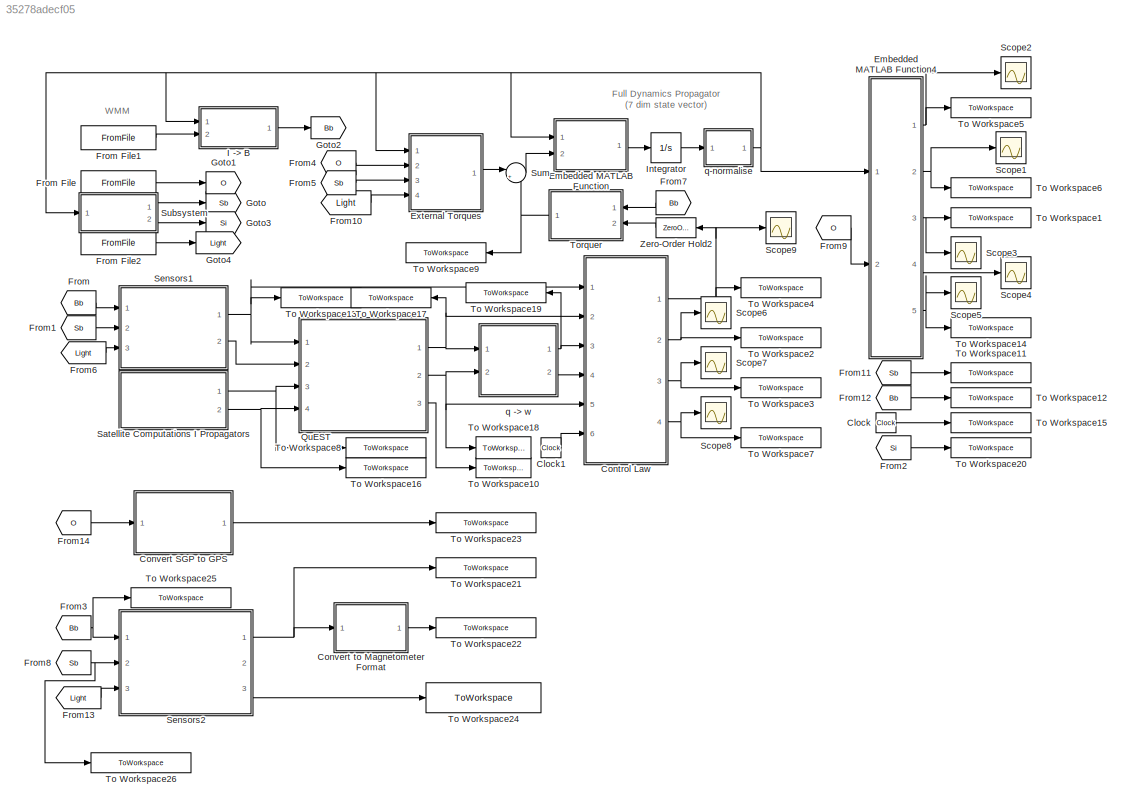
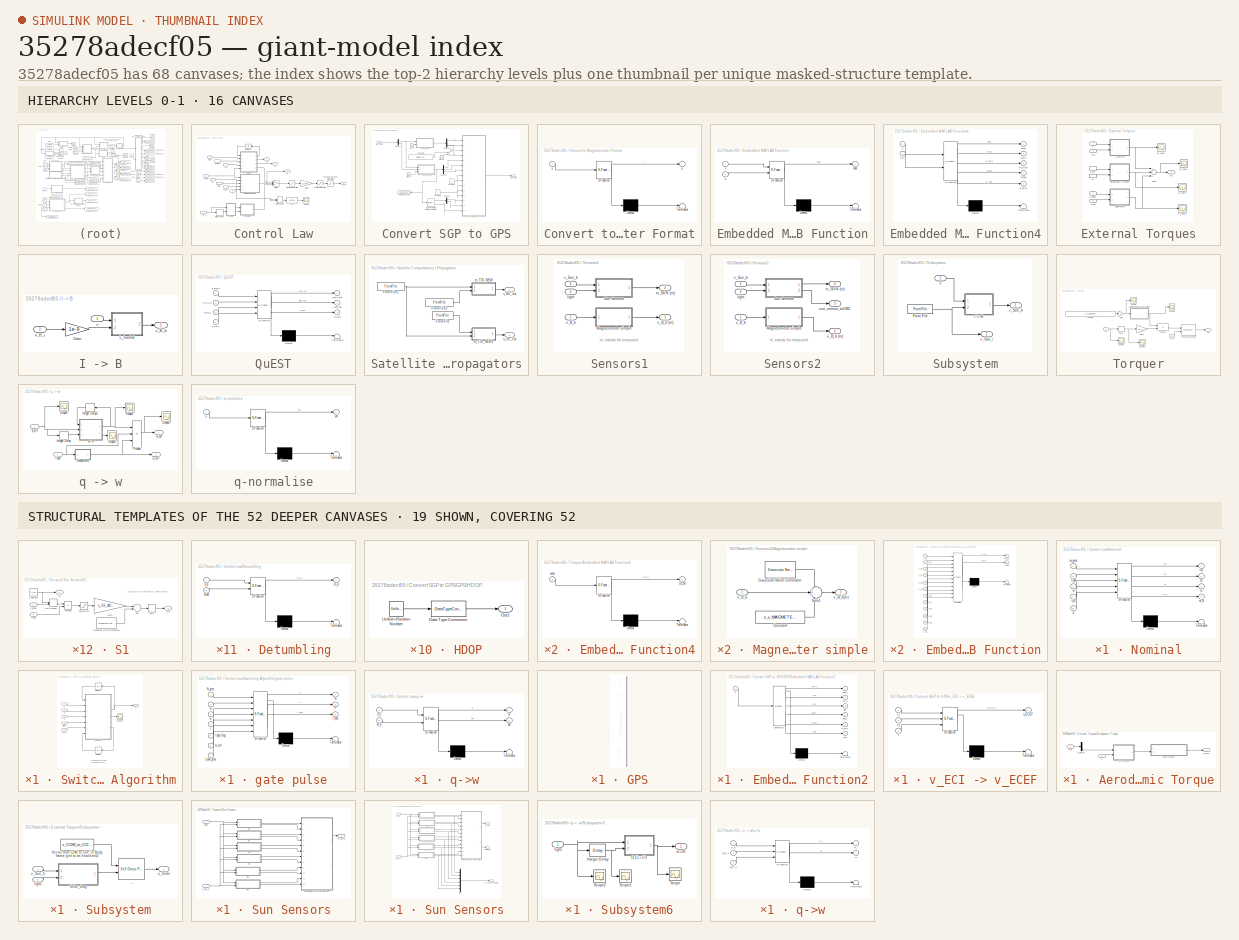
[diagram: thumbnail index - top-2 hierarchy levels (16 canvases) + 19 structural-template representatives of the remaining 52 canvases]
MODEL slx_35278adecf05
KIND model
CONFIG AbsTol = auto
CONFIG FixedStep = s_SIM_STEP_SIZE
CONFIG MaxStep = auto
CONFIG MinStep = auto
CONFIG RelTol = 1e-3
CONFIG SampleTimeConstraint = Unconstrained
CONFIG Solver = ode3
CONFIG SolverMode = Auto
CONFIG SolverName = ode3
CONFIG StartTime = 0.0
CONFIG StopTime = 60000
BLOCK [Clock] Clock
BLOCK [Clock] Clock1
BLOCK [SubSystem] Control Law
  Ports = [6, 4]
  RequestExecContextInheritance = off
  SystemSampleTime = s_FRAME_SIZE
  TreatAsAtomicUnit = on
  Variant = off
BLOCK [SubSystem] Control Law/Detumbling
  ErrorFcn = Stateflow.Translate.translate
  PermitHierarchicalResolution = ExplicitOnly
  Ports = [2, 1]
  RequestExecContextInheritance = off
  SFBlockType = MATLAB Function
  TreatAsAtomicUnit = on
  Variant = off
BLOCK [Demux] Control Law/Detumbling/ Demux 
  Outputs = 1
  Ports = [1, 1]
BLOCK [S-Function] Control Law/Detumbling/ SFunction 
  EnableBusSupport = on
  FunctionName = sf_sfun
  Parameters = Kdetumb,s_MAG_B
  PortCounts = [2 2]
  Ports = [2, 2]
  SFunctionDeploymentMode = off
  Tag = Stateflow S-Function adcs_v15_integral_29april17 23
BLOCK [Terminator] Control Law/Detumbling/ Terminator 
BLOCK [Inport] Control Law/Detumbling/Bdot
  IconDisplay = Port number
  Port = 2
BLOCK [Outport] Control Law/Detumbling/m_D
  IconDisplay = Port number
BLOCK [Inport] Control Law/Detumbling/v_B
  IconDisplay = Port number
BLOCK [DotProduct] Control Law/Dot Product
  OutDataTypeStr = Inherit: Inherit via internal rule
BLOCK [Fcn] Control Law/Fcn
  Expr = sqrt(u)
BLOCK [Gain] Control Law/Gain1
  Gain = 1/(N*A)
  OutDataTypeStr = Inherit: Inherit via internal rule
  ParamDataTypeStr = Inherit: Inherit via internal rule
  SaturateOnIntegerOverflow = off
BLOCK [Delay] Control Law/Integer Delay
  DelayLength = 1
  InputPortMap = u0
  InputProcessing = Inherited
  Ports = [1, 1]
BLOCK [Saturate] Control Law/Moment Saturation
  InputPortMap = u0
  LowerLimit = -s_m_MAX
  Ports = [1, 1]
  UpperLimit = s_m_MAX
BLOCK [Outport] Control Law/N
  IconDisplay = Port number
  Port = 2
BLOCK [SubSystem] Control Law/Nominal
  ErrorFcn = Stateflow.Translate.translate
  PermitHierarchicalResolution = ExplicitOnly
  Ports = [5, 4]
  RequestExecContextInheritance = off
  SFBlockType = MATLAB Function
  TreatAsAtomicUnit = on
  Variant = off
BLOCK [Demux] Control Law/Nominal/ Demux 
  Outputs = 1
  Ports = [1, 1]
BLOCK [S-Function] Control Law/Nominal/ SFunction 
  EnableBusSupport = on
  FunctionName = sf_sfun
  Parameters = Kd,Ki,Kp,s_FRAME_SIZE
  PortCounts = [5 5]
  Ports = [5, 5]
  SFunctionDeploymentMode = off
  Tag = Stateflow S-Function adcs_v15_integral_29april17 13
BLOCK [Terminator] Control Law/Nominal/ Terminator 
BLOCK [Outport] Control Law/Nominal/eu
  IconDisplay = Port number
  Port = 2
BLOCK [Outport] Control Law/Nominal/ieu
  IconDisplay = Port number
BLOCK [Inport] Control Law/Nominal/ieu_prev
  IconDisplay = Port number
BLOCK [Inport] Control Law/Nominal/light
  IconDisplay = Port number
  Port = 2
BLOCK [Outport] Control Law/Nominal/m
  IconDisplay = Port number
  Port = 3
BLOCK [Outport] Control Law/Nominal/m_N
  IconDisplay = Port number
  Port = 4
BLOCK [Inport] Control Law/Nominal/q
  IconDisplay = Port number
  Port = 5
BLOCK [Inport] Control Law/Nominal/v_B
  IconDisplay = Port number
  Port = 4
BLOCK [Inport] Control Law/Nominal/w
  IconDisplay = Port number
  Port = 3
BLOCK [Saturate] Control Law/Power Saturation
  InputPortMap = u0
  LowerLimit = -I_MAX
  Ports = [1, 1]
  UpperLimit = I_MAX
BLOCK [Scope] Control Law/Scope
  Ports = [1]
  ScopeSpecificationString = C++SS(StrPVP('Location','[11, 472, 632, 761]'),StrPVP('Open','off'),StrPVP('ZoomMode','xonly'),MxPVP('AxesTitles',24,'struct(''axes1'',''%<SignalLabel>'')'),StrPVP('ShowLegends','off'),StrPVP('YMin','0'),StrPVP('YMax','0.11'),StrPVP('SaveName','ScopeData4'),StrPVP('DataFormat','StructureWithTime'),StrPVP('LimitDataPoints','off'),StrPVP('BlockParamSampleTime','0'),StrPVP('Decimation','1'),StrPVP('B...<+29ch>
BLOCK [Switch] Control Law/Switch
  InputSameDT = off
  SaturateOnIntegerOverflow = off
  Threshold = 0.5
BLOCK [SubSystem] Control Law/Switching Algorithm
  Ports = [5, 1]
  RequestExecContextInheritance = off
  Variant = off
BLOCK [Outport] Control Law/Switching Algorithm/N
  IconDisplay = Port number
BLOCK [Scope] Control Law/Switching Algorithm/Scope1
  Ports = [1]
  ScopeSpecificationString = C++SS(StrPVP('Location','[14, 56, 630, 403]'),StrPVP('Open','off'),StrPVP('ZoomMode','xonly'),MxPVP('AxesTitles',24,'struct(''axes1'',''%<SignalLabel>'')'),StrPVP('ShowLegends','off'),StrPVP('TimeRange','140000'),StrPVP('YMin','0'),StrPVP('YMax','1.3'),StrPVP('SaveName','ScopeData5'),StrPVP('DataFormat','StructureWithTime'),StrPVP('LimitDataPoints','off'),StrPVP('BlockParamSampleTime','0'),StrPVP(...<+56ch>
BLOCK [UnitDelay] Control Law/Switching Algorithm/Unit Delay
  SampleTime = -1
BLOCK [UnitDelay] Control Law/Switching Algorithm/Unit Delay1
  SampleTime = -1
BLOCK [SubSystem] Control Law/Switching Algorithm/gate pulse
  ErrorFcn = Stateflow.Translate.translate
  PermitHierarchicalResolution = ExplicitOnly
  Ports = [7, 3]
  RequestExecContextInheritance = off
  SFBlockType = MATLAB Function
  TreatAsAtomicUnit = on
  Variant = off
BLOCK [Demux] Control Law/Switching Algorithm/gate pulse/ Demux 
  Outputs = 1
  Ports = [1, 1]
BLOCK [S-Function] Control Law/Switching Algorithm/gate pulse/ SFunction 
  EnableBusSupport = on
  FunctionName = sf_sfun
  Parameters = check_time,tol_q4,tol_w,tolw_n2d
  PortCounts = [7 4]
  Ports = [7, 4]
  SFunctionDeploymentMode = off
  Tag = Stateflow S-Function adcs_v15_integral_29april17 24
BLOCK [Terminator] Control Law/Switching Algorithm/gate pulse/ Terminator 
BLOCK [Outport] Control Law/Switching Algorithm/gate pulse/N
  IconDisplay = Port number
BLOCK [Inport] Control Law/Switching Algorithm/gate pulse/N_prev
  IconDisplay = Port number
BLOCK [Outport] Control Law/Switching Algorithm/gate pulse/P
  IconDisplay = Port number
  Port = 2
BLOCK [Inport] Control Law/Switching Algorithm/gate pulse/light_flag
  IconDisplay = Port number
  Port = 5
BLOCK [Inport] Control Law/Switching Algorithm/gate pulse/q
  IconDisplay = Port number
  Port = 3
BLOCK [Inport] Control Law/Switching Algorithm/gate pulse/t
  IconDisplay = Port number
  Port = 4
BLOCK [Outport] Control Law/Switching Algorithm/gate pulse/t_now
  IconDisplay = Port number
  Port = 3
BLOCK [Inport] Control Law/Switching Algorithm/gate pulse/t_now_prev
  IconDisplay = Port number
  Port = 7
BLOCK [Inport] Control Law/Switching Algorithm/gate pulse/w
  IconDisplay = Port number
  Port = 2
BLOCK [Inport] Control Law/Switching Algorithm/gate pulse/w_ctrl
  IconDisplay = Port number
  Port = 6
BLOCK [Inport] Control Law/Switching Algorithm/light
  IconDisplay = Port number
  Port = 3
BLOCK [Inport] Control Law/Switching Algorithm/q
  IconDisplay = Port number
BLOCK [Inport] Control Law/Switching Algorithm/t
  IconDisplay = Port number
  Port = 5
BLOCK [Inport] Control Law/Switching Algorithm/w
  IconDisplay = Port number
  Port = 2
BLOCK [Inport] Control Law/Switching Algorithm/w_ctrl
  IconDisplay = Port number
  Port = 4
BLOCK [Saturate] Control Law/Torquer Current Saturation
  InputPortMap = u0
  LowerLimit = -I_TORQUER
  Ports = [1, 1]
  UpperLimit = I_TORQUER
BLOCK [UnitDelay] Control Law/Unit Delay1
  InitialCondition = [0;0;0]
  SampleTime = -1
BLOCK [Outport] Control Law/eu
  IconDisplay = Port number
  Port = 3
BLOCK [Inport] Control Law/light
  IconDisplay = Port number
  Port = 5
BLOCK [InportShadow] Control Law/light1
  IconDisplay = Port number
  Port = 5
BLOCK [Outport] Control Law/m
  IconDisplay = Port number
  Port = 4
BLOCK [SubSystem] Control Law/q->w
  ErrorFcn = Stateflow.Translate.translate
  PermitHierarchicalResolution = ExplicitOnly
  Ports = [2, 2]
  RequestExecContextInheritance = off
  SFBlockType = MATLAB Function
  TreatAsAtomicUnit = on
  Variant = off
BLOCK [Demux] Control Law/q->w/ Demux 
  Outputs = 1
  Ports = [1, 1]
BLOCK [S-Function] Control Law/q->w/ SFunction 
  EnableBusSupport = on
  FunctionName = sf_sfun
  Parameters = s_FRAME_SIZE
  PortCounts = [2 3]
  Ports = [2, 3]
  SFunctionDeploymentMode = off
  Tag = Stateflow S-Function adcs_v15_integral_29april17 10
BLOCK [Terminator] Control Law/q->w/ Terminator 
BLOCK [Outport] Control Law/q->w/B
  IconDisplay = Port number
BLOCK [Inport] Control Law/q->w/B_k
  IconDisplay = Port number
  Port = 2
BLOCK [Inport] Control Law/q->w/B_l
  IconDisplay = Port number
BLOCK [Outport] Control Law/q->w/dB
  IconDisplay = Port number
  Port = 2
BLOCK [Inport] Control Law/q_BO
  IconDisplay = Port number
  Port = 2
BLOCK [Inport] Control Law/t
  IconDisplay = Port number
  Port = 6
BLOCK [Inport] Control Law/v_B
  IconDisplay = Port number
BLOCK [InportShadow] Control Law/v_B_1
  IconDisplay = Port number
BLOCK [Outport] Control Law/v_i
  IconDisplay = Port number
BLOCK [Inport] Control Law/w
  IconDisplay = Port number
  Port = 3
BLOCK [InportShadow] Control Law/w_BOB
  IconDisplay = Port number
  Port = 3
BLOCK [Inport] Control Law/w_ctrl
  IconDisplay = Port number
  Port = 4
BLOCK [SubSystem] Convert SGP to GPS
  Ports = [1, 1]
  RequestExecContextInheritance = off
  Variant = off
BLOCK [Sum] Convert SGP to GPS/Add1
  InputSameDT = off
  OutDataTypeStr = Inherit: Inherit via internal rule
  Ports = [2, 1]
  SaturateOnIntegerOverflow = off
BLOCK [Clock] Convert SGP to GPS/Clock2
BLOCK [Clock] Convert SGP to GPS/Clock3
BLOCK [Clock] Convert SGP to GPS/Clock4
BLOCK [Constant] Convert SGP to GPS/Constant
  OutDataTypeStr = uint8
  Value = 10
BLOCK [Constant] Convert SGP to GPS/Constant1
  Value = (today - TLE_epoch) * 86400
  VectorParams1D = off
BLOCK [Constant] Convert SGP to GPS/Constant2
  OutDataTypeStr = double
  Value = 10
BLOCK [Demux] Convert SGP to GPS/Demux1
  DisplayOption = bar
  Outputs = 2
  Ports = [1, 2]
BLOCK [Demux] Convert SGP to GPS/Demux2
  DisplayOption = bar
  Outputs = 3
  Ports = [1, 3]
BLOCK [Demux] Convert SGP to GPS/Demux3
  DisplayOption = bar
  Outputs = 3
  Ports = [1, 3]
BLOCK [Demux] Convert SGP to GPS/Demux5
  DisplayOption = bar
  Outputs = 2
  Ports = [1, 2]
BLOCK [Reference] Convert SGP to GPS/ECEF Position to Latitude Longitude  REF=aerolibtransform2/ECEF Position to LLA
  Ports = [1, 2]
  SourceBlock = aerolibtransform2/ECEF Position to LLA
  SourceType = ECEF to LLA
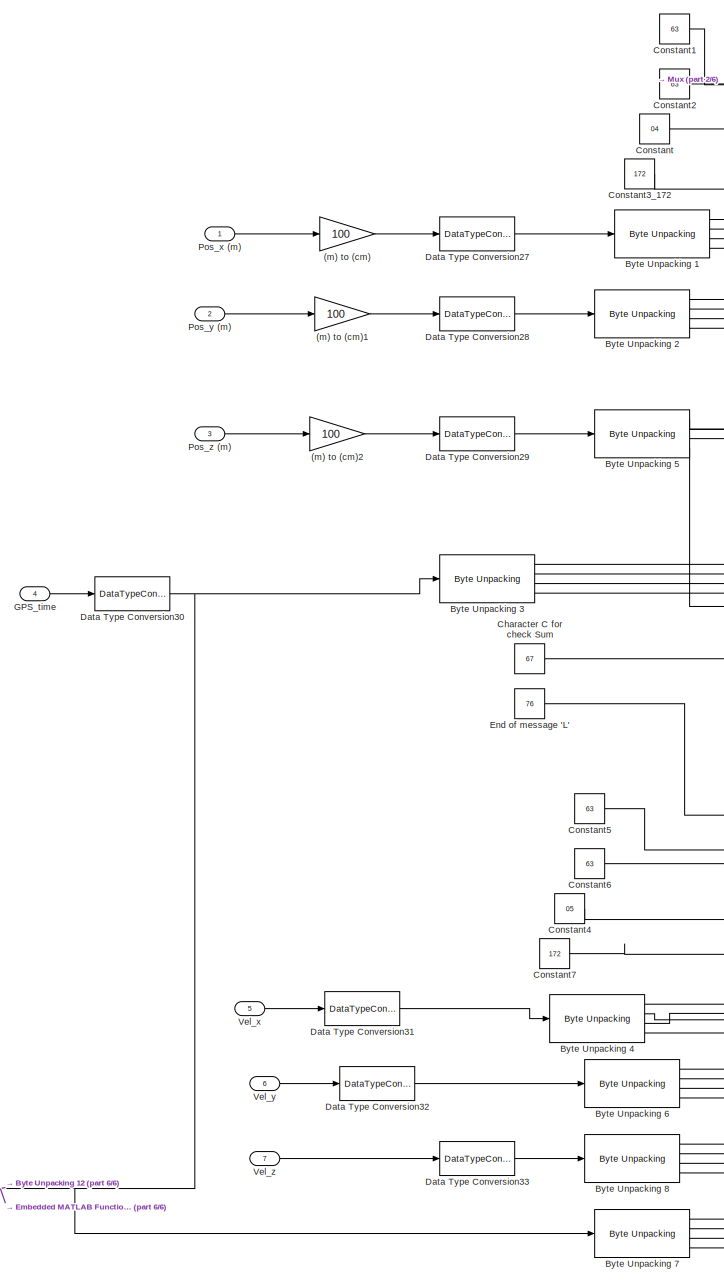
[diagram: Convert SGP to GPS/GPS - part 1/6, top center region]
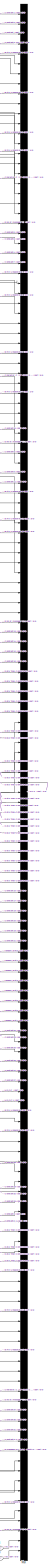
[diagram: Convert SGP to GPS/GPS - part 2/6, right side, full height]
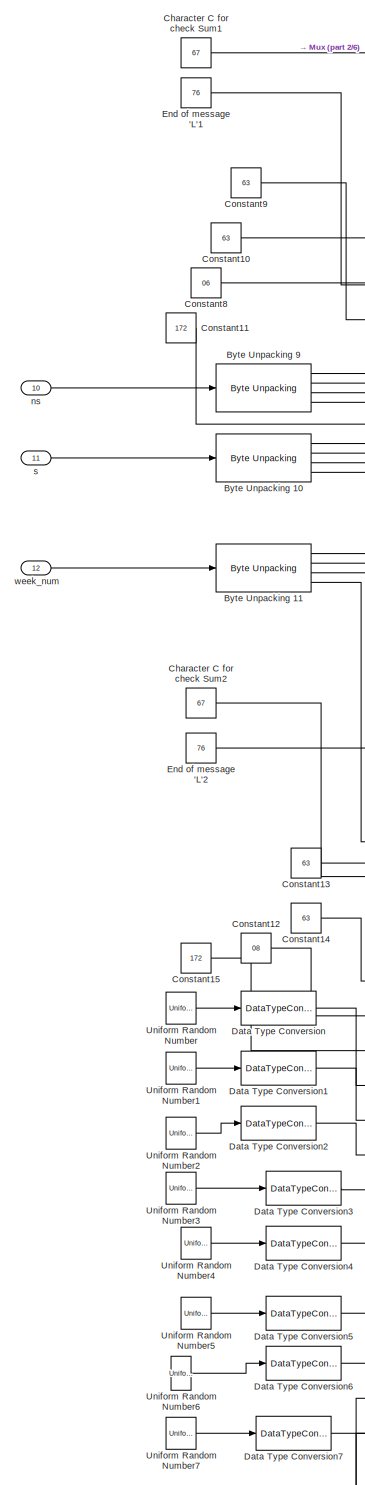
[diagram: Convert SGP to GPS/GPS - part 3/6, central region]
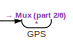
[diagram: Convert SGP to GPS/GPS - part 4/6, middle right region]
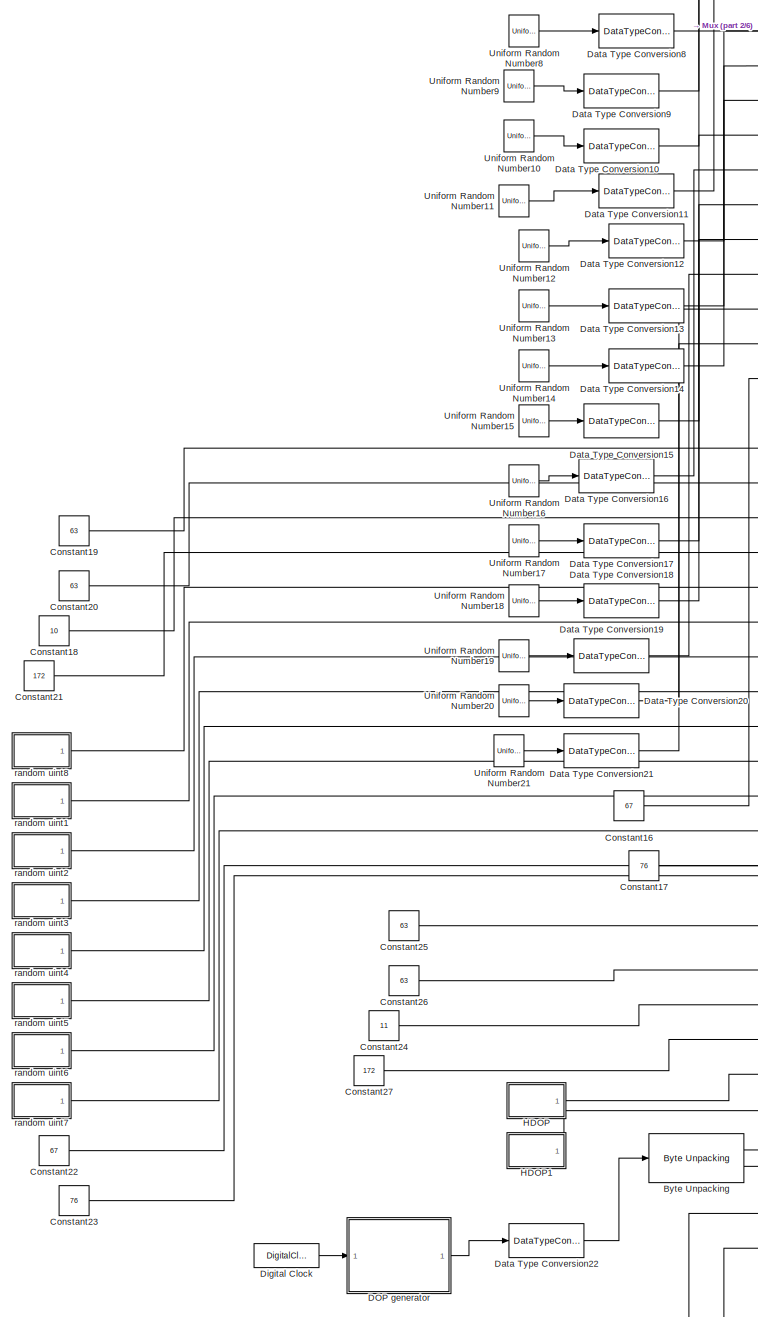
[diagram: Convert SGP to GPS/GPS - part 5/6, central region]
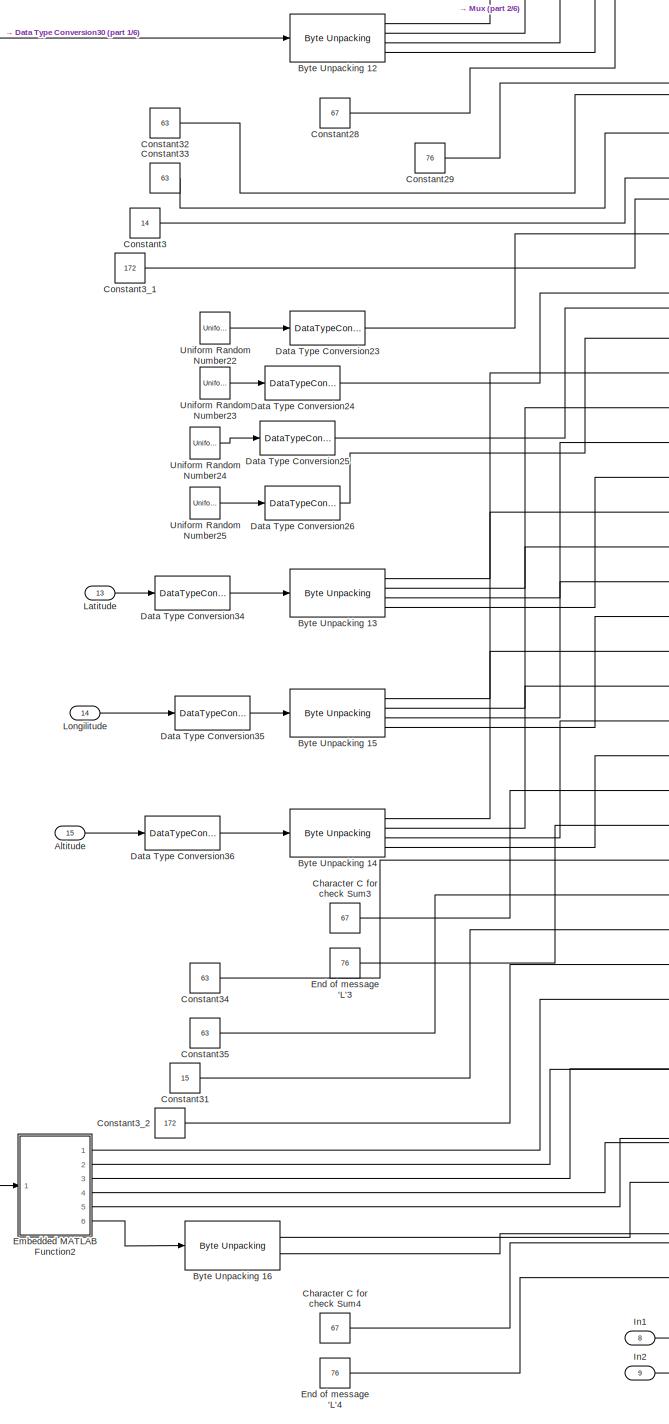
[diagram: Convert SGP to GPS/GPS - part 6/6, bottom center region]
BLOCK [SubSystem] Convert SGP to GPS/GPS
  Ports = [15, 1]
  RequestExecContextInheritance = off
  Variant = off
BLOCK [Gain] Convert SGP to GPS/GPS/(m) to (cm)
  Gain = 100
  OutDataTypeStr = double
  ParamDataTypeStr = Inherit: Inherit via internal rule
  SaturateOnIntegerOverflow = off
BLOCK [Gain] Convert SGP to GPS/GPS/(m) to (cm)1
  Gain = 100
  OutDataTypeStr = Inherit: Inherit via internal rule
  ParamDataTypeStr = Inherit: Inherit via internal rule
  SaturateOnIntegerOverflow = off
BLOCK [Gain] Convert SGP to GPS/GPS/(m) to (cm)2
  Gain = 100
  OutDataTypeStr = Inherit: Inherit via internal rule
  ParamDataTypeStr = Inherit: Inherit via internal rule
  SaturateOnIntegerOverflow = off
BLOCK [Inport] Convert SGP to GPS/GPS/Altitude
  IconDisplay = Port number
  Port = 15
BLOCK [Reference] Convert SGP to GPS/GPS/Byte Unpacking   REF=xpcutilitieslib/Byte Unpacking 
  Ports = [1, 2]
  SourceBlock = xpcutilitieslib/Byte Unpacking
  SourceType = xpcbytepacking
BLOCK [Reference] Convert SGP to GPS/GPS/Byte Unpacking 1  REF=xpcutilitieslib/Byte Unpacking 
  Ports = [1, 4]
  SourceBlock = xpcutilitieslib/Byte Unpacking
  SourceType = xpcbytepacking
BLOCK [Reference] Convert SGP to GPS/GPS/Byte Unpacking 10  REF=xpcutilitieslib/Byte Unpacking 
  Ports = [1, 4]
  SourceBlock = xpcutilitieslib/Byte Unpacking
  SourceType = xpcbytepacking
BLOCK [Reference] Convert SGP to GPS/GPS/Byte Unpacking 11  REF=xpcutilitieslib/Byte Unpacking 
  Ports = [1, 4]
  SourceBlock = xpcutilitieslib/Byte Unpacking
  SourceType = xpcbytepacking
BLOCK [Reference] Convert SGP to GPS/GPS/Byte Unpacking 12  REF=xpcutilitieslib/Byte Unpacking 
  Ports = [1, 4]
  SourceBlock = xpcutilitieslib/Byte Unpacking
  SourceType = xpcbytepacking
BLOCK [Reference] Convert SGP to GPS/GPS/Byte Unpacking 13  REF=xpcutilitieslib/Byte Unpacking 
  Ports = [1, 4]
  SourceBlock = xpcutilitieslib/Byte Unpacking
  SourceType = xpcbytepacking
BLOCK [Reference] Convert SGP to GPS/GPS/Byte Unpacking 14  REF=xpcutilitieslib/Byte Unpacking 
  Ports = [1, 4]
  SourceBlock = xpcutilitieslib/Byte Unpacking
  SourceType = xpcbytepacking
BLOCK [Reference] Convert SGP to GPS/GPS/Byte Unpacking 15  REF=xpcutilitieslib/Byte Unpacking 
  Ports = [1, 4]
  SourceBlock = xpcutilitieslib/Byte Unpacking
  SourceType = xpcbytepacking
BLOCK [Reference] Convert SGP to GPS/GPS/Byte Unpacking 16  REF=xpcutilitieslib/Byte Unpacking 
  Ports = [1, 2]
  SourceBlock = xpcutilitieslib/Byte Unpacking
  SourceType = xpcbytepacking
BLOCK [Reference] Convert SGP to GPS/GPS/Byte Unpacking 2  REF=xpcutilitieslib/Byte Unpacking 
  Ports = [1, 4]
  SourceBlock = xpcutilitieslib/Byte Unpacking
  SourceType = xpcbytepacking
BLOCK [Reference] Convert SGP to GPS/GPS/Byte Unpacking 3  REF=xpcutilitieslib/Byte Unpacking 
  Ports = [1, 4]
  SourceBlock = xpcutilitieslib/Byte Unpacking
  SourceType = xpcbytepacking
BLOCK [Reference] Convert SGP to GPS/GPS/Byte Unpacking 4  REF=xpcutilitieslib/Byte Unpacking 
  Ports = [1, 4]
  SourceBlock = xpcutilitieslib/Byte Unpacking
  SourceType = xpcbytepacking
BLOCK [Reference] Convert SGP to GPS/GPS/Byte Unpacking 5  REF=xpcutilitieslib/Byte Unpacking 
  Ports = [1, 4]
  SourceBlock = xpcutilitieslib/Byte Unpacking
  SourceType = xpcbytepacking
BLOCK [Reference] Convert SGP to GPS/GPS/Byte Unpacking 6  REF=xpcutilitieslib/Byte Unpacking 
  Ports = [1, 4]
  SourceBlock = xpcutilitieslib/Byte Unpacking
  SourceType = xpcbytepacking
BLOCK [Reference] Convert SGP to GPS/GPS/Byte Unpacking 7  REF=xpcutilitieslib/Byte Unpacking 
  Ports = [1, 4]
  SourceBlock = xpcutilitieslib/Byte Unpacking
  SourceType = xpcbytepacking
BLOCK [Reference] Convert SGP to GPS/GPS/Byte Unpacking 8  REF=xpcutilitieslib/Byte Unpacking 
  Ports = [1, 4]
  SourceBlock = xpcutilitieslib/Byte Unpacking
  SourceType = xpcbytepacking
BLOCK [Reference] Convert SGP to GPS/GPS/Byte Unpacking 9  REF=xpcutilitieslib/Byte Unpacking 
  Ports = [1, 4]
  SourceBlock = xpcutilitieslib/Byte Unpacking
  SourceType = xpcbytepacking
BLOCK [Constant] Convert SGP to GPS/GPS/Character C for check Sum
  OutDataTypeStr = uint8
  Value = 67
BLOCK [Constant] Convert SGP to GPS/GPS/Character C for check Sum1
  OutDataTypeStr = uint8
  Value = 67
BLOCK [Constant] Convert SGP to GPS/GPS/Character C for check Sum2
  OutDataTypeStr = uint8
  Value = 67
BLOCK [Constant] Convert SGP to GPS/GPS/Character C for check Sum3
  OutDataTypeStr = uint8
  Value = 67
BLOCK [Constant] Convert SGP to GPS/GPS/Character C for check Sum4
  OutDataTypeStr = uint8
  Value = 67
BLOCK [Constant] Convert SGP to GPS/GPS/Constant
  OutDataTypeStr = uint8
  Value = 04
BLOCK [Constant] Convert SGP to GPS/GPS/Constant1
  OutDataTypeStr = uint8
  Value = 63
BLOCK [Constant] Convert SGP to GPS/GPS/Constant10
  OutDataTypeStr = uint8
  Value = 63
BLOCK [Constant] Convert SGP to GPS/GPS/Constant11
  OutDataTypeStr = uint8
  Value = 172
BLOCK [Constant] Convert SGP to GPS/GPS/Constant12
  OutDataTypeStr = uint8
  Value = 08
BLOCK [Constant] Convert SGP to GPS/GPS/Constant13
  OutDataTypeStr = uint8
  Value = 63
BLOCK [Constant] Convert SGP to GPS/GPS/Constant14
  OutDataTypeStr = uint8
  Value = 63
BLOCK [Constant] Convert SGP to GPS/GPS/Constant15
  OutDataTypeStr = uint8
  Value = 172
BLOCK [Constant] Convert SGP to GPS/GPS/Constant16
  OutDataTypeStr = uint8
  Value = 67
BLOCK [Constant] Convert SGP to GPS/GPS/Constant17
  OutDataTypeStr = uint8
  Value = 76
BLOCK [Constant] Convert SGP to GPS/GPS/Constant18
  OutDataTypeStr = uint8
  Value = 10
BLOCK [Constant] Convert SGP to GPS/GPS/Constant19
  OutDataTypeStr = uint8
  Value = 63
BLOCK [Constant] Convert SGP to GPS/GPS/Constant2
  OutDataTypeStr = uint8
  Value = 63
BLOCK [Constant] Convert SGP to GPS/GPS/Constant20
  OutDataTypeStr = uint8
  Value = 63
BLOCK [Constant] Convert SGP to GPS/GPS/Constant21
  OutDataTypeStr = uint8
  Value = 172
BLOCK [Constant] Convert SGP to GPS/GPS/Constant22
  OutDataTypeStr = uint8
  Value = 67
BLOCK [Constant] Convert SGP to GPS/GPS/Constant23
  OutDataTypeStr = uint8
  Value = 76
BLOCK [Constant] Convert SGP to GPS/GPS/Constant24
  OutDataTypeStr = uint8
  Value = 11
BLOCK [Constant] Convert SGP to GPS/GPS/Constant25
  OutDataTypeStr = uint8
  Value = 63
BLOCK [Constant] Convert SGP to GPS/GPS/Constant26
  OutDataTypeStr = uint8
  Value = 63
BLOCK [Constant] Convert SGP to GPS/GPS/Constant27
  OutDataTypeStr = uint8
  Value = 172
BLOCK [Constant] Convert SGP to GPS/GPS/Constant28
  OutDataTypeStr = uint8
  Value = 67
BLOCK [Constant] Convert SGP to GPS/GPS/Constant29
  OutDataTypeStr = uint8
  Value = 76
BLOCK [Constant] Convert SGP to GPS/GPS/Constant3
  OutDataTypeStr = uint8
  Value = 14
BLOCK [Constant] Convert SGP to GPS/GPS/Constant31
  OutDataTypeStr = uint8
  Value = 15
BLOCK [Constant] Convert SGP to GPS/GPS/Constant32
  OutDataTypeStr = uint8
  Value = 63
BLOCK [Constant] Convert SGP to GPS/GPS/Constant33
  OutDataTypeStr = uint8
  Value = 63
BLOCK [Constant] Convert SGP to GPS/GPS/Constant34
  OutDataTypeStr = uint8
  Value = 63
BLOCK [Constant] Convert SGP to GPS/GPS/Constant35
  OutDataTypeStr = uint8
  Value = 63
BLOCK [Constant] Convert SGP to GPS/GPS/Constant3_1
  OutDataTypeStr = uint8
  Value = 172
BLOCK [Constant] Convert SGP to GPS/GPS/Constant3_172
  OutDataTypeStr = uint8
  Value = 172
BLOCK [Constant] Convert SGP to GPS/GPS/Constant3_2
  OutDataTypeStr = uint8
  Value = 172
BLOCK [Constant] Convert SGP to GPS/GPS/Constant4
  OutDataTypeStr = uint8
  Value = 05
BLOCK [Constant] Convert SGP to GPS/GPS/Constant5
  OutDataTypeStr = uint8
  Value = 63
BLOCK [Constant] Convert SGP to GPS/GPS/Constant6
  OutDataTypeStr = uint8
  Value = 63
BLOCK [Constant] Convert SGP to GPS/GPS/Constant7
  OutDataTypeStr = uint8
  Value = 172
BLOCK [Constant] Convert SGP to GPS/GPS/Constant8
  OutDataTypeStr = uint8
  Value = 06
BLOCK [Constant] Convert SGP to GPS/GPS/Constant9
  OutDataTypeStr = uint8
  Value = 63
BLOCK [SubSystem] Convert SGP to GPS/GPS/DOP generator
  ErrorFcn = Stateflow.Translate.translate
  PermitHierarchicalResolution = ExplicitOnly
  Ports = [1, 1]
  RequestExecContextInheritance = off
  SFBlockType = MATLAB Function
  TreatAsAtomicUnit = on
  Variant = off
BLOCK [Demux] Convert SGP to GPS/GPS/DOP generator/ Demux 
  Outputs = 1
  Ports = [1, 1]
BLOCK [S-Function] Convert SGP to GPS/GPS/DOP generator/ SFunction 
  EnableBusSupport = on
  FunctionName = sf_sfun
  PortCounts = [1 2]
  Ports = [1, 2]
  SFunctionDeploymentMode = off
  Tag = Stateflow S-Function adcs_v15_integral_29april17 17
BLOCK [Terminator] Convert SGP to GPS/GPS/DOP generator/ Terminator 
BLOCK [Outport] Convert SGP to GPS/GPS/DOP generator/PDOP
  IconDisplay = Port number
BLOCK [Inport] Convert SGP to GPS/GPS/DOP generator/t
  IconDisplay = Port number
BLOCK [DataTypeConversion] Convert SGP to GPS/GPS/Data Type Conversion
  OutDataTypeStr = uint8
  RndMeth = Floor
  SaturateOnIntegerOverflow = off
BLOCK [DataTypeConversion] Convert SGP to GPS/GPS/Data Type Conversion1
  OutDataTypeStr = uint8
  RndMeth = Floor
  SaturateOnIntegerOverflow = off
BLOCK [DataTypeConversion] Convert SGP to GPS/GPS/Data Type Conversion10
  OutDataTypeStr = uint8
  RndMeth = Floor
  SaturateOnIntegerOverflow = off
BLOCK [DataTypeConversion] Convert SGP to GPS/GPS/Data Type Conversion11
  OutDataTypeStr = uint8
  RndMeth = Floor
  SaturateOnIntegerOverflow = off
BLOCK [DataTypeConversion] Convert SGP to GPS/GPS/Data Type Conversion12
  OutDataTypeStr = uint8
  RndMeth = Floor
  SaturateOnIntegerOverflow = off
BLOCK [DataTypeConversion] Convert SGP to GPS/GPS/Data Type Conversion13
  OutDataTypeStr = uint8
  RndMeth = Floor
  SaturateOnIntegerOverflow = off
BLOCK [DataTypeConversion] Convert SGP to GPS/GPS/Data Type Conversion14
  OutDataTypeStr = uint8
  RndMeth = Floor
  SaturateOnIntegerOverflow = off
BLOCK [DataTypeConversion] Convert SGP to GPS/GPS/Data Type Conversion15
  OutDataTypeStr = uint8
  RndMeth = Floor
  SaturateOnIntegerOverflow = off
BLOCK [DataTypeConversion] Convert SGP to GPS/GPS/Data Type Conversion16
  OutDataTypeStr = uint8
  RndMeth = Floor
  SaturateOnIntegerOverflow = off
BLOCK [DataTypeConversion] Convert SGP to GPS/GPS/Data Type Conversion17
  OutDataTypeStr = uint8
  RndMeth = Floor
  SaturateOnIntegerOverflow = off
BLOCK [DataTypeConversion] Convert SGP to GPS/GPS/Data Type Conversion18
  OutDataTypeStr = uint8
  RndMeth = Floor
  SaturateOnIntegerOverflow = off
BLOCK [DataTypeConversion] Convert SGP to GPS/GPS/Data Type Conversion19
  OutDataTypeStr = uint8
  RndMeth = Floor
  SaturateOnIntegerOverflow = off
BLOCK [DataTypeConversion] Convert SGP to GPS/GPS/Data Type Conversion2
  OutDataTypeStr = uint8
  RndMeth = Floor
  SaturateOnIntegerOverflow = off
BLOCK [DataTypeConversion] Convert SGP to GPS/GPS/Data Type Conversion20
  OutDataTypeStr = uint8
  RndMeth = Floor
  SaturateOnIntegerOverflow = off
BLOCK [DataTypeConversion] Convert SGP to GPS/GPS/Data Type Conversion21
  OutDataTypeStr = uint8
  RndMeth = Floor
  SaturateOnIntegerOverflow = off
BLOCK [DataTypeConversion] Convert SGP to GPS/GPS/Data Type Conversion22
  OutDataTypeStr = uint32
  RndMeth = Floor
  SaturateOnIntegerOverflow = off
BLOCK [DataTypeConversion] Convert SGP to GPS/GPS/Data Type Conversion23
  OutDataTypeStr = uint8
  RndMeth = Floor
  SaturateOnIntegerOverflow = off
BLOCK [DataTypeConversion] Convert SGP to GPS/GPS/Data Type Conversion24
  OutDataTypeStr = uint8
  RndMeth = Floor
  SaturateOnIntegerOverflow = off
BLOCK [DataTypeConversion] Convert SGP to GPS/GPS/Data Type Conversion25
  OutDataTypeStr = uint8
  RndMeth = Floor
  SaturateOnIntegerOverflow = off
BLOCK [DataTypeConversion] Convert SGP to GPS/GPS/Data Type Conversion26
  OutDataTypeStr = uint8
  RndMeth = Floor
  SaturateOnIntegerOverflow = off
BLOCK [DataTypeConversion] Convert SGP to GPS/GPS/Data Type Conversion27
  OutDataTypeStr = uint32
  RndMeth = Floor
  SaturateOnIntegerOverflow = off
BLOCK [DataTypeConversion] Convert SGP to GPS/GPS/Data Type Conversion28
  OutDataTypeStr = uint32
  RndMeth = Floor
  SaturateOnIntegerOverflow = off
BLOCK [DataTypeConversion] Convert SGP to GPS/GPS/Data Type Conversion29
  OutDataTypeStr = uint32
  RndMeth = Floor
  SaturateOnIntegerOverflow = off
BLOCK [DataTypeConversion] Convert SGP to GPS/GPS/Data Type Conversion3
  OutDataTypeStr = uint8
  RndMeth = Floor
  SaturateOnIntegerOverflow = off
BLOCK [DataTypeConversion] Convert SGP to GPS/GPS/Data Type Conversion30
  OutDataTypeStr = uint32
  RndMeth = Floor
  SaturateOnIntegerOverflow = off
BLOCK [DataTypeConversion] Convert SGP to GPS/GPS/Data Type Conversion31
  OutDataTypeStr = uint32
  RndMeth = Floor
  SaturateOnIntegerOverflow = off
BLOCK [DataTypeConversion] Convert SGP to GPS/GPS/Data Type Conversion32
  OutDataTypeStr = uint32
  RndMeth = Floor
  SaturateOnIntegerOverflow = off
BLOCK [DataTypeConversion] Convert SGP to GPS/GPS/Data Type Conversion33
  OutDataTypeStr = uint32
  RndMeth = Floor
  SaturateOnIntegerOverflow = off
BLOCK [DataTypeConversion] Convert SGP to GPS/GPS/Data Type Conversion34
  OutDataTypeStr = uint32
  RndMeth = Floor
  SaturateOnIntegerOverflow = off
BLOCK [DataTypeConversion] Convert SGP to GPS/GPS/Data Type Conversion35
  OutDataTypeStr = uint32
  RndMeth = Floor
  SaturateOnIntegerOverflow = off
BLOCK [DataTypeConversion] Convert SGP to GPS/GPS/Data Type Conversion36
  OutDataTypeStr = uint32
  RndMeth = Floor
  SaturateOnIntegerOverflow = off
BLOCK [DataTypeConversion] Convert SGP to GPS/GPS/Data Type Conversion4
  OutDataTypeStr = uint8
  RndMeth = Floor
  SaturateOnIntegerOverflow = off
BLOCK [DataTypeConversion] Convert SGP to GPS/GPS/Data Type Conversion5
  OutDataTypeStr = uint8
  RndMeth = Floor
  SaturateOnIntegerOverflow = off
BLOCK [DataTypeConversion] Convert SGP to GPS/GPS/Data Type Conversion6
  OutDataTypeStr = uint8
  RndMeth = Floor
  SaturateOnIntegerOverflow = off
BLOCK [DataTypeConversion] Convert SGP to GPS/GPS/Data Type Conversion7
  OutDataTypeStr = uint8
  RndMeth = Floor
  SaturateOnIntegerOverflow = off
BLOCK [DataTypeConversion] Convert SGP to GPS/GPS/Data Type Conversion8
  OutDataTypeStr = uint8
  RndMeth = Floor
  SaturateOnIntegerOverflow = off
BLOCK [DataTypeConversion] Convert SGP to GPS/GPS/Data Type Conversion9
  OutDataTypeStr = uint8
  RndMeth = Floor
  SaturateOnIntegerOverflow = off
BLOCK [DigitalClock] Convert SGP to GPS/GPS/Digital Clock
  SampleTime = 0.1
BLOCK [SubSystem] Convert SGP to GPS/GPS/Embedded MATLAB Function2
  ErrorFcn = Stateflow.Translate.translate
  PermitHierarchicalResolution = ExplicitOnly
  Ports = [1, 6]
  RequestExecContextInheritance = off
  SFBlockType = MATLAB Function
  TreatAsAtomicUnit = on
  Variant = off
BLOCK [Demux] Convert SGP to GPS/GPS/Embedded MATLAB Function2/ Demux 
  Outputs = 1
  Ports = [1, 1]
BLOCK [S-Function] Convert SGP to GPS/GPS/Embedded MATLAB Function2/ SFunction 
  EnableBusSupport = on
  FunctionName = sf_sfun
  PortCounts = [1 7]
  Ports = [1, 7]
  SFunctionDeploymentMode = off
  Tag = Stateflow S-Function adcs_v15_integral_29april17 21
BLOCK [Terminator] Convert SGP to GPS/GPS/Embedded MATLAB Function2/ Terminator 
BLOCK [Outport] Convert SGP to GPS/GPS/Embedded MATLAB Function2/date
  IconDisplay = Port number
  Port = 4
BLOCK [Outport] Convert SGP to GPS/GPS/Embedded MATLAB Function2/hours
  IconDisplay = Port number
BLOCK [Outport] Convert SGP to GPS/GPS/Embedded MATLAB Function2/min
  IconDisplay = Port number
  Port = 2
BLOCK [Outport] Convert SGP to GPS/GPS/Embedded MATLAB Function2/month
  IconDisplay = Port number
  Port = 5
BLOCK [Inport] Convert SGP to GPS/GPS/Embedded MATLAB Function2/s
  IconDisplay = Port number
BLOCK [Outport] Convert SGP to GPS/GPS/Embedded MATLAB Function2/sec
  IconDisplay = Port number
  Port = 3
BLOCK [Outport] Convert SGP to GPS/GPS/Embedded MATLAB Function2/year
  IconDisplay = Port number
  Port = 6
BLOCK [Constant] Convert SGP to GPS/GPS/End of message 'L'
  OutDataTypeStr = uint8
  Value = 76
BLOCK [Constant] Convert SGP to GPS/GPS/End of message 'L'1
  OutDataTypeStr = uint8
  Value = 76
BLOCK [Constant] Convert SGP to GPS/GPS/End of message 'L'2
  OutDataTypeStr = uint8
  Value = 76
BLOCK [Constant] Convert SGP to GPS/GPS/End of message 'L'3
  OutDataTypeStr = uint8
  Value = 76
BLOCK [Constant] Convert SGP to GPS/GPS/End of message 'L'4
  OutDataTypeStr = uint8
  Value = 76
BLOCK [Outport] Convert SGP to GPS/GPS/GPS
  IconDisplay = Port number
BLOCK [Inport] Convert SGP to GPS/GPS/GPS_time
  IconDisplay = Port number
  Port = 4
BLOCK [SubSystem] Convert SGP to GPS/GPS/HDOP
  Ports = [0, 1]
  RequestExecContextInheritance = off
  Variant = off
BLOCK [DataTypeConversion] Convert SGP to GPS/GPS/HDOP/Data Type Conversion
  OutDataTypeStr = uint8
  RndMeth = Floor
  SaturateOnIntegerOverflow = off
BLOCK [Outport] Convert SGP to GPS/GPS/HDOP/Out1
  IconDisplay = Port number
BLOCK [UniformRandomNumber] Convert SGP to GPS/GPS/HDOP/Uniform Random Number
  Maximum = 256
  Minimum = 0
  SampleTime = 0.1
BLOCK [SubSystem] Convert SGP to GPS/GPS/HDOP1
  Ports = [0, 1]
  RequestExecContextInheritance = off
  Variant = off
BLOCK [DataTypeConversion] Convert SGP to GPS/GPS/HDOP1/Data Type Conversion
  OutDataTypeStr = uint8
  RndMeth = Floor
  SaturateOnIntegerOverflow = off
BLOCK [Outport] Convert SGP to GPS/GPS/HDOP1/Out1
  IconDisplay = Port number
BLOCK [UniformRandomNumber] Convert SGP to GPS/GPS/HDOP1/Uniform Random Number
  Maximum = 256
  Minimum = 0
  SampleTime = 0.1
BLOCK [Inport] Convert SGP to GPS/GPS/In1
  IconDisplay = Port number
  OutDataTypeStr = uint8
  Port = 8
BLOCK [Inport] Convert SGP to GPS/GPS/In2
  IconDisplay = Port number
  OutDataTypeStr = uint8
  Port = 9
BLOCK [Inport] Convert SGP to GPS/GPS/Latitude
  IconDisplay = Port number
  Port = 13
BLOCK [Inport] Convert SGP to GPS/GPS/Longilitude 
  IconDisplay = Port number
  Port = 14
BLOCK [Mux] Convert SGP to GPS/GPS/Mux
  DisplayOption = bar
  Inputs = 155
  Ports = [155, 1]
BLOCK [Inport] Convert SGP to GPS/GPS/Pos_x (m)
  IconDisplay = Port number
BLOCK [Inport] Convert SGP to GPS/GPS/Pos_y (m)
  IconDisplay = Port number
  Port = 2
BLOCK [Inport] Convert SGP to GPS/GPS/Pos_z (m)
  IconDisplay = Port number
  Port = 3
BLOCK [UniformRandomNumber] Convert SGP to GPS/GPS/Uniform Random Number
  Maximum = 256
  Minimum = 0
  SampleTime = 0.1
  Seed = 1
BLOCK [UniformRandomNumber] Convert SGP to GPS/GPS/Uniform Random Number1
  Maximum = 256
  Minimum = 0
  SampleTime = 0.1
  Seed = 1
BLOCK [UniformRandomNumber] Convert SGP to GPS/GPS/Uniform Random Number10
  Maximum = 256
  Minimum = 0
  SampleTime = 0.1
  Seed = 1
BLOCK [UniformRandomNumber] Convert SGP to GPS/GPS/Uniform Random Number11
  Maximum = 256
  Minimum = 0
  SampleTime = 0.1
  Seed = 1
BLOCK [UniformRandomNumber] Convert SGP to GPS/GPS/Uniform Random Number12
  Maximum = 256
  Minimum = 0
  SampleTime = 0.1
  Seed = 1
BLOCK [UniformRandomNumber] Convert SGP to GPS/GPS/Uniform Random Number13
  Maximum = 256
  Minimum = 0
  SampleTime = 0.1
  Seed = 1
BLOCK [UniformRandomNumber] Convert SGP to GPS/GPS/Uniform Random Number14
  Maximum = 256
  Minimum = 0
  SampleTime = 0.1
  Seed = 1
BLOCK [UniformRandomNumber] Convert SGP to GPS/GPS/Uniform Random Number15
  Maximum = 256
  Minimum = 0
  SampleTime = 0.1
  Seed = 1
BLOCK [UniformRandomNumber] Convert SGP to GPS/GPS/Uniform Random Number16
  Maximum = 256
  Minimum = 0
  SampleTime = 0.1
  Seed = 1
BLOCK [UniformRandomNumber] Convert SGP to GPS/GPS/Uniform Random Number17
  Maximum = 256
  Minimum = 0
  SampleTime = 0.1
  Seed = 1
BLOCK [UniformRandomNumber] Convert SGP to GPS/GPS/Uniform Random Number18
  Maximum = 256
  Minimum = 0
  SampleTime = 0.1
  Seed = 1
BLOCK [UniformRandomNumber] Convert SGP to GPS/GPS/Uniform Random Number19
  Maximum = 256
  Minimum = 0
  SampleTime = 0.1
  Seed = 1
BLOCK [UniformRandomNumber] Convert SGP to GPS/GPS/Uniform Random Number2
  Maximum = 256
  Minimum = 0
  SampleTime = 0.1
  Seed = 1
BLOCK [UniformRandomNumber] Convert SGP to GPS/GPS/Uniform Random Number20
  Maximum = 256
  Minimum = 0
  SampleTime = 0.1
  Seed = 1
BLOCK [UniformRandomNumber] Convert SGP to GPS/GPS/Uniform Random Number21
  Maximum = 256
  Minimum = 0
  SampleTime = 0.1
  Seed = 1
BLOCK [UniformRandomNumber] Convert SGP to GPS/GPS/Uniform Random Number22
  Maximum = 256
  Minimum = 0
  SampleTime = 0.1
  Seed = 1
BLOCK [UniformRandomNumber] Convert SGP to GPS/GPS/Uniform Random Number23
  Maximum = 256
  Minimum = 0
  SampleTime = 0.1
  Seed = 1
BLOCK [UniformRandomNumber] Convert SGP to GPS/GPS/Uniform Random Number24
  Maximum = 256
  Minimum = 0
  SampleTime = 0.1
  Seed = 1
BLOCK [UniformRandomNumber] Convert SGP to GPS/GPS/Uniform Random Number25
  Maximum = 256
  Minimum = 0
  SampleTime = 0.1
  Seed = 1
BLOCK [UniformRandomNumber] Convert SGP to GPS/GPS/Uniform Random Number3
  Maximum = 256
  Minimum = 0
  SampleTime = 0.1
  Seed = 1
BLOCK [UniformRandomNumber] Convert SGP to GPS/GPS/Uniform Random Number4
  Maximum = 256
  Minimum = 0
  SampleTime = 0.1
  Seed = 1
BLOCK [UniformRandomNumber] Convert SGP to GPS/GPS/Uniform Random Number5
  Maximum = 256
  Minimum = 0
  SampleTime = 0.1
  Seed = 1
BLOCK [UniformRandomNumber] Convert SGP to GPS/GPS/Uniform Random Number6
  Maximum = 256
  Minimum = 0
  SampleTime = 0.1
  Seed = 1
BLOCK [UniformRandomNumber] Convert SGP to GPS/GPS/Uniform Random Number7
  Maximum = 256
  Minimum = 0
  SampleTime = 0.1
  Seed = 1
BLOCK [UniformRandomNumber] Convert SGP to GPS/GPS/Uniform Random Number8
  Maximum = 256
  Minimum = 0
  SampleTime = 0.1
  Seed = 1
BLOCK [UniformRandomNumber] Convert SGP to GPS/GPS/Uniform Random Number9
  Maximum = 256
  Minimum = 0
  SampleTime = 0.1
  Seed = 1
BLOCK [Inport] Convert SGP to GPS/GPS/Vel_x
  IconDisplay = Port number
  Port = 5
BLOCK [Inport] Convert SGP to GPS/GPS/Vel_y
  IconDisplay = Port number
  Port = 6
BLOCK [Inport] Convert SGP to GPS/GPS/Vel_z
  IconDisplay = Port number
  Port = 7
BLOCK [Inport] Convert SGP to GPS/GPS/ns
  IconDisplay = Port number
  Port = 10
BLOCK [SubSystem] Convert SGP to GPS/GPS/random uint1
  Ports = [0, 1]
  RequestExecContextInheritance = off
  Variant = off
BLOCK [DataTypeConversion] Convert SGP to GPS/GPS/random uint1/Data Type Conversion
  OutDataTypeStr = uint8
  RndMeth = Floor
  SaturateOnIntegerOverflow = off
BLOCK [Outport] Convert SGP to GPS/GPS/random uint1/Out1
  IconDisplay = Port number
BLOCK [UniformRandomNumber] Convert SGP to GPS/GPS/random uint1/Uniform Random Number
  Maximum = 256
  Minimum = 0
  SampleTime = 0.1
BLOCK [SubSystem] Convert SGP to GPS/GPS/random uint2
  Ports = [0, 1]
  RequestExecContextInheritance = off
  Variant = off
BLOCK [DataTypeConversion] Convert SGP to GPS/GPS/random uint2/Data Type Conversion
  OutDataTypeStr = uint8
  RndMeth = Floor
  SaturateOnIntegerOverflow = off
BLOCK [Outport] Convert SGP to GPS/GPS/random uint2/Out1
  IconDisplay = Port number
BLOCK [UniformRandomNumber] Convert SGP to GPS/GPS/random uint2/Uniform Random Number
  Maximum = 256
  Minimum = 0
  SampleTime = 0.1
BLOCK [SubSystem] Convert SGP to GPS/GPS/random uint3
  Ports = [0, 1]
  RequestExecContextInheritance = off
  Variant = off
BLOCK [DataTypeConversion] Convert SGP to GPS/GPS/random uint3/Data Type Conversion
  OutDataTypeStr = uint8
  RndMeth = Floor
  SaturateOnIntegerOverflow = off
BLOCK [Outport] Convert SGP to GPS/GPS/random uint3/Out1
  IconDisplay = Port number
BLOCK [UniformRandomNumber] Convert SGP to GPS/GPS/random uint3/Uniform Random Number
  Maximum = 256
  Minimum = 0
  SampleTime = 0.1
BLOCK [SubSystem] Convert SGP to GPS/GPS/random uint4
  Ports = [0, 1]
  RequestExecContextInheritance = off
  Variant = off
BLOCK [DataTypeConversion] Convert SGP to GPS/GPS/random uint4/Data Type Conversion
  OutDataTypeStr = uint8
  RndMeth = Floor
  SaturateOnIntegerOverflow = off
BLOCK [Outport] Convert SGP to GPS/GPS/random uint4/Out1
  IconDisplay = Port number
BLOCK [UniformRandomNumber] Convert SGP to GPS/GPS/random uint4/Uniform Random Number
  Maximum = 256
  Minimum = 0
  SampleTime = 0.1
BLOCK [SubSystem] Convert SGP to GPS/GPS/random uint5
  Ports = [0, 1]
  RequestExecContextInheritance = off
  Variant = off
BLOCK [DataTypeConversion] Convert SGP to GPS/GPS/random uint5/Data Type Conversion
  OutDataTypeStr = uint8
  RndMeth = Floor
  SaturateOnIntegerOverflow = off
BLOCK [Outport] Convert SGP to GPS/GPS/random uint5/Out1
  IconDisplay = Port number
BLOCK [UniformRandomNumber] Convert SGP to GPS/GPS/random uint5/Uniform Random Number
  Maximum = 256
  Minimum = 0
  SampleTime = 0.1
BLOCK [SubSystem] Convert SGP to GPS/GPS/random uint6
  Ports = [0, 1]
  RequestExecContextInheritance = off
  Variant = off
BLOCK [DataTypeConversion] Convert SGP to GPS/GPS/random uint6/Data Type Conversion
  OutDataTypeStr = uint8
  RndMeth = Floor
  SaturateOnIntegerOverflow = off
BLOCK [Outport] Convert SGP to GPS/GPS/random uint6/Out1
  IconDisplay = Port number
BLOCK [UniformRandomNumber] Convert SGP to GPS/GPS/random uint6/Uniform Random Number
  Maximum = 256
  Minimum = 0
  SampleTime = 0.1
BLOCK [SubSystem] Convert SGP to GPS/GPS/random uint7
  Ports = [0, 1]
  RequestExecContextInheritance = off
  Variant = off
BLOCK [DataTypeConversion] Convert SGP to GPS/GPS/random uint7/Data Type Conversion
  OutDataTypeStr = uint8
  RndMeth = Floor
  SaturateOnIntegerOverflow = off
BLOCK [Outport] Convert SGP to GPS/GPS/random uint7/Out1
  IconDisplay = Port number
BLOCK [UniformRandomNumber] Convert SGP to GPS/GPS/random uint7/Uniform Random Number
  Maximum = 256
  Minimum = 0
  SampleTime = 0.1
BLOCK [SubSystem] Convert SGP to GPS/GPS/random uint8
  Ports = [0, 1]
  RequestExecContextInheritance = off
  Variant = off
BLOCK [DataTypeConversion] Convert SGP to GPS/GPS/random uint8/Data Type Conversion
  OutDataTypeStr = uint8
  RndMeth = Floor
  SaturateOnIntegerOverflow = off
BLOCK [Outport] Convert SGP to GPS/GPS/random uint8/Out1
  IconDisplay = Port number
BLOCK [UniformRandomNumber] Convert SGP to GPS/GPS/random uint8/Uniform Random Number
  Maximum = 256
  Minimum = 0
  SampleTime = 0.1
BLOCK [Inport] Convert SGP to GPS/GPS/s
  IconDisplay = Port number
  Port = 11
BLOCK [Inport] Convert SGP to GPS/GPS/week_num
  IconDisplay = Port number
  Port = 12
BLOCK [Outport] Convert SGP to GPS/GPS_data
  IconDisplay = Port number
BLOCK [Inport] Convert SGP to GPS/SGP_data
  IconDisplay = Port number
BLOCK [ToWorkspace] Convert SGP to GPS/To Workspace27
  MaxDataPoints = inf
  Ports = [1]
  SampleTime = Ts_display
  VariableName = v_ecef_man
BLOCK [SubSystem] Convert SGP to GPS/r_ECI -> r_ECEF
  ErrorFcn = Stateflow.Translate.translate
  PermitHierarchicalResolution = ExplicitOnly
  Ports = [2, 1]
  RequestExecContextInheritance = off
  SFBlockType = MATLAB Function
  TreatAsAtomicUnit = on
  Variant = off
BLOCK [Demux] Convert SGP to GPS/r_ECI -> r_ECEF/ Demux 
  Outputs = 1
  Ports = [1, 1]
BLOCK [S-Function] Convert SGP to GPS/r_ECI -> r_ECEF/ SFunction 
  EnableBusSupport = on
  FunctionName = sf_sfun
  Parameters = equinox,today
  PortCounts = [2 2]
  Ports = [2, 2]
  SFunctionDeploymentMode = off
  Tag = Stateflow S-Function adcs_v15_integral_29april17 32
BLOCK [Terminator] Convert SGP to GPS/r_ECI -> r_ECEF/ Terminator 
BLOCK [Outport] Convert SGP to GPS/r_ECI -> r_ECEF/r_ECEF
  IconDisplay = Port number
BLOCK [Inport] Convert SGP to GPS/r_ECI -> r_ECEF/r_I
  IconDisplay = Port number
BLOCK [Inport] Convert SGP to GPS/r_ECI -> r_ECEF/t
  IconDisplay = Port number
  Port = 2
BLOCK [SubSystem] Convert SGP to GPS/v_ECI -> v_ECEF
  ErrorFcn = Stateflow.Translate.translate
  PermitHierarchicalResolution = ExplicitOnly
  Ports = [3, 1]
  RequestExecContextInheritance = off
  SFBlockType = MATLAB Function
  TreatAsAtomicUnit = on
  Variant = off
BLOCK [Demux] Convert SGP to GPS/v_ECI -> v_ECEF/ Demux 
  Outputs = 1
  Ports = [1, 1]
BLOCK [S-Function] Convert SGP to GPS/v_ECI -> v_ECEF/ SFunction 
  EnableBusSupport = on
  FunctionName = sf_sfun
  Parameters = equinox,today
  PortCounts = [3 2]
  Ports = [3, 2]
  SFunctionDeploymentMode = off
  Tag = Stateflow S-Function adcs_v15_integral_29april17 33
BLOCK [Terminator] Convert SGP to GPS/v_ECI -> v_ECEF/ Terminator 
BLOCK [Inport] Convert SGP to GPS/v_ECI -> v_ECEF/r_I
  IconDisplay = Port number
BLOCK [Inport] Convert SGP to GPS/v_ECI -> v_ECEF/t
  IconDisplay = Port number
  Port = 3
BLOCK [Outport] Convert SGP to GPS/v_ECI -> v_ECEF/v_ECEF
  IconDisplay = Port number
BLOCK [Inport] Convert SGP to GPS/v_ECI -> v_ECEF/v_I
  IconDisplay = Port number
  Port = 2
BLOCK [SubSystem] Convert to Magnetometer Format
  ErrorFcn = Stateflow.Translate.translate
  PermitHierarchicalResolution = ExplicitOnly
  Ports = [1, 1]
  RequestExecContextInheritance = off
  SFBlockType = MATLAB Function
  TreatAsAtomicUnit = on
  Variant = off
BLOCK [Demux] Convert to Magnetometer Format/ Demux 
  Outputs = 1
  Ports = [1, 1]
BLOCK [S-Function] Convert to Magnetometer Format/ SFunction 
  EnableBusSupport = on
  FunctionName = sf_sfun
  PortCounts = [1 2]
  Ports = [1, 2]
  SFunctionDeploymentMode = off
  Tag = Stateflow S-Function adcs_v15_integral_29april17 3
BLOCK [Terminator] Convert to Magnetometer Format/ Terminator 
BLOCK [Inport] Convert to Magnetometer Format/u
  IconDisplay = Port number
BLOCK [Outport] Convert to Magnetometer Format/y
  IconDisplay = Port number
BLOCK [SubSystem] Embedded MATLAB Function
  ErrorFcn = Stateflow.Translate.translate
  PermitHierarchicalResolution = ExplicitOnly
  Ports = [2, 1]
  RequestExecContextInheritance = off
  SFBlockType = MATLAB Function
  TreatAsAtomicUnit = on
  Variant = off
BLOCK [Demux] Embedded MATLAB Function/ Demux 
  Outputs = 1
  Ports = [1, 1]
BLOCK [S-Function] Embedded MATLAB Function/ SFunction 
  EnableBusSupport = on
  FunctionName = sf_sfun
  Parameters = m_INERTIA
  PortCounts = [2 2]
  Ports = [2, 2]
  SFunctionDeploymentMode = off
  Tag = Stateflow S-Function adcs_v15_integral_29april17 2
BLOCK [Terminator] Embedded MATLAB Function/ Terminator 
BLOCK [Inport] Embedded MATLAB Function/u
  IconDisplay = Port number
  Port = 2
BLOCK [Inport] Embedded MATLAB Function/x
  IconDisplay = Port number
BLOCK [Outport] Embedded MATLAB Function/xdot
  IconDisplay = Port number
BLOCK [SubSystem] Embedded MATLAB Function4
  ErrorFcn = Stateflow.Translate.translate
  PermitHierarchicalResolution = ExplicitOnly
  Ports = [2, 5]
  RequestExecContextInheritance = off
  SFBlockType = MATLAB Function
  TreatAsAtomicUnit = on
  Variant = off
BLOCK [Demux] Embedded MATLAB Function4/ Demux 
  Outputs = 1
  Ports = [1, 1]
BLOCK [S-Function] Embedded MATLAB Function4/ SFunction 
  EnableBusSupport = on
  FunctionName = sf_sfun
  Parameters = s_W_SAT
  PortCounts = [2 6]
  Ports = [2, 6]
  SFunctionDeploymentMode = off
  Tag = Stateflow S-Function adcs_v15_integral_29april17 29
BLOCK [Terminator] Embedded MATLAB Function4/ Terminator 
BLOCK [Outport] Embedded MATLAB Function4/euler
  IconDisplay = Port number
BLOCK [Outport] Embedded MATLAB Function4/modw
  IconDisplay = Port number
  Port = 4
BLOCK [Outport] Embedded MATLAB Function4/q_BO
  IconDisplay = Port number
  Port = 2
BLOCK [Inport] Embedded MATLAB Function4/v_Si
  IconDisplay = Port number
  Port = 2
BLOCK [Outport] Embedded MATLAB Function4/w_BIB
  IconDisplay = Port number
  Port = 5
BLOCK [Outport] Embedded MATLAB Function4/w_BOB
  IconDisplay = Port number
  Port = 3
BLOCK [Inport] Embedded MATLAB Function4/x
  IconDisplay = Port number
BLOCK [SubSystem] External Torques
  Ports = [4, 1]
  RequestExecContextInheritance = off
  Variant = off
BLOCK [SubSystem] External Torques/Aerodynamic Torque
  Ports = [2, 1]
  RequestExecContextInheritance = off
  Variant = off
BLOCK [Demux] External Torques/Aerodynamic Torque/Demux
  DisplayOption = bar
  Outputs = 2
  Ports = [1, 2]
BLOCK [SubSystem] External Torques/Aerodynamic Torque/aero torque
  ErrorFcn = Stateflow.Translate.translate
  PermitHierarchicalResolution = ExplicitOnly
  Ports = [2, 1]
  RequestExecContextInheritance = off
  SFBlockType = MATLAB Function
  TreatAsAtomicUnit = on
  Variant = off
BLOCK [Demux] External Torques/Aerodynamic Torque/aero torque/ Demux 
  Outputs = 1
  Ports = [1, 1]
BLOCK [S-Function] External Torques/Aerodynamic Torque/aero torque/ SFunction 
  EnableBusSupport = on
  FunctionName = sf_sfun
  Parameters = Cd,side,v_COM_to_COP_b
  PortCounts = [2 2]
  Ports = [2, 2]
  SFunctionDeploymentMode = off
  Tag = Stateflow S-Function adcs_v15_integral_29april17 16
BLOCK [Terminator] External Torques/Aerodynamic Torque/aero torque/ Terminator 
BLOCK [Inport] External Torques/Aerodynamic Torque/aero torque/rho
  IconDisplay = Port number
BLOCK [Outport] External Torques/Aerodynamic Torque/aero torque/u_aero
  IconDisplay = Port number
BLOCK [Inport] External Torques/Aerodynamic Torque/aero torque/v_B
  IconDisplay = Port number
  Port = 2
BLOCK [Outport] External Torques/Aerodynamic Torque/u_aero
  IconDisplay = Port number
BLOCK [SubSystem] External Torques/Aerodynamic Torque/v_I to v_B
  ErrorFcn = Stateflow.Translate.translate
  PermitHierarchicalResolution = ExplicitOnly
  Ports = [2, 1]
  RequestExecContextInheritance = off
  SFBlockType = MATLAB Function
  TreatAsAtomicUnit = on
  Variant = off
BLOCK [Demux] External Torques/Aerodynamic Torque/v_I to v_B/ Demux 
  Outputs = 1
  Ports = [1, 1]
BLOCK [S-Function] External Torques/Aerodynamic Torque/v_I to v_B/ SFunction 
  EnableBusSupport = on
  FunctionName = sf_sfun
  PortCounts = [2 2]
  Ports = [2, 2]
  SFunctionDeploymentMode = off
  Tag = Stateflow S-Function adcs_v15_integral_29april17 20
BLOCK [Terminator] External Torques/Aerodynamic Torque/v_I to v_B/ Terminator 
BLOCK [Outport] External Torques/Aerodynamic Torque/v_I to v_B/v_B
  IconDisplay = Port number
BLOCK [Inport] External Torques/Aerodynamic Torque/v_I to v_B/v_I
  IconDisplay = Port number
BLOCK [Inport] External Torques/Aerodynamic Torque/v_I to v_B/x
  IconDisplay = Port number
  Port = 2
BLOCK [Inport] External Torques/Aerodynamic Torque/v_Si
  IconDisplay = Port number
BLOCK [Inport] External Torques/Aerodynamic Torque/x
  IconDisplay = Port number
  Port = 2
BLOCK [SubSystem] External Torques/L_Inertial
  ErrorFcn = Stateflow.Translate.translate
  PermitHierarchicalResolution = ExplicitOnly
  Ports = [2, 1]
  RequestExecContextInheritance = off
  SFBlockType = MATLAB Function
  TreatAsAtomicUnit = on
  Variant = off
BLOCK [Demux] External Torques/L_Inertial/ Demux 
  Outputs = 1
  Ports = [1, 1]
BLOCK [S-Function] External Torques/L_Inertial/ SFunction 
  EnableBusSupport = on
  FunctionName = sf_sfun
  Parameters = m_INERTIA,mu
  PortCounts = [2 2]
  Ports = [2, 2]
  SFunctionDeploymentMode = off
  Tag = Stateflow S-Function adcs_v15_integral_29april17 9
BLOCK [Terminator] External Torques/L_Inertial/ Terminator 
BLOCK [Outport] External Torques/L_Inertial/tau
  IconDisplay = Port number
BLOCK [Inport] External Torques/L_Inertial/v_Si
  IconDisplay = Port number
  Port = 2
BLOCK [Inport] External Torques/L_Inertial/x
  IconDisplay = Port number
BLOCK [SubSystem] External Torques/Subsystem
  Ports = [2, 1]
  RequestExecContextInheritance = off
  Variant = off
BLOCK [SubSystem] External Torques/Subsystem/Solar_drag
  ErrorFcn = Stateflow.Translate.translate
  PermitHierarchicalResolution = ExplicitOnly
  Ports = [2, 1]
  RequestExecContextInheritance = off
  SFBlockType = MATLAB Function
  TreatAsAtomicUnit = on
  Variant = off
BLOCK [Demux] External Torques/Subsystem/Solar_drag/ Demux 
  Outputs = 1
  Ports = [1, 1]
BLOCK [S-Function] External Torques/Subsystem/Solar_drag/ SFunction 
  EnableBusSupport = on
  FunctionName = sf_sfun
  Parameters = Ca_Solar_Drag,P_momentum_flux_from_the_sun,side
  PortCounts = [2 2]
  Ports = [2, 2]
  SFunctionDeploymentMode = off
  Tag = Stateflow S-Function adcs_v15_integral_29april17 8
BLOCK [Terminator] External Torques/Subsystem/Solar_drag/ Terminator 
BLOCK [Inport] External Torques/Subsystem/Solar_drag/light
  IconDisplay = Port number
  Port = 2
BLOCK [Outport] External Torques/Subsystem/Solar_drag/solar_drag
  IconDisplay = Port number
BLOCK [Inport] External Torques/Subsystem/Solar_drag/v_Sun_b
  IconDisplay = Port number
BLOCK [Constant] External Torques/Subsystem/Vector from CoM to CoP_in Body frame (yet to be finalized)2
  Value = v_COM_to_COP_b
  VectorParams1D = off
BLOCK [Reference] External Torques/Subsystem/_  REF=aerolibutil/3x3 Cross Product
  Ports = [2, 1]
  SourceBlock = aerolibutil/3x3 Cross Product
  SourceType = CrossProduct
BLOCK [Inport] External Torques/Subsystem/light
  IconDisplay = Port number
  Port = 2
BLOCK [Outport] External Torques/Subsystem/u_Solar
  IconDisplay = Port number
BLOCK [Inport] External Torques/Subsystem/v_Sun_b
  IconDisplay = Port number
BLOCK [Sum] External Torques/Sum
  InputSameDT = off
  Inputs = +++
  OutDataTypeStr = Inherit: Inherit via internal rule
  Ports = [3, 1]
  SaturateOnIntegerOverflow = off
BLOCK [Outport] External Torques/Ud
  IconDisplay = Port number
BLOCK [Inport] External Torques/light
  IconDisplay = Port number
  Port = 4
BLOCK [Inport] External Torques/v_Si
  IconDisplay = Port number
  Port = 2
BLOCK [InportShadow] External Torques/v_Si1
  IconDisplay = Port number
  Port = 2
BLOCK [Inport] External Torques/v_Sunb
  IconDisplay = Port number
  Port = 3
BLOCK [Scope] External Torques/w_real1
  Ports = [1]
  ScopeSpecificationString = C++SS(StrPVP('Location','[9, 56, 633, 761]'),StrPVP('Open','off'),StrPVP('ZoomMode','xonly'),MxPVP('AxesTitles',24,'struct(''axes1'',''%<SignalLabel>'')'),StrPVP('ShowLegends','off'),StrPVP('TimeRange','80000'),StrPVP('YMin','-3e-009'),StrPVP('YMax','1.1e-008'),StrPVP('SaveName','ScopeData18'),StrPVP('DataFormat','StructureWithTime'),StrPVP('LimitDataPoints','off'),StrPVP('BlockParamSampleInput','...<+65ch>
BLOCK [Scope] External Torques/w_real2
  Ports = [1]
  ScopeSpecificationString = C++SS(StrPVP('Location','[9, 56, 633, 761]'),StrPVP('Open','off'),StrPVP('ZoomMode','xonly'),MxPVP('AxesTitles',24,'struct(''axes1'',''%<SignalLabel>'')'),StrPVP('ShowLegends','off'),StrPVP('TimeRange','80000'),StrPVP('YMin','-7e-009'),StrPVP('YMax','1e-008'),StrPVP('SaveName','ScopeData17'),StrPVP('DataFormat','StructureWithTime'),StrPVP('LimitDataPoints','off'),StrPVP('BlockParamSampleInput','on...<+63ch>
BLOCK [Scope] External Torques/w_real3
  Ports = [1]
  ScopeSpecificationString = C++SS(StrPVP('Location','[9, 56, 633, 761]'),StrPVP('Open','off'),StrPVP('ZoomMode','xonly'),MxPVP('AxesTitles',24,'struct(''axes1'',''%<SignalLabel>'')'),StrPVP('ShowLegends','off'),StrPVP('YMin','-8e-010'),StrPVP('YMax','1.4e-009'),StrPVP('SaveName','ScopeData19'),StrPVP('DataFormat','StructureWithTime'),StrPVP('LimitDataPoints','off'),StrPVP('BlockParamSampleInput','on'),StrPVP('BlockParamSampl...<+37ch>
BLOCK [Scope] External Torques/w_real4
  Ports = [1]
  ScopeSpecificationString = C++SS(StrPVP('Location','[9, 56, 633, 761]'),StrPVP('Open','off'),StrPVP('ZoomMode','xonly'),MxPVP('AxesTitles',24,'struct(''axes1'',''%<SignalLabel>'')'),StrPVP('ShowLegends','off'),StrPVP('YMin','-6e-009'),StrPVP('YMax','1e-008'),StrPVP('SaveName','ScopeData22'),StrPVP('DataFormat','StructureWithTime'),StrPVP('LimitDataPoints','off'),StrPVP('BlockParamSampleInput','on'),StrPVP('BlockParamSampleT...<+35ch>
BLOCK [Inport] External Torques/x
  IconDisplay = Port number
BLOCK [InportShadow] External Torques/x1
  IconDisplay = Port number
BLOCK [From] From
  GotoTag = Bb
BLOCK [FromFile] From File
  FileName = SGP_120k
BLOCK [FromFile] From File1
  FileName = Bi_120k
BLOCK [FromFile] From File2
  FileName = light_120k
  SampleTime = 0
BLOCK [From] From1
  GotoTag = Sb
BLOCK [From] From10
  GotoTag = Light
BLOCK [From] From11
  GotoTag = Sb
BLOCK [From] From12
  GotoTag = Bb
BLOCK [From] From13
  GotoTag = Light
BLOCK [From] From14
  GotoTag = O
BLOCK [From] From2
  GotoTag = Si
BLOCK [From] From3
  GotoTag = Bb
BLOCK [From] From4
  GotoTag = O
BLOCK [From] From5
  GotoTag = Sb
BLOCK [From] From6
  GotoTag = Light
BLOCK [From] From7
  GotoTag = Bb
BLOCK [From] From8
  GotoTag = Sb
BLOCK [From] From9
  GotoTag = O
BLOCK [Goto] Goto
  GotoTag = Sb
BLOCK [Goto] Goto1
  GotoTag = O
BLOCK [Goto] Goto2
  GotoTag = Bb
BLOCK [Goto] Goto3
  GotoTag = Si
BLOCK [Goto] Goto4
  GotoTag = Light
BLOCK [SubSystem] I -> B
  Ports = [2, 1]
  RequestExecContextInheritance = off
  Variant = off
BLOCK [Gain] I -> B/Gain
  Gain = 1e-9
  OutDataTypeStr = Inherit: Inherit via internal rule
  ParamDataTypeStr = Inherit: Inherit via internal rule
  SaturateOnIntegerOverflow = off
BLOCK [SubSystem] I -> B/L_Inertial
  ErrorFcn = Stateflow.Translate.translate
  PermitHierarchicalResolution = ExplicitOnly
  Ports = [2, 1]
  RequestExecContextInheritance = off
  SFBlockType = MATLAB Function
  TreatAsAtomicUnit = on
  Variant = off
BLOCK [Demux] I -> B/L_Inertial/ Demux 
  Outputs = 1
  Ports = [1, 1]
BLOCK [S-Function] I -> B/L_Inertial/ SFunction 
  EnableBusSupport = on
  FunctionName = sf_sfun
  PortCounts = [2 2]
  Ports = [2, 2]
  SFunctionDeploymentMode = off
  Tag = Stateflow S-Function adcs_v15_integral_29april17 5
BLOCK [Terminator] I -> B/L_Inertial/ Terminator 
BLOCK [Outport] I -> B/L_Inertial/v_B
  IconDisplay = Port number
BLOCK [Inport] I -> B/L_Inertial/v_I
  IconDisplay = Port number
  Port = 2
BLOCK [Inport] I -> B/L_Inertial/x
  IconDisplay = Port number
BLOCK [Outport] I -> B/v_B_b
  IconDisplay = Port number
BLOCK [Inport] I -> B/v_B_i
  IconDisplay = Port number
  Port = 2
BLOCK [Inport] I -> B/x
  IconDisplay = Port number
BLOCK [Integrator] Integrator
  InitialCondition = [q_BI0; wx0; wy0; wz0]
  Ports = [1, 1]
BLOCK [SubSystem] QuEST
  ErrorFcn = Stateflow.Translate.translate
  PermitHierarchicalResolution = ExplicitOnly
  Ports = [4, 3]
  RequestExecContextInheritance = off
  SFBlockType = MATLAB Function
  SystemSampleTime = s_FRAME_SIZE
  TreatAsAtomicUnit = on
  Variant = off
BLOCK [Demux] QuEST/ Demux 
  Outputs = 1
  Ports = [1, 1]
BLOCK [S-Function] QuEST/ SFunction 
  EnableBusSupport = on
  FunctionName = sf_sfun
  Parameters = Snum,s_MAGMETER_WEIGHT,s_SS_ADC_gain,s_SS_MAX_ANGLE
  PortCounts = [4 4]
  Ports = [4, 4]
  SFunctionDeploymentMode = off
  Tag = Stateflow S-Function adcs_v15_integral_29april17 11
BLOCK [Terminator] QuEST/ Terminator 
BLOCK [Outport] QuEST/light_est
  IconDisplay = Port number
  Port = 2
BLOCK [Inport] QuEST/m_SUN
  IconDisplay = Port number
  Port = 2
BLOCK [Outport] QuEST/q_BO_est
  IconDisplay = Port number
BLOCK [Inport] QuEST/v_Bb_m
  IconDisplay = Port number
BLOCK [Inport] QuEST/v_Bo_c
  IconDisplay = Port number
  Port = 3
BLOCK [Inport] QuEST/v_So_c
  IconDisplay = Port number
  Port = 4
BLOCK [Outport] QuEST/v_Sun1
  IconDisplay = Port number
  Port = 3
BLOCK [SubSystem] Satellite Computations I Propagators
  Ports = [0, 2]
  RequestExecContextInheritance = off
  SystemSampleTime = s_FRAME_SIZE
  TreatAsAtomicUnit = on
  Variant = off
BLOCK [FromFile] Satellite Computations I Propagators/From File
  FileName = Si_120k
BLOCK [FromFile] Satellite Computations I Propagators/From File2
  FileName = SGP_est_120k
BLOCK [FromFile] Satellite Computations I Propagators/From File3
  FileName = Bi8_est_120k
BLOCK [SubSystem] Satellite Computations I Propagators/m_TOI_NEW
  ErrorFcn = Stateflow.Translate.translate
  PermitHierarchicalResolution = ExplicitOnly
  Ports = [2, 1]
  RequestExecContextInheritance = off
  SFBlockType = MATLAB Function
  TreatAsAtomicUnit = on
  Variant = off
BLOCK [Demux] Satellite Computations I Propagators/m_TOI_NEW/ Demux 
  Outputs = 1
  Ports = [1, 1]
BLOCK [S-Function] Satellite Computations I Propagators/m_TOI_NEW/ SFunction 
  EnableBusSupport = on
  FunctionName = sf_sfun
  PortCounts = [2 2]
  Ports = [2, 2]
  SFunctionDeploymentMode = off
  Tag = Stateflow S-Function adcs_v15_integral_29april17 25
BLOCK [Terminator] Satellite Computations I Propagators/m_TOI_NEW/ Terminator 
BLOCK [Inport] Satellite Computations I Propagators/m_TOI_NEW/ECI
  IconDisplay = Port number
BLOCK [Inport] Satellite Computations I Propagators/m_TOI_NEW/v_I
  IconDisplay = Port number
  Port = 2
BLOCK [Outport] Satellite Computations I Propagators/m_TOI_NEW/v_O
  IconDisplay = Port number
BLOCK [SubSystem] Satellite Computations I Propagators/m_TOI_NEW1
  ErrorFcn = Stateflow.Translate.translate
  PermitHierarchicalResolution = ExplicitOnly
  Ports = [2, 1]
  RequestExecContextInheritance = off
  SFBlockType = MATLAB Function
  TreatAsAtomicUnit = on
  Variant = off
BLOCK [Demux] Satellite Computations I Propagators/m_TOI_NEW1/ Demux 
  Outputs = 1
  Ports = [1, 1]
BLOCK [S-Function] Satellite Computations I Propagators/m_TOI_NEW1/ SFunction 
  EnableBusSupport = on
  FunctionName = sf_sfun
  PortCounts = [2 2]
  Ports = [2, 2]
  SFunctionDeploymentMode = off
  Tag = Stateflow S-Function adcs_v15_integral_29april17 12
BLOCK [Terminator] Satellite Computations I Propagators/m_TOI_NEW1/ Terminator 
BLOCK [Inport] Satellite Computations I Propagators/m_TOI_NEW1/ECI
  IconDisplay = Port number
  Port = 2
BLOCK [Inport] Satellite Computations I Propagators/m_TOI_NEW1/v_I
  IconDisplay = Port number
BLOCK [Outport] Satellite Computations I Propagators/m_TOI_NEW1/v_O
  IconDisplay = Port number
BLOCK [Outport] Satellite Computations I Propagators/v_Bo_est
  IconDisplay = Port number
BLOCK [Outport] Satellite Computations I Propagators/v_So_est
  IconDisplay = Port number
  Port = 2
BLOCK [Scope] Scope1
  Ports = [1]
  ScopeSpecificationString = C++SS(StrPVP('Location','[649, 56, 1273, 761]'),StrPVP('Open','off'),StrPVP('ZoomMode','xonly'),MxPVP('AxesTitles',24,'struct(''axes1'',''%<SignalLabel>'')'),StrPVP('ShowLegends','off'),StrPVP('YMin','-10'),StrPVP('YMax','10'),StrPVP('SaveName','ScopeData11'),StrPVP('DataFormat','StructureWithTime'),StrPVP('LimitDataPoints','off'),StrPVP('BlockParamSampleInput','on'),StrPVP('BlockParamSampleTime',...<+39ch>
BLOCK [Scope] Scope2
  Ports = [1]
  ScopeSpecificationString = C++SS(StrPVP('Location','[5, 48, 1365, 737]'),StrPVP('Open','off'),StrPVP('ZoomMode','yonly'),MxPVP('AxesTitles',24,'struct(''axes1'',''%<SignalLabel>'')'),StrPVP('ShowLegends','off'),StrPVP('YMin','-50'),StrPVP('YMax','90'),StrPVP('SaveName','ScopeData7'),StrPVP('DataFormat','StructureWithTime'),StrPVP('LimitDataPoints','off'),StrPVP('BlockParamSampleInput','on'),StrPVP('BlockParamSampleTime','Ts...<+36ch>
BLOCK [Scope] Scope3
  Ports = [1]
  ScopeSpecificationString = C++SS(StrPVP('Location','[649, 56, 1306, 761]'),StrPVP('Open','off'),StrPVP('ZoomMode','yonly'),MxPVP('AxesTitles',24,'struct(''axes1'',''%<SignalLabel>'')'),StrPVP('ShowLegends','off'),StrPVP('YMin','-1.2'),StrPVP('YMax','1.2'),StrPVP('SaveName','ScopeData13'),StrPVP('DataFormat','StructureWithTime'),StrPVP('LimitDataPoints','off'),StrPVP('BlockParamSampleInput','on'),StrPVP('BlockParamSampleTime...<+41ch>
BLOCK [Scope] Scope4
  Ports = [1]
  ScopeSpecificationString = C++SS(StrPVP('Location','[649, 56, 1273, 495]'),StrPVP('Open','off'),StrPVP('ZoomMode','yonly'),MxPVP('AxesTitles',24,'struct(''axes1'',''%<SignalLabel>'')'),StrPVP('ShowLegends','off'),StrPVP('YMin','0.11'),StrPVP('YMax','0.29'),StrPVP('SaveName','ScopeData14'),StrPVP('DataFormat','StructureWithTime'),StrPVP('LimitDataPoints','off'),StrPVP('BlockParamSampleInput','on'),StrPVP('BlockParamSampleTim...<+42ch>
BLOCK [Scope] Scope5
  Ports = [1]
  ScopeSpecificationString = Simulink.scopes.TimeScopeBlockCfg('CurrentConfiguration', extmgr.ConfigurationSet(extmgr.Configuration('Core','General UI',true),extmgr.Configuration('Core','Source UI',true),extmgr.Configuration('Sources','WiredSimulink',true,'DataLoggingVariableName','ScopeData15','DataLoggingSaveFormat','StructureWithTime','SampleTime','Ts_display','DataLoggingDecimation','1','DataLoggingDecimateData',true),ext...<+1747ch>
BLOCK [Scope] Scope6
  Ports = [1]
  ScopeSpecificationString = C++SS(StrPVP('Location','[649, 474, 1273, 761]'),StrPVP('Open','off'),StrPVP('ZoomMode','yonly'),MxPVP('AxesTitles',24,'struct(''axes1'',''%<SignalLabel>'')'),StrPVP('ShowLegends','off'),StrPVP('YMin','0'),StrPVP('YMax','1'),StrPVP('SaveName','ScopeData16'),StrPVP('DataFormat','StructureWithTime'),StrPVP('LimitDataPoints','off'),StrPVP('BlockParamSampleInput','on'),StrPVP('BlockParamSampleTime','T...<+37ch>
BLOCK [Scope] Scope7
  Ports = [1]
  ScopeSpecificationString = C++SS(StrPVP('Location','[649, 56, 1273, 761]'),StrPVP('Open','off'),StrPVP('ZoomMode','xonly'),MxPVP('AxesTitles',24,'struct(''axes1'',''%<SignalLabel>'')'),StrPVP('ShowLegends','off'),StrPVP('YMin','-10'),StrPVP('YMax','10'),StrPVP('SaveName','ScopeData20'),StrPVP('DataFormat','StructureWithTime'),StrPVP('LimitDataPoints','off'),StrPVP('BlockParamSampleInput','on'),StrPVP('BlockParamSampleTime',...<+39ch>
BLOCK [Scope] Scope8
  Ports = [1]
  ScopeSpecificationString = C++SS(StrPVP('Location','[649, 56, 1273, 761]'),StrPVP('Open','off'),StrPVP('ZoomMode','xonly'),MxPVP('AxesTitles',24,'struct(''axes1'',''%<SignalLabel>'')'),StrPVP('ShowLegends','off'),StrPVP('YMin','-10'),StrPVP('YMax','10'),StrPVP('SaveName','ScopeData21'),StrPVP('DataFormat','StructureWithTime'),StrPVP('LimitDataPoints','off'),StrPVP('BlockParamSampleInput','on'),StrPVP('BlockParamSampleTime',...<+39ch>
BLOCK [Scope] Scope9
  Ports = [1]
  ScopeSpecificationString = Simulink.scopes.TimeScopeBlockCfg('CurrentConfiguration', extmgr.ConfigurationSet(extmgr.Configuration('Core','General UI',true),extmgr.Configuration('Core','Source UI',true),extmgr.Configuration('Sources','WiredSimulink',true,'DataLoggingVariableName','ScopeData23','DataLoggingSaveFormat','Array','DataLoggingDecimation','1','DataLoggingDecimateData',true,'DataLogging',true),extmgr.Configuration('...<+1741ch>
BLOCK [SubSystem] Sensors1
  Ports = [3, 2]
  RequestExecContextInheritance = off
  Variant = off
BLOCK [SubSystem] Sensors1/Magnetometer simple
  Ports = [1, 1]
  RequestExecContextInheritance = off
  Variant = off
BLOCK [Constant] Sensors1/Magnetometer simple/Constant
  Value = s_x_MAGMETER_BIAS
BLOCK [Reference] Sensors1/Magnetometer simple/Gaussian Noise Generator  REF=commnoisgen2/Gaussian Noise
Generator
  Ports = [0, 1]
  SourceBlock = commnoisgen2/Gaussian Noise\nGenerator
  SourceType = Gaussian Noise Generator
BLOCK [Sum] Sensors1/Magnetometer simple/Sum1
  IconShape = round
  InputSameDT = off
  Inputs = +++
  OutDataTypeStr = Inherit: Inherit via internal rule
  Ports = [3, 1]
  SaturateOnIntegerOverflow = off
BLOCK [Inport] Sensors1/Magnetometer simple/v_B_b
  IconDisplay = Port number
BLOCK [Outport] Sensors1/Magnetometer simple/v_B_b(m)
  IconDisplay = Port number
BLOCK [SubSystem] Sensors1/Sun Sensors
  Ports = [2, 1]
  RequestExecContextInheritance = off
  Variant = off
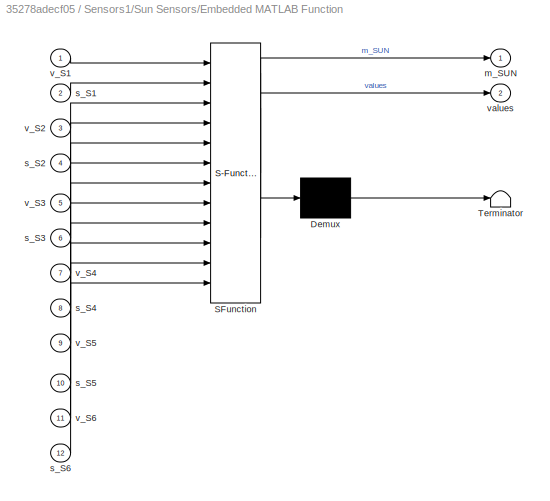
BLOCK [SubSystem] Sensors1/Sun Sensors/Embedded MATLAB Function
  ErrorFcn = Stateflow.Translate.translate
  PermitHierarchicalResolution = ExplicitOnly
  Ports = [12, 2]
  RequestExecContextInheritance = off
  SFBlockType = MATLAB Function
  TreatAsAtomicUnit = on
  Variant = off
BLOCK [Demux] Sensors1/Sun Sensors/Embedded MATLAB Function/ Demux 
  Outputs = 1
  Ports = [1, 1]
BLOCK [S-Function] Sensors1/Sun Sensors/Embedded MATLAB Function/ SFunction 
  EnableBusSupport = on
  FunctionName = sf_sfun
  Parameters = Snum,s_SS_MAX_ANGLE
  PortCounts = [12 3]
  Ports = [12, 3]
  SFunctionDeploymentMode = off
  Tag = Stateflow S-Function adcs_v15_integral_29april17 22
BLOCK [Terminator] Sensors1/Sun Sensors/Embedded MATLAB Function/ Terminator 
BLOCK [Outport] Sensors1/Sun Sensors/Embedded MATLAB Function/m_SUN
  IconDisplay = Port number
BLOCK [Inport] Sensors1/Sun Sensors/Embedded MATLAB Function/s_S1
  IconDisplay = Port number
  Port = 2
BLOCK [Inport] Sensors1/Sun Sensors/Embedded MATLAB Function/s_S2
  IconDisplay = Port number
  Port = 4
BLOCK [Inport] Sensors1/Sun Sensors/Embedded MATLAB Function/s_S3
  IconDisplay = Port number
  Port = 6
BLOCK [Inport] Sensors1/Sun Sensors/Embedded MATLAB Function/s_S4
  IconDisplay = Port number
  Port = 8
BLOCK [Inport] Sensors1/Sun Sensors/Embedded MATLAB Function/s_S5
  IconDisplay = Port number
  Port = 10
BLOCK [Inport] Sensors1/Sun Sensors/Embedded MATLAB Function/s_S6
  IconDisplay = Port number
  Port = 12
BLOCK [Inport] Sensors1/Sun Sensors/Embedded MATLAB Function/v_S1
  IconDisplay = Port number
BLOCK [Inport] Sensors1/Sun Sensors/Embedded MATLAB Function/v_S2
  IconDisplay = Port number
  Port = 3
BLOCK [Inport] Sensors1/Sun Sensors/Embedded MATLAB Function/v_S3
  IconDisplay = Port number
  Port = 5
BLOCK [Inport] Sensors1/Sun Sensors/Embedded MATLAB Function/v_S4
  IconDisplay = Port number
  Port = 7
BLOCK [Inport] Sensors1/Sun Sensors/Embedded MATLAB Function/v_S5
  IconDisplay = Port number
  Port = 9
BLOCK [Inport] Sensors1/Sun Sensors/Embedded MATLAB Function/v_S6
  IconDisplay = Port number
  Port = 11
BLOCK [Outport] Sensors1/Sun Sensors/Embedded MATLAB Function/values
  IconDisplay = Port number
  Port = 2
BLOCK [Inport] Sensors1/Sun Sensors/Light
  IconDisplay = Port number
  Port = 2
BLOCK [SubSystem] Sensors1/Sun Sensors/S1
  Ports = [2, 2]
  RequestExecContextInheritance = off
  Variant = off
BLOCK [Quantizer] Sensors1/Sun Sensors/S1/ADC
  QuantizationInterval = 1/s_SS_ADC_res
BLOCK [Sum] Sensors1/Sun Sensors/S1/Add
  InputSameDT = off
  OutDataTypeStr = Inherit: Inherit via internal rule
  Ports = [2, 1]
  SaturateOnIntegerOverflow = off
BLOCK [Constant] Sensors1/Sun Sensors/S1/Constant
  Value = v_S1
BLOCK [DotProduct] Sensors1/Sun Sensors/S1/Dot Product
  OutDataTypeStr = Inherit: Inherit via internal rule
BLOCK [Gain] Sensors1/Sun Sensors/S1/Gain
  Gain = s_SS_ADC_gain
  OutDataTypeStr = Inherit: Inherit via internal rule
  ParamDataTypeStr = Inherit: Inherit via internal rule
  SaturateOnIntegerOverflow = off
BLOCK [Reference] Sensors1/Sun Sensors/S1/Gaussian Noise Generator  REF=commnoisgen2/Gaussian Noise
Generator
  Ports = [0, 1]
  SourceBlock = commnoisgen2/Gaussian Noise\nGenerator
  SourceType = Gaussian Noise Generator
BLOCK [Product] Sensors1/Sun Sensors/S1/Product
  InputSameDT = off
  OutDataTypeStr = Inherit: Inherit via internal rule
  Ports = [2, 1]
  SaturateOnIntegerOverflow = off
BLOCK [Saturate] Sensors1/Sun Sensors/S1/Saturation
  InputPortMap = u0
  LowerLimit = 0
  Ports = [1, 1]
  UpperLimit = inf
BLOCK [Inport] Sensors1/Sun Sensors/S1/light
  IconDisplay = Port number
BLOCK [Outport] Sensors1/Sun Sensors/S1/s_S
  IconDisplay = Port number
  Port = 2
BLOCK [Outport] Sensors1/Sun Sensors/S1/v_S
  IconDisplay = Port number
BLOCK [Inport] Sensors1/Sun Sensors/S1/v_Sunb
  IconDisplay = Port number
  Port = 2
BLOCK [SubSystem] Sensors1/Sun Sensors/S2
  Ports = [2, 2]
  RequestExecContextInheritance = off
  Variant = off
BLOCK [Quantizer] Sensors1/Sun Sensors/S2/ADC
  QuantizationInterval = 1/s_SS_ADC_res
BLOCK [Sum] Sensors1/Sun Sensors/S2/Add
  InputSameDT = off
  OutDataTypeStr = Inherit: Inherit via internal rule
  Ports = [2, 1]
  SaturateOnIntegerOverflow = off
BLOCK [Constant] Sensors1/Sun Sensors/S2/Constant
  Value = v_S2
BLOCK [DotProduct] Sensors1/Sun Sensors/S2/Dot Product
  OutDataTypeStr = Inherit: Inherit via internal rule
BLOCK [Gain] Sensors1/Sun Sensors/S2/Gain
  Gain = s_SS_ADC_gain
  OutDataTypeStr = Inherit: Inherit via internal rule
  ParamDataTypeStr = Inherit: Inherit via internal rule
  SaturateOnIntegerOverflow = off
BLOCK [Reference] Sensors1/Sun Sensors/S2/Gaussian Noise Generator  REF=commnoisgen2/Gaussian Noise
Generator
  Ports = [0, 1]
  SourceBlock = commnoisgen2/Gaussian Noise\nGenerator
  SourceType = Gaussian Noise Generator
BLOCK [Product] Sensors1/Sun Sensors/S2/Product
  InputSameDT = off
  OutDataTypeStr = Inherit: Inherit via internal rule
  Ports = [2, 1]
  SaturateOnIntegerOverflow = off
BLOCK [Saturate] Sensors1/Sun Sensors/S2/Saturation
  InputPortMap = u0
  LowerLimit = 0
  Ports = [1, 1]
  UpperLimit = inf
BLOCK [Inport] Sensors1/Sun Sensors/S2/light
  IconDisplay = Port number
BLOCK [Outport] Sensors1/Sun Sensors/S2/s_S
  IconDisplay = Port number
  Port = 2
BLOCK [Outport] Sensors1/Sun Sensors/S2/v_S
  IconDisplay = Port number
BLOCK [Inport] Sensors1/Sun Sensors/S2/v_Sunb
  IconDisplay = Port number
  Port = 2
BLOCK [SubSystem] Sensors1/Sun Sensors/S3
  Ports = [2, 2]
  RequestExecContextInheritance = off
  Variant = off
BLOCK [Quantizer] Sensors1/Sun Sensors/S3/ADC
  QuantizationInterval = 1/s_SS_ADC_res
BLOCK [Sum] Sensors1/Sun Sensors/S3/Add
  InputSameDT = off
  OutDataTypeStr = Inherit: Inherit via internal rule
  Ports = [2, 1]
  SaturateOnIntegerOverflow = off
BLOCK [Constant] Sensors1/Sun Sensors/S3/Constant
  Value = v_S3
BLOCK [DotProduct] Sensors1/Sun Sensors/S3/Dot Product
  OutDataTypeStr = Inherit: Inherit via internal rule
BLOCK [Gain] Sensors1/Sun Sensors/S3/Gain
  Gain = s_SS_ADC_gain
  OutDataTypeStr = Inherit: Inherit via internal rule
  ParamDataTypeStr = Inherit: Inherit via internal rule
  SaturateOnIntegerOverflow = off
BLOCK [Reference] Sensors1/Sun Sensors/S3/Gaussian Noise Generator  REF=commnoisgen2/Gaussian Noise
Generator
  Ports = [0, 1]
  SourceBlock = commnoisgen2/Gaussian Noise\nGenerator
  SourceType = Gaussian Noise Generator
BLOCK [Product] Sensors1/Sun Sensors/S3/Product
  InputSameDT = off
  OutDataTypeStr = Inherit: Inherit via internal rule
  Ports = [2, 1]
  SaturateOnIntegerOverflow = off
BLOCK [Saturate] Sensors1/Sun Sensors/S3/Saturation
  InputPortMap = u0
  LowerLimit = 0
  Ports = [1, 1]
  UpperLimit = inf
BLOCK [Inport] Sensors1/Sun Sensors/S3/light
  IconDisplay = Port number
BLOCK [Outport] Sensors1/Sun Sensors/S3/s_S
  IconDisplay = Port number
  Port = 2
BLOCK [Outport] Sensors1/Sun Sensors/S3/v_S
  IconDisplay = Port number
BLOCK [Inport] Sensors1/Sun Sensors/S3/v_Sunb
  IconDisplay = Port number
  Port = 2
BLOCK [SubSystem] Sensors1/Sun Sensors/S4
  Ports = [2, 2]
  RequestExecContextInheritance = off
  Variant = off
BLOCK [Quantizer] Sensors1/Sun Sensors/S4/ADC
  QuantizationInterval = 1/s_SS_ADC_res
BLOCK [Sum] Sensors1/Sun Sensors/S4/Add
  InputSameDT = off
  OutDataTypeStr = Inherit: Inherit via internal rule
  Ports = [2, 1]
  SaturateOnIntegerOverflow = off
BLOCK [Constant] Sensors1/Sun Sensors/S4/Constant
  Value = v_S4
BLOCK [DotProduct] Sensors1/Sun Sensors/S4/Dot Product
  OutDataTypeStr = Inherit: Inherit via internal rule
BLOCK [Gain] Sensors1/Sun Sensors/S4/Gain
  Gain = s_SS_ADC_gain
  OutDataTypeStr = Inherit: Inherit via internal rule
  ParamDataTypeStr = Inherit: Inherit via internal rule
  SaturateOnIntegerOverflow = off
BLOCK [Reference] Sensors1/Sun Sensors/S4/Gaussian Noise Generator  REF=commnoisgen2/Gaussian Noise
Generator
  Ports = [0, 1]
  SourceBlock = commnoisgen2/Gaussian Noise\nGenerator
  SourceType = Gaussian Noise Generator
BLOCK [Product] Sensors1/Sun Sensors/S4/Product
  InputSameDT = off
  OutDataTypeStr = Inherit: Inherit via internal rule
  Ports = [2, 1]
  SaturateOnIntegerOverflow = off
BLOCK [Saturate] Sensors1/Sun Sensors/S4/Saturation
  InputPortMap = u0
  LowerLimit = 0
  Ports = [1, 1]
  UpperLimit = inf
BLOCK [Inport] Sensors1/Sun Sensors/S4/light
  IconDisplay = Port number
BLOCK [Outport] Sensors1/Sun Sensors/S4/s_S
  IconDisplay = Port number
  Port = 2
BLOCK [Outport] Sensors1/Sun Sensors/S4/v_S
  IconDisplay = Port number
BLOCK [Inport] Sensors1/Sun Sensors/S4/v_Sunb
  IconDisplay = Port number
  Port = 2
BLOCK [SubSystem] Sensors1/Sun Sensors/S5
  Ports = [2, 2]
  RequestExecContextInheritance = off
  Variant = off
BLOCK [Quantizer] Sensors1/Sun Sensors/S5/ADC
  QuantizationInterval = 1/s_SS_ADC_res
BLOCK [Sum] Sensors1/Sun Sensors/S5/Add
  InputSameDT = off
  OutDataTypeStr = Inherit: Inherit via internal rule
  Ports = [2, 1]
  SaturateOnIntegerOverflow = off
BLOCK [Constant] Sensors1/Sun Sensors/S5/Constant
  Value = v_S5
BLOCK [DotProduct] Sensors1/Sun Sensors/S5/Dot Product
  OutDataTypeStr = Inherit: Inherit via internal rule
BLOCK [Gain] Sensors1/Sun Sensors/S5/Gain
  Gain = s_SS_ADC_gain
  OutDataTypeStr = Inherit: Inherit via internal rule
  ParamDataTypeStr = Inherit: Inherit via internal rule
  SaturateOnIntegerOverflow = off
BLOCK [Reference] Sensors1/Sun Sensors/S5/Gaussian Noise Generator  REF=commnoisgen2/Gaussian Noise
Generator
  Ports = [0, 1]
  SourceBlock = commnoisgen2/Gaussian Noise\nGenerator
  SourceType = Gaussian Noise Generator
BLOCK [Product] Sensors1/Sun Sensors/S5/Product
  InputSameDT = off
  OutDataTypeStr = Inherit: Inherit via internal rule
  Ports = [2, 1]
  SaturateOnIntegerOverflow = off
BLOCK [Saturate] Sensors1/Sun Sensors/S5/Saturation
  InputPortMap = u0
  LowerLimit = 0
  Ports = [1, 1]
  UpperLimit = inf
BLOCK [Inport] Sensors1/Sun Sensors/S5/light
  IconDisplay = Port number
BLOCK [Outport] Sensors1/Sun Sensors/S5/s_S
  IconDisplay = Port number
  Port = 2
BLOCK [Outport] Sensors1/Sun Sensors/S5/v_S
  IconDisplay = Port number
BLOCK [Inport] Sensors1/Sun Sensors/S5/v_Sunb
  IconDisplay = Port number
  Port = 2
BLOCK [SubSystem] Sensors1/Sun Sensors/S6
  Ports = [2, 2]
  RequestExecContextInheritance = off
  Variant = off
BLOCK [Quantizer] Sensors1/Sun Sensors/S6/ADC
  QuantizationInterval = 1/s_SS_ADC_res
BLOCK [Sum] Sensors1/Sun Sensors/S6/Add
  InputSameDT = off
  OutDataTypeStr = Inherit: Inherit via internal rule
  Ports = [2, 1]
  SaturateOnIntegerOverflow = off
BLOCK [Constant] Sensors1/Sun Sensors/S6/Constant
  Value = v_S6
BLOCK [DotProduct] Sensors1/Sun Sensors/S6/Dot Product
  OutDataTypeStr = Inherit: Inherit via internal rule
BLOCK [Gain] Sensors1/Sun Sensors/S6/Gain
  Gain = s_SS_ADC_gain
  OutDataTypeStr = Inherit: Inherit via internal rule
  ParamDataTypeStr = Inherit: Inherit via internal rule
  SaturateOnIntegerOverflow = off
BLOCK [Reference] Sensors1/Sun Sensors/S6/Gaussian Noise Generator  REF=commnoisgen2/Gaussian Noise
Generator
  Ports = [0, 1]
  SourceBlock = commnoisgen2/Gaussian Noise\nGenerator
  SourceType = Gaussian Noise Generator
BLOCK [Product] Sensors1/Sun Sensors/S6/Product
  InputSameDT = off
  OutDataTypeStr = Inherit: Inherit via internal rule
  Ports = [2, 1]
  SaturateOnIntegerOverflow = off
BLOCK [Saturate] Sensors1/Sun Sensors/S6/Saturation
  InputPortMap = u0
  LowerLimit = 0
  Ports = [1, 1]
  UpperLimit = inf
BLOCK [Inport] Sensors1/Sun Sensors/S6/light
  IconDisplay = Port number
BLOCK [Outport] Sensors1/Sun Sensors/S6/s_S
  IconDisplay = Port number
  Port = 2
BLOCK [Outport] Sensors1/Sun Sensors/S6/v_S
  IconDisplay = Port number
BLOCK [Inport] Sensors1/Sun Sensors/S6/v_Sunb
  IconDisplay = Port number
  Port = 2
BLOCK [Outport] Sensors1/Sun Sensors/m_SUN
  IconDisplay = Port number
BLOCK [Inport] Sensors1/Sun Sensors/v_Sun_b
  IconDisplay = Port number
BLOCK [Inport] Sensors1/light
  IconDisplay = Port number
  Port = 3
BLOCK [Outport] Sensors1/m_SUN (m)
  IconDisplay = Port number
  Port = 2
BLOCK [Inport] Sensors1/v_B_b
  IconDisplay = Port number
BLOCK [Outport] Sensors1/v_B_b (m)
  IconDisplay = Port number
BLOCK [Inport] Sensors1/v_Sun_b
  IconDisplay = Port number
  Port = 2
BLOCK [SubSystem] Sensors2
  Ports = [3, 3]
  RequestExecContextInheritance = off
  Variant = off
BLOCK [SubSystem] Sensors2/Magnetometer simple
  Ports = [1, 1]
  RequestExecContextInheritance = off
  Variant = off
BLOCK [Constant] Sensors2/Magnetometer simple/Constant
  Value = s_x_MAGMETER_BIAS
BLOCK [Reference] Sensors2/Magnetometer simple/Gaussian Noise Generator  REF=commnoisgen2/Gaussian Noise
Generator
  Ports = [0, 1]
  SourceBlock = commnoisgen2/Gaussian Noise\nGenerator
  SourceType = Gaussian Noise Generator
BLOCK [Sum] Sensors2/Magnetometer simple/Sum1
  IconShape = round
  InputSameDT = off
  Inputs = +++
  OutDataTypeStr = Inherit: Inherit via internal rule
  Ports = [3, 1]
  SaturateOnIntegerOverflow = off
BLOCK [Inport] Sensors2/Magnetometer simple/v_B_b
  IconDisplay = Port number
BLOCK [Outport] Sensors2/Magnetometer simple/v_B_b(m)
  IconDisplay = Port number
BLOCK [SubSystem] Sensors2/Sun Sensors
  Ports = [2, 2]
  RequestExecContextInheritance = off
  Variant = off
BLOCK [SubSystem] Sensors2/Sun Sensors/Embedded MATLAB Function
  ErrorFcn = Stateflow.Translate.translate
  PermitHierarchicalResolution = ExplicitOnly
  Ports = [12, 2]
  RequestExecContextInheritance = off
  SFBlockType = MATLAB Function
  TreatAsAtomicUnit = on
  Variant = off
BLOCK [Demux] Sensors2/Sun Sensors/Embedded MATLAB Function/ Demux 
  Outputs = 1
  Ports = [1, 1]
BLOCK [S-Function] Sensors2/Sun Sensors/Embedded MATLAB Function/ SFunction 
  EnableBusSupport = on
  FunctionName = sf_sfun
  Parameters = Snum,s_SS_MAX_ANGLE
  PortCounts = [12 3]
  Ports = [12, 3]
  SFunctionDeploymentMode = off
  Tag = Stateflow S-Function adcs_v15_integral_29april17 14
BLOCK [Terminator] Sensors2/Sun Sensors/Embedded MATLAB Function/ Terminator 
BLOCK [Outport] Sensors2/Sun Sensors/Embedded MATLAB Function/m_SUN
  IconDisplay = Port number
BLOCK [Inport] Sensors2/Sun Sensors/Embedded MATLAB Function/s_S1
  IconDisplay = Port number
  Port = 2
BLOCK [Inport] Sensors2/Sun Sensors/Embedded MATLAB Function/s_S2
  IconDisplay = Port number
  Port = 4
BLOCK [Inport] Sensors2/Sun Sensors/Embedded MATLAB Function/s_S3
  IconDisplay = Port number
  Port = 6
BLOCK [Inport] Sensors2/Sun Sensors/Embedded MATLAB Function/s_S4
  IconDisplay = Port number
  Port = 8
BLOCK [Inport] Sensors2/Sun Sensors/Embedded MATLAB Function/s_S5
  IconDisplay = Port number
  Port = 10
BLOCK [Inport] Sensors2/Sun Sensors/Embedded MATLAB Function/s_S6
  IconDisplay = Port number
  Port = 12
BLOCK [Inport] Sensors2/Sun Sensors/Embedded MATLAB Function/v_S1
  IconDisplay = Port number
BLOCK [Inport] Sensors2/Sun Sensors/Embedded MATLAB Function/v_S2
  IconDisplay = Port number
  Port = 3
BLOCK [Inport] Sensors2/Sun Sensors/Embedded MATLAB Function/v_S3
  IconDisplay = Port number
  Port = 5
BLOCK [Inport] Sensors2/Sun Sensors/Embedded MATLAB Function/v_S4
  IconDisplay = Port number
  Port = 7
BLOCK [Inport] Sensors2/Sun Sensors/Embedded MATLAB Function/v_S5
  IconDisplay = Port number
  Port = 9
BLOCK [Inport] Sensors2/Sun Sensors/Embedded MATLAB Function/v_S6
  IconDisplay = Port number
  Port = 11
BLOCK [Outport] Sensors2/Sun Sensors/Embedded MATLAB Function/values
  IconDisplay = Port number
  Port = 2
BLOCK [Inport] Sensors2/Sun Sensors/Light
  IconDisplay = Port number
  Port = 2
BLOCK [Mux] Sensors2/Sun Sensors/Mux
  DisplayOption = bar
  Inputs = 6
  Ports = [6, 1]
BLOCK [SubSystem] Sensors2/Sun Sensors/S1
  Ports = [2, 2]
  RequestExecContextInheritance = off
  Variant = off
BLOCK [Quantizer] Sensors2/Sun Sensors/S1/ADC
  QuantizationInterval = 1/s_SS_ADC_res
BLOCK [Sum] Sensors2/Sun Sensors/S1/Add
  InputSameDT = off
  OutDataTypeStr = Inherit: Inherit via internal rule
  Ports = [2, 1]
  SaturateOnIntegerOverflow = off
BLOCK [Constant] Sensors2/Sun Sensors/S1/Constant
  Value = v_S1
BLOCK [DotProduct] Sensors2/Sun Sensors/S1/Dot Product
  OutDataTypeStr = Inherit: Inherit via internal rule
BLOCK [Gain] Sensors2/Sun Sensors/S1/Gain
  Gain = s_SS_ADC_gain
  OutDataTypeStr = Inherit: Inherit via internal rule
  ParamDataTypeStr = Inherit: Inherit via internal rule
  SaturateOnIntegerOverflow = off
BLOCK [Reference] Sensors2/Sun Sensors/S1/Gaussian Noise Generator  REF=commnoisgen2/Gaussian Noise
Generator
  Ports = [0, 1]
  SourceBlock = commnoisgen2/Gaussian Noise\nGenerator
  SourceType = Gaussian Noise Generator
BLOCK [Product] Sensors2/Sun Sensors/S1/Product
  InputSameDT = off
  OutDataTypeStr = Inherit: Inherit via internal rule
  Ports = [2, 1]
  SaturateOnIntegerOverflow = off
BLOCK [Saturate] Sensors2/Sun Sensors/S1/Saturation
  InputPortMap = u0
  LowerLimit = 0
  Ports = [1, 1]
  UpperLimit = inf
BLOCK [Inport] Sensors2/Sun Sensors/S1/light
  IconDisplay = Port number
BLOCK [Outport] Sensors2/Sun Sensors/S1/s_S
  IconDisplay = Port number
  Port = 2
BLOCK [Outport] Sensors2/Sun Sensors/S1/v_S
  IconDisplay = Port number
BLOCK [Inport] Sensors2/Sun Sensors/S1/v_Sunb
  IconDisplay = Port number
  Port = 2
BLOCK [SubSystem] Sensors2/Sun Sensors/S2
  Ports = [2, 2]
  RequestExecContextInheritance = off
  Variant = off
BLOCK [Quantizer] Sensors2/Sun Sensors/S2/ADC
  QuantizationInterval = 1/s_SS_ADC_res
BLOCK [Sum] Sensors2/Sun Sensors/S2/Add
  InputSameDT = off
  OutDataTypeStr = Inherit: Inherit via internal rule
  Ports = [2, 1]
  SaturateOnIntegerOverflow = off
BLOCK [Constant] Sensors2/Sun Sensors/S2/Constant
  Value = v_S2
BLOCK [DotProduct] Sensors2/Sun Sensors/S2/Dot Product
  OutDataTypeStr = Inherit: Inherit via internal rule
BLOCK [Gain] Sensors2/Sun Sensors/S2/Gain
  Gain = s_SS_ADC_gain
  OutDataTypeStr = Inherit: Inherit via internal rule
  ParamDataTypeStr = Inherit: Inherit via internal rule
  SaturateOnIntegerOverflow = off
BLOCK [Reference] Sensors2/Sun Sensors/S2/Gaussian Noise Generator  REF=commnoisgen2/Gaussian Noise
Generator
  Ports = [0, 1]
  SourceBlock = commnoisgen2/Gaussian Noise\nGenerator
  SourceType = Gaussian Noise Generator
BLOCK [Product] Sensors2/Sun Sensors/S2/Product
  InputSameDT = off
  OutDataTypeStr = Inherit: Inherit via internal rule
  Ports = [2, 1]
  SaturateOnIntegerOverflow = off
BLOCK [Saturate] Sensors2/Sun Sensors/S2/Saturation
  InputPortMap = u0
  LowerLimit = 0
  Ports = [1, 1]
  UpperLimit = inf
BLOCK [Inport] Sensors2/Sun Sensors/S2/light
  IconDisplay = Port number
BLOCK [Outport] Sensors2/Sun Sensors/S2/s_S
  IconDisplay = Port number
  Port = 2
BLOCK [Outport] Sensors2/Sun Sensors/S2/v_S
  IconDisplay = Port number
BLOCK [Inport] Sensors2/Sun Sensors/S2/v_Sunb
  IconDisplay = Port number
  Port = 2
BLOCK [SubSystem] Sensors2/Sun Sensors/S3
  Ports = [2, 2]
  RequestExecContextInheritance = off
  Variant = off
BLOCK [Quantizer] Sensors2/Sun Sensors/S3/ADC
  QuantizationInterval = 1/s_SS_ADC_res
BLOCK [Sum] Sensors2/Sun Sensors/S3/Add
  InputSameDT = off
  OutDataTypeStr = Inherit: Inherit via internal rule
  Ports = [2, 1]
  SaturateOnIntegerOverflow = off
BLOCK [Constant] Sensors2/Sun Sensors/S3/Constant
  Value = v_S3
BLOCK [DotProduct] Sensors2/Sun Sensors/S3/Dot Product
  OutDataTypeStr = Inherit: Inherit via internal rule
BLOCK [Gain] Sensors2/Sun Sensors/S3/Gain
  Gain = s_SS_ADC_gain
  OutDataTypeStr = Inherit: Inherit via internal rule
  ParamDataTypeStr = Inherit: Inherit via internal rule
  SaturateOnIntegerOverflow = off
BLOCK [Reference] Sensors2/Sun Sensors/S3/Gaussian Noise Generator  REF=commnoisgen2/Gaussian Noise
Generator
  Ports = [0, 1]
  SourceBlock = commnoisgen2/Gaussian Noise\nGenerator
  SourceType = Gaussian Noise Generator
BLOCK [Product] Sensors2/Sun Sensors/S3/Product
  InputSameDT = off
  OutDataTypeStr = Inherit: Inherit via internal rule
  Ports = [2, 1]
  SaturateOnIntegerOverflow = off
BLOCK [Saturate] Sensors2/Sun Sensors/S3/Saturation
  InputPortMap = u0
  LowerLimit = 0
  Ports = [1, 1]
  UpperLimit = inf
BLOCK [Inport] Sensors2/Sun Sensors/S3/light
  IconDisplay = Port number
BLOCK [Outport] Sensors2/Sun Sensors/S3/s_S
  IconDisplay = Port number
  Port = 2
BLOCK [Outport] Sensors2/Sun Sensors/S3/v_S
  IconDisplay = Port number
BLOCK [Inport] Sensors2/Sun Sensors/S3/v_Sunb
  IconDisplay = Port number
  Port = 2
BLOCK [SubSystem] Sensors2/Sun Sensors/S4
  Ports = [2, 2]
  RequestExecContextInheritance = off
  Variant = off
BLOCK [Quantizer] Sensors2/Sun Sensors/S4/ADC
  QuantizationInterval = 1/s_SS_ADC_res
BLOCK [Sum] Sensors2/Sun Sensors/S4/Add
  InputSameDT = off
  OutDataTypeStr = Inherit: Inherit via internal rule
  Ports = [2, 1]
  SaturateOnIntegerOverflow = off
BLOCK [Constant] Sensors2/Sun Sensors/S4/Constant
  Value = v_S4
BLOCK [DotProduct] Sensors2/Sun Sensors/S4/Dot Product
  OutDataTypeStr = Inherit: Inherit via internal rule
BLOCK [Gain] Sensors2/Sun Sensors/S4/Gain
  Gain = s_SS_ADC_gain
  OutDataTypeStr = Inherit: Inherit via internal rule
  ParamDataTypeStr = Inherit: Inherit via internal rule
  SaturateOnIntegerOverflow = off
BLOCK [Reference] Sensors2/Sun Sensors/S4/Gaussian Noise Generator  REF=commnoisgen2/Gaussian Noise
Generator
  Ports = [0, 1]
  SourceBlock = commnoisgen2/Gaussian Noise\nGenerator
  SourceType = Gaussian Noise Generator
BLOCK [Product] Sensors2/Sun Sensors/S4/Product
  InputSameDT = off
  OutDataTypeStr = Inherit: Inherit via internal rule
  Ports = [2, 1]
  SaturateOnIntegerOverflow = off
BLOCK [Saturate] Sensors2/Sun Sensors/S4/Saturation
  InputPortMap = u0
  LowerLimit = 0
  Ports = [1, 1]
  UpperLimit = inf
BLOCK [Inport] Sensors2/Sun Sensors/S4/light
  IconDisplay = Port number
BLOCK [Outport] Sensors2/Sun Sensors/S4/s_S
  IconDisplay = Port number
  Port = 2
BLOCK [Outport] Sensors2/Sun Sensors/S4/v_S
  IconDisplay = Port number
BLOCK [Inport] Sensors2/Sun Sensors/S4/v_Sunb
  IconDisplay = Port number
  Port = 2
BLOCK [SubSystem] Sensors2/Sun Sensors/S5
  Ports = [2, 2]
  RequestExecContextInheritance = off
  Variant = off
BLOCK [Quantizer] Sensors2/Sun Sensors/S5/ADC
  QuantizationInterval = 1/s_SS_ADC_res
BLOCK [Sum] Sensors2/Sun Sensors/S5/Add
  InputSameDT = off
  OutDataTypeStr = Inherit: Inherit via internal rule
  Ports = [2, 1]
  SaturateOnIntegerOverflow = off
BLOCK [Constant] Sensors2/Sun Sensors/S5/Constant
  Value = v_S5
BLOCK [DotProduct] Sensors2/Sun Sensors/S5/Dot Product
  OutDataTypeStr = Inherit: Inherit via internal rule
BLOCK [Gain] Sensors2/Sun Sensors/S5/Gain
  Gain = s_SS_ADC_gain
  OutDataTypeStr = Inherit: Inherit via internal rule
  ParamDataTypeStr = Inherit: Inherit via internal rule
  SaturateOnIntegerOverflow = off
BLOCK [Reference] Sensors2/Sun Sensors/S5/Gaussian Noise Generator  REF=commnoisgen2/Gaussian Noise
Generator
  Ports = [0, 1]
  SourceBlock = commnoisgen2/Gaussian Noise\nGenerator
  SourceType = Gaussian Noise Generator
BLOCK [Product] Sensors2/Sun Sensors/S5/Product
  InputSameDT = off
  OutDataTypeStr = Inherit: Inherit via internal rule
  Ports = [2, 1]
  SaturateOnIntegerOverflow = off
BLOCK [Saturate] Sensors2/Sun Sensors/S5/Saturation
  InputPortMap = u0
  LowerLimit = 0
  Ports = [1, 1]
  UpperLimit = inf
BLOCK [Inport] Sensors2/Sun Sensors/S5/light
  IconDisplay = Port number
BLOCK [Outport] Sensors2/Sun Sensors/S5/s_S
  IconDisplay = Port number
  Port = 2
BLOCK [Outport] Sensors2/Sun Sensors/S5/v_S
  IconDisplay = Port number
BLOCK [Inport] Sensors2/Sun Sensors/S5/v_Sunb
  IconDisplay = Port number
  Port = 2
BLOCK [SubSystem] Sensors2/Sun Sensors/S6
  Ports = [2, 2]
  RequestExecContextInheritance = off
  Variant = off
BLOCK [Quantizer] Sensors2/Sun Sensors/S6/ADC
  QuantizationInterval = 1/s_SS_ADC_res
BLOCK [Sum] Sensors2/Sun Sensors/S6/Add
  InputSameDT = off
  OutDataTypeStr = Inherit: Inherit via internal rule
  Ports = [2, 1]
  SaturateOnIntegerOverflow = off
BLOCK [Constant] Sensors2/Sun Sensors/S6/Constant
  Value = v_S6
BLOCK [DotProduct] Sensors2/Sun Sensors/S6/Dot Product
  OutDataTypeStr = Inherit: Inherit via internal rule
BLOCK [Gain] Sensors2/Sun Sensors/S6/Gain
  Gain = s_SS_ADC_gain
  OutDataTypeStr = Inherit: Inherit via internal rule
  ParamDataTypeStr = Inherit: Inherit via internal rule
  SaturateOnIntegerOverflow = off
BLOCK [Reference] Sensors2/Sun Sensors/S6/Gaussian Noise Generator  REF=commnoisgen2/Gaussian Noise
Generator
  Ports = [0, 1]
  SourceBlock = commnoisgen2/Gaussian Noise\nGenerator
  SourceType = Gaussian Noise Generator
BLOCK [Product] Sensors2/Sun Sensors/S6/Product
  InputSameDT = off
  OutDataTypeStr = Inherit: Inherit via internal rule
  Ports = [2, 1]
  SaturateOnIntegerOverflow = off
BLOCK [Saturate] Sensors2/Sun Sensors/S6/Saturation
  InputPortMap = u0
  LowerLimit = 0
  Ports = [1, 1]
  UpperLimit = inf
BLOCK [Inport] Sensors2/Sun Sensors/S6/light
  IconDisplay = Port number
BLOCK [Outport] Sensors2/Sun Sensors/S6/s_S
  IconDisplay = Port number
  Port = 2
BLOCK [Outport] Sensors2/Sun Sensors/S6/v_S
  IconDisplay = Port number
BLOCK [Inport] Sensors2/Sun Sensors/S6/v_Sunb
  IconDisplay = Port number
  Port = 2
BLOCK [Terminator] Sensors2/Sun Sensors/Terminator
BLOCK [Outport] Sensors2/Sun Sensors/m_SUN
  IconDisplay = Port number
BLOCK [Outport] Sensors2/Sun Sensors/sun_sensor_toOBC
  IconDisplay = Port number
  Port = 2
BLOCK [Inport] Sensors2/Sun Sensors/v_Sun_b
  IconDisplay = Port number
BLOCK [Inport] Sensors2/light
  IconDisplay = Port number
  Port = 3
BLOCK [Outport] Sensors2/m_SUN (m)
  IconDisplay = Port number
  Port = 2
BLOCK [Outport] Sensors2/sun_sensor_toOBC
  IconDisplay = Port number
  Port = 3
BLOCK [Inport] Sensors2/v_B_b
  IconDisplay = Port number
BLOCK [Outport] Sensors2/v_B_b (m)
  IconDisplay = Port number
BLOCK [Inport] Sensors2/v_Sun_b
  IconDisplay = Port number
  Port = 2
BLOCK [SubSystem] Subsystem
  Ports = [1, 2]
  RequestExecContextInheritance = off
  Variant = off
BLOCK [FromFile] Subsystem/From File
  FileName = Si_120k
  SampleTime = 0
BLOCK [SubSystem] Subsystem/f: I->B
  ErrorFcn = Stateflow.Translate.translate
  PermitHierarchicalResolution = ExplicitOnly
  Ports = [2, 1]
  RequestExecContextInheritance = off
  SFBlockType = MATLAB Function
  TreatAsAtomicUnit = on
  Variant = off
BLOCK [Demux] Subsystem/f: I->B/ Demux 
  Outputs = 1
  Ports = [1, 1]
BLOCK [S-Function] Subsystem/f: I->B/ SFunction 
  EnableBusSupport = on
  FunctionName = sf_sfun
  PortCounts = [2 2]
  Ports = [2, 2]
  SFunctionDeploymentMode = off
  Tag = Stateflow S-Function adcs_v15_integral_29april17 4
BLOCK [Terminator] Subsystem/f: I->B/ Terminator 
BLOCK [Outport] Subsystem/f: I->B/v_B
  IconDisplay = Port number
BLOCK [Inport] Subsystem/f: I->B/v_I
  IconDisplay = Port number
  Port = 2
BLOCK [Inport] Subsystem/f: I->B/x
  IconDisplay = Port number
BLOCK [Outport] Subsystem/v_Sun_b
  IconDisplay = Port number
BLOCK [Outport] Subsystem/v_Sun_i
  IconDisplay = Port number
  Port = 2
BLOCK [Inport] Subsystem/x
  IconDisplay = Port number
BLOCK [Sum] Sum
  IconShape = round
  InputSameDT = off
  Inputs = |++
  OutDataTypeStr = Inherit: Inherit via internal rule
  Ports = [2, 1]
  SaturateOnIntegerOverflow = off
BLOCK [ToWorkspace] To Workspace1
  MaxDataPoints = inf
  Ports = [1]
  SampleTime = Ts_display
  VariableName = w_BOB_real
BLOCK [ToWorkspace] To Workspace10
  MaxDataPoints = inf
  Ports = [1]
  SampleTime = Ts_display
  VariableName = v_sun_est
BLOCK [ToWorkspace] To Workspace11
  MaxDataPoints = inf
  Ports = [1]
  SampleTime = Ts_display
  VariableName = v_sun_real
BLOCK [ToWorkspace] To Workspace12
  MaxDataPoints = inf
  Ports = [1]
  SampleTime = Ts_display
  VariableName = v_Bb_real
BLOCK [ToWorkspace] To Workspace13
  MaxDataPoints = inf
  Ports = [1]
  SampleTime = Ts_display
  VariableName = v_Bb_m
BLOCK [ToWorkspace] To Workspace14
  MaxDataPoints = inf
  Ports = [1]
  SampleTime = Ts_display
  VariableName = w_BIB_real
BLOCK [ToWorkspace] To Workspace15
  MaxDataPoints = inf
  Ports = [1]
  SampleTime = Ts_display
  VariableName = t
BLOCK [ToWorkspace] To Workspace16
  MaxDataPoints = inf
  Ports = [1]
  SampleTime = Ts_display
  VariableName = v_Sun_o_calc
BLOCK [ToWorkspace] To Workspace17
  MaxDataPoints = inf
  Ports = [1]
  SampleTime = Ts_display
  VariableName = q_BO_est
BLOCK [ToWorkspace] To Workspace18
  MaxDataPoints = inf
  Ports = [1]
  SampleTime = Ts_display
  VariableName = light
BLOCK [ToWorkspace] To Workspace19
  MaxDataPoints = inf
  Ports = [1]
  SampleTime = Ts_display
  VariableName = w_BOB_est
BLOCK [ToWorkspace] To Workspace2
  MaxDataPoints = inf
  Ports = [1]
  SampleTime = Ts_display
  VariableName = N_save
BLOCK [ToWorkspace] To Workspace20
  MaxDataPoints = inf
  Ports = [1]
  SampleTime = Ts_display
  VariableName = v_Sun_i
BLOCK [ToWorkspace] To Workspace21
  MaxDataPoints = inf
  Ports = [1]
  SampleTime = -1
  VariableName = test
BLOCK [ToWorkspace] To Workspace22
  MaxDataPoints = inf
  Ports = [1]
  SampleTime = Ts_display
  VariableName = MM_data_toOBC
BLOCK [ToWorkspace] To Workspace23
  MaxDataPoints = inf
  Ports = [1]
  SampleTime = Ts_display
  VariableName = GPS_data_toOBC
BLOCK [ToWorkspace] To Workspace24
  FixptAsFi = on
  MaxDataPoints = inf
  Ports = [1]
  SampleTime = Ts_display
  Save2DSignal = 3-D array (concatenate along third dimension)
  VariableName = sun_toOBC
BLOCK [ToWorkspace] To Workspace25
  MaxDataPoints = inf
  Ports = [1]
  SampleTime = -1
  VariableName = Bb
BLOCK [ToWorkspace] To Workspace26
  MaxDataPoints = inf
  Ports = [1]
  SampleTime = -1
  VariableName = Sb
BLOCK [ToWorkspace] To Workspace3
  MaxDataPoints = inf
  Ports = [1]
  SampleTime = Ts_display
  VariableName = eu_ctrl
BLOCK [ToWorkspace] To Workspace4
  MaxDataPoints = inf
  Ports = [1]
  SampleTime = Ts_display
  VariableName = current
BLOCK [ToWorkspace] To Workspace5
  MaxDataPoints = inf
  Ports = [1]
  SampleTime = Ts_display
  VariableName = euler
BLOCK [ToWorkspace] To Workspace6
  MaxDataPoints = inf
  Ports = [1]
  SampleTime = Ts_display
  VariableName = q_BO_real
BLOCK [ToWorkspace] To Workspace7
  MaxDataPoints = inf
  Ports = [1]
  SampleTime = Ts_display
  VariableName = m_desired
BLOCK [ToWorkspace] To Workspace8
  MaxDataPoints = inf
  Ports = [1]
  SampleTime = Ts_display
  VariableName = v_Bo
BLOCK [ToWorkspace] To Workspace9
  MaxDataPoints = inf
  Ports = [1]
  SampleTime = Ts_display
  VariableName = u_control
BLOCK [SubSystem] Torquer
  Ports = [2, 1]
  RequestExecContextInheritance = off
  Variant = off
BLOCK [Reference] Torquer/3x3 Cross Product  REF=aerolibutil/3x3 Cross Product
  Ports = [2, 1]
  SourceBlock = aerolibutil/3x3 Cross Product
  SourceType = CrossProduct
BLOCK [Constant] Torquer/Constant
  Value = v_x_MOUNTING_THETA_ZYX_BODY_TORQUER
BLOCK [SubSystem] Torquer/Embedded MATLAB Function4
  ErrorFcn = Stateflow.Translate.translate
  PermitHierarchicalResolution = ExplicitOnly
  Ports = [1, 1]
  RequestExecContextInheritance = off
  SFBlockType = MATLAB Function
  TreatAsAtomicUnit = on
  Variant = off
BLOCK [Demux] Torquer/Embedded MATLAB Function4/ Demux 
  Outputs = 1
  Ports = [1, 1]
BLOCK [S-Function] Torquer/Embedded MATLAB Function4/ SFunction 
  EnableBusSupport = on
  FunctionName = sf_sfun
  PortCounts = [1 2]
  Ports = [1, 2]
  SFunctionDeploymentMode = off
  Tag = Stateflow S-Function adcs_v15_integral_29april17 1
BLOCK [Terminator] Torquer/Embedded MATLAB Function4/ Terminator 
BLOCK [Outport] Torquer/Embedded MATLAB Function4/DCM
  IconDisplay = Port number
BLOCK [Inport] Torquer/Embedded MATLAB Function4/euler
  IconDisplay = Port number
BLOCK [Gain] Torquer/Gain
  Gain = 0
  OutDataTypeStr = Inherit: Inherit via internal rule
  ParamDataTypeStr = Inherit: Inherit via internal rule
  SaturateOnIntegerOverflow = off
BLOCK [Gain] Torquer/Gain2
  Gain = N*A
  OutDataTypeStr = Inherit: Inherit via internal rule
  ParamDataTypeStr = Inherit: Inherit via internal rule
  SaturateOnIntegerOverflow = off
BLOCK [Quantizer] Torquer/PWM
  QuantizationInterval = s_PWM_RES
BLOCK [Product] Torquer/Product
  InputSameDT = off
  Multiplication = Matrix(*)
  OutDataTypeStr = Inherit: Inherit via internal rule
  Ports = [2, 1]
  SaturateOnIntegerOverflow = off
BLOCK [Scope] Torquer/Scope
  Ports = [1]
  ScopeSpecificationString = C++SS(StrPVP('Location','[137, 330, 461, 569]'),StrPVP('Open','off'),StrPVP('ZoomMode','yonly'),MxPVP('AxesTitles',24,'struct(''axes1'',''%<SignalLabel>'')'),StrPVP('ShowLegends','off'),StrPVP('SaveName','ScopeData3'),StrPVP('DataFormat','StructureWithTime'),StrPVP('BlockParamSampleTime','0'),StrPVP('LimitDataPoints','on'),StrPVP('Decimation','1'),StrPVP('BlockParamSampleInput','off'))
BLOCK [Scope] Torquer/Scope1
  Ports = [1]
  ScopeSpecificationString = C++SS(StrPVP('Location','[188, 390, 512, 629]'),StrPVP('Open','off'),StrPVP('ZoomMode','yonly'),MxPVP('AxesTitles',24,'struct(''axes1'',''%<SignalLabel>'')'),StrPVP('ShowLegends','off'),StrPVP('SaveName','ScopeData6'),StrPVP('DataFormat','StructureWithTime'),StrPVP('BlockParamSampleTime','0'),StrPVP('LimitDataPoints','on'),StrPVP('Decimation','1'),StrPVP('BlockParamSampleInput','off'))
BLOCK [Scope] Torquer/Scope2
  Ports = [1]
  ScopeSpecificationString = C++SS(StrPVP('Location','[188, 390, 512, 629]'),StrPVP('Open','off'),MxPVP('AxesTitles',24,'struct(''axes1'',''%<SignalLabel>'')'),StrPVP('ShowLegends','off'),StrPVP('SaveName','ScopeData24'),StrPVP('DataFormat','StructureWithTime'),StrPVP('BlockParamSampleTime','0'),StrPVP('LimitDataPoints','on'),StrPVP('Decimation','1'),StrPVP('BlockParamSampleInput','off'))
BLOCK [Scope] Torquer/Scope3
  Ports = [1]
  ScopeSpecificationString = C++SS(StrPVP('Location','[188, 390, 512, 629]'),StrPVP('Open','off'),StrPVP('ZoomMode','yonly'),MxPVP('AxesTitles',24,'struct(''axes1'',''%<SignalLabel>'')'),StrPVP('ShowLegends','off'),StrPVP('SaveName','ScopeData25'),StrPVP('DataFormat','StructureWithTime'),StrPVP('BlockParamSampleTime','0'),StrPVP('LimitDataPoints','on'),StrPVP('Decimation','1'),StrPVP('BlockParamSampleInput','off'))
BLOCK [Outport] Torquer/Uc
  IconDisplay = Port number
BLOCK [Inport] Torquer/v_B_b
  IconDisplay = Port number
BLOCK [Inport] Torquer/v_i
  IconDisplay = Port number
  Port = 2
BLOCK [ZeroOrderHold] Zero-Order Hold2
  SampleTime = s_FRAME_SIZE
BLOCK [SubSystem] q -> w
  Ports = [2, 2]
  RequestExecContextInheritance = off
  SystemSampleTime = s_FRAME_SIZE
  TreatAsAtomicUnit = on
  Variant = off
BLOCK [Delay] q -> w/Integer Delay
  DelayLength = 1
  InputPortMap = u0
  InputProcessing = Inherited
  Ports = [1, 1]
BLOCK [Delay] q -> w/Integer Delay1
  DelayLength = 1
  InitialCondition = [0;0;0]
  InputPortMap = u0
  InputProcessing = Inherited
  Ports = [1, 1]
BLOCK [Product] q -> w/Product
  InputSameDT = off
  Inputs = 3
  OutDataTypeStr = Inherit: Inherit via internal rule
  Ports = [3, 1]
  SaturateOnIntegerOverflow = off
BLOCK [Scope] q -> w/Scope1
  Ports = [1]
  ScopeSpecificationString = C++SS(StrPVP('Location','[649, 56, 1273, 761]'),StrPVP('Open','off'),StrPVP('ZoomMode','xonly'),MxPVP('AxesTitles',24,'struct(''axes1'',''%<SignalLabel>'')'),StrPVP('ShowLegends','off'),StrPVP('YMin','-10'),StrPVP('YMax','10'),StrPVP('SaveName','ScopeData9'),StrPVP('DataFormat','StructureWithTime'),StrPVP('LimitDataPoints','off'),StrPVP('BlockParamSampleInput','on'),StrPVP('Decimation','1'))
BLOCK [Scope] q -> w/Scope2
  Ports = [1]
  ScopeSpecificationString = C++SS(StrPVP('Location','[9, 56, 633, 761]'),StrPVP('Open','off'),StrPVP('ZoomMode','xonly'),MxPVP('AxesTitles',24,'struct(''axes1'',''%<SignalLabel>'')'),StrPVP('ShowLegends','off'),StrPVP('YMin','-10'),StrPVP('YMax','10'),StrPVP('SaveName','ScopeData10'),StrPVP('DataFormat','StructureWithTime'),StrPVP('LimitDataPoints','off'),StrPVP('BlockParamSampleInput','on'),StrPVP('Decimation','1'))
BLOCK [Scope] q -> w/Scope3
  Ports = [1]
  ScopeSpecificationString = C++SS(StrPVP('Location','[9, 56, 633, 761]'),StrPVP('Open','off'),StrPVP('ZoomMode','xonly'),MxPVP('AxesTitles',24,'struct(''axes1'',''%<SignalLabel>'')'),StrPVP('ShowLegends','off'),StrPVP('YMin','-10'),StrPVP('YMax','10'),StrPVP('SaveName','ScopeData12'),StrPVP('DataFormat','StructureWithTime'),StrPVP('LimitDataPoints','off'),StrPVP('BlockParamSampleInput','on'),StrPVP('Decimation','1'))
BLOCK [Scope] q -> w/Scope6
  Ports = [1]
  ScopeSpecificationString = C++SS(StrPVP('Location','[649, 56, 1273, 761]'),StrPVP('Open','off'),StrPVP('ZoomMode','xonly'),MxPVP('AxesTitles',24,'struct(''axes1'',''%<SignalLabel>'')'),StrPVP('ShowLegends','off'),StrPVP('YMin','-10'),StrPVP('YMax','10'),StrPVP('SaveName','ScopeData8'),StrPVP('DataFormat','StructureWithTime'),StrPVP('LimitDataPoints','off'),StrPVP('BlockParamSampleInput','on'),StrPVP('Decimation','1'))
BLOCK [SubSystem] q -> w/Subsystem6
  Ports = [1, 1]
  RequestExecContextInheritance = off
  Variant = off
BLOCK [SubSystem] q -> w/Subsystem6/(1-L) + L//z
  ErrorFcn = Stateflow.Translate.translate
  PermitHierarchicalResolution = ExplicitOnly
  Ports = [2, 1]
  RequestExecContextInheritance = off
  SFBlockType = MATLAB Function
  TreatAsAtomicUnit = on
  Variant = off
BLOCK [Demux] q -> w/Subsystem6/(1-L) + L//z/ Demux 
  Outputs = 1
  Ports = [1, 1]
BLOCK [S-Function] q -> w/Subsystem6/(1-L) + L//z/ SFunction 
  EnableBusSupport = on
  FunctionName = sf_sfun
  PortCounts = [2 2]
  Ports = [2, 2]
  SFunctionDeploymentMode = off
  Tag = Stateflow S-Function adcs_v15_integral_29april17 6
BLOCK [Terminator] q -> w/Subsystem6/(1-L) + L//z/ Terminator 
BLOCK [Inport] q -> w/Subsystem6/(1-L) + L//z/a
  IconDisplay = Port number
BLOCK [Inport] q -> w/Subsystem6/(1-L) + L//z/b
  IconDisplay = Port number
  Port = 2
BLOCK [Outport] q -> w/Subsystem6/(1-L) + L//z/y
  IconDisplay = Port number
BLOCK [Delay] q -> w/Subsystem6/Integer Delay
  DelayLength = 300
  InputPortMap = u0
  InputProcessing = Inherited
  Ports = [1, 1]
BLOCK [Scope] q -> w/Subsystem6/Scope
  Ports = [1]
  ScopeSpecificationString = C++SS(StrPVP('Location','[1, 48, 1281, 769]'),StrPVP('Open','off'),StrPVP('ZoomMode','xonly'),MxPVP('AxesTitles',24,'struct(''axes1'',''%<SignalLabel>'')'),StrPVP('ShowLegends','off'),StrPVP('DataFormat','StructureWithTime'),StrPVP('LimitDataPoints','off'),StrPVP('BlockParamSampleTime','0'),StrPVP('Decimation','1'),StrPVP('BlockParamSampleInput','off'))
BLOCK [Scope] q -> w/Subsystem6/Scope1
  Ports = [1]
  ScopeSpecificationString = C++SS(StrPVP('Location','[649, 56, 1273, 761]'),StrPVP('Open','off'),StrPVP('ZoomMode','xonly'),MxPVP('AxesTitles',24,'struct(''axes1'',''%<SignalLabel>'')'),StrPVP('ShowLegends','off'),StrPVP('SaveName','ScopeData1'),StrPVP('DataFormat','StructureWithTime'),StrPVP('LimitDataPoints','off'),StrPVP('BlockParamSampleTime','0'),StrPVP('Decimation','1'),StrPVP('BlockParamSampleInput','off'))
BLOCK [Scope] q -> w/Subsystem6/Scope2
  Ports = [1]
  ScopeSpecificationString = C++SS(StrPVP('Location','[9, 56, 633, 761]'),StrPVP('Open','off'),StrPVP('ZoomMode','yonly'),MxPVP('AxesTitles',24,'struct(''axes1'',''%<SignalLabel>'')'),StrPVP('ShowLegends','off'),StrPVP('TimeRange','80000'),StrPVP('SaveName','ScopeData2'),StrPVP('DataFormat','StructureWithTime'),StrPVP('LimitDataPoints','off'),StrPVP('BlockParamSampleTime','0'),StrPVP('Decimation','1'),StrPVP('BlockParamSample...<+14ch>
BLOCK [Inport] q -> w/Subsystem6/light
  IconDisplay = Port number
BLOCK [Outport] q -> w/Subsystem6/w-ctrl
  IconDisplay = Port number
BLOCK [Inport] q -> w/light
  IconDisplay = Port number
  Port = 2
BLOCK [SubSystem] q -> w/q->w
  ErrorFcn = Stateflow.Translate.translate
  PermitHierarchicalResolution = ExplicitOnly
  Ports = [3, 2]
  RequestExecContextInheritance = off
  SFBlockType = MATLAB Function
  TreatAsAtomicUnit = on
  Variant = off
BLOCK [Demux] q -> w/q->w/ Demux 
  Outputs = 1
  Ports = [1, 1]
BLOCK [S-Function] q -> w/q->w/ SFunction 
  EnableBusSupport = on
  FunctionName = sf_sfun
  Parameters = s_FRAME_SIZE,s_TAU_W
  PortCounts = [3 3]
  Ports = [3, 3]
  SFunctionDeploymentMode = off
  Tag = Stateflow S-Function adcs_v15_integral_29april17 27
BLOCK [Terminator] q -> w/q->w/ Terminator 
BLOCK [Inport] q -> w/q->w/q_BI_k
  IconDisplay = Port number
  Port = 3
BLOCK [Inport] q -> w/q->w/q_BI_l
  IconDisplay = Port number
  Port = 2
BLOCK [Outport] q -> w/q->w/w
  IconDisplay = Port number
  Port = 2
BLOCK [Inport] q -> w/q->w/w_k
  IconDisplay = Port number
BLOCK [Outport] q -> w/q->w/w_l
  IconDisplay = Port number
BLOCK [Inport] q -> w/q_BO
  IconDisplay = Port number
BLOCK [Outport] q -> w/w_ctrl
  IconDisplay = Port number
  Port = 2
BLOCK [Outport] q -> w/w_est
  IconDisplay = Port number
BLOCK [SubSystem] q-normalise
  ErrorFcn = Stateflow.Translate.translate
  PermitHierarchicalResolution = ExplicitOnly
  Ports = [1, 1]
  RequestExecContextInheritance = off
  SFBlockType = MATLAB Function
  TreatAsAtomicUnit = on
  Variant = off
BLOCK [Demux] q-normalise/ Demux 
  Outputs = 1
  Ports = [1, 1]
BLOCK [S-Function] q-normalise/ SFunction 
  EnableBusSupport = on
  FunctionName = sf_sfun
  PortCounts = [1 2]
  Ports = [1, 2]
  SFunctionDeploymentMode = off
  Tag = Stateflow S-Function adcs_v15_integral_29april17 7
BLOCK [Terminator] q-normalise/ Terminator 
BLOCK [Inport] q-normalise/x
  IconDisplay = Port number
BLOCK [Outport] q-normalise/xN
  IconDisplay = Port number
ANNOTATION (root): Full Dynamics Propagator (7 dim state vector)
ANNOTATION (root): WMM
ANNOTATION Control Law/Switching Algorithm: remov the t=0 checking code, not necessary
ANNOTATION Sensors1: 'm' stands for measured
ANNOTATION Sensors1/Sun Sensors/S1: cos/acos to be replaced by lookup tables
ANNOTATION Sensors1/Sun Sensors/S2: cos/acos to be replaced by lookup tables
ANNOTATION Sensors1/Sun Sensors/S3: cos/acos to be replaced by lookup tables
ANNOTATION Sensors1/Sun Sensors/S4: cos/acos to be replaced by lookup tables
ANNOTATION Sensors1/Sun Sensors/S5: cos/acos to be replaced by lookup tables
ANNOTATION Sensors1/Sun Sensors/S6: cos/acos to be replaced by lookup tables
ANNOTATION Sensors2: 'm' stands for measured
ANNOTATION Sensors2/Sun Sensors/S1: cos/acos to be replaced by lookup tables
ANNOTATION Sensors2/Sun Sensors/S2: cos/acos to be replaced by lookup tables
ANNOTATION Sensors2/Sun Sensors/S3: cos/acos to be replaced by lookup tables
ANNOTATION Sensors2/Sun Sensors/S4: cos/acos to be replaced by lookup tables
ANNOTATION Sensors2/Sun Sensors/S5: cos/acos to be replaced by lookup tables
ANNOTATION Sensors2/Sun Sensors/S6: cos/acos to be replaced by lookup tables
LINE Clock1:1 -> Control Law:6
LINE Clock:1 -> To Workspace15:1
LINE Control Law/Detumbling:1 -> Control Law/Switch:3
LINE Control Law/Dot Product:1 -> Control Law/Fcn:1
LINE Control Law/Fcn:1 -> Control Law/Scope:1
LINE Control Law/Gain1:1 -> Control Law/Power Saturation:1
LINE Control Law/Integer Delay:1 -> Control Law/q->w:2
LINE Control Law/Moment Saturation:1 -> Control Law/Gain1:1
LINE Control Law/Nominal:1 -> Control Law/Unit Delay1:1
LINE Control Law/Nominal:2 -> Control Law/eu:1
LINE Control Law/Nominal:3 -> Control Law/m:1
LINE Control Law/Nominal:4 -> Control Law/Switch:1
LINE Control Law/Power Saturation:1 -> Control Law/Torquer Current Saturation:1
LINE Control Law/Switch:1 -> Control Law/Moment Saturation:1
LINE Control Law/Switching Algorithm/Unit Delay1:1 -> Control Law/Switching Algorithm/gate pulse:1
LINE Control Law/Switching Algorithm/Unit Delay:1 -> Control Law/Switching Algorithm/gate pulse:7
NET Control Law/Switching Algorithm/gate pulse:1 -> Control Law/Switching Algorithm/N:1, Control Law/Switching Algorithm/Unit Delay1:1
LINE Control Law/Switching Algorithm/gate pulse:2 -> Control Law/Switching Algorithm/Scope1:1
LINE Control Law/Switching Algorithm/gate pulse:3 -> Control Law/Switching Algorithm/Unit Delay:1
LINE Control Law/Switching Algorithm/light:1 -> Control Law/Switching Algorithm/gate pulse:5
LINE Control Law/Switching Algorithm/q:1 -> Control Law/Switching Algorithm/gate pulse:3
LINE Control Law/Switching Algorithm/t:1 -> Control Law/Switching Algorithm/gate pulse:4
LINE Control Law/Switching Algorithm/w:1 -> Control Law/Switching Algorithm/gate pulse:2
LINE Control Law/Switching Algorithm/w_ctrl:1 -> Control Law/Switching Algorithm/gate pulse:6
NET Control Law/Switching Algorithm:1 -> Control Law/N:1, Control Law/Switch:2
LINE Control Law/Torquer Current Saturation:1 -> Control Law/v_i:1
LINE Control Law/Unit Delay1:1 -> Control Law/Nominal:1
LINE Control Law/light1:1 -> Control Law/Switching Algorithm:3
LINE Control Law/light:1 -> Control Law/Nominal:2
LINE Control Law/q->w:1 -> Control Law/Detumbling:1
LINE Control Law/q->w:2 -> Control Law/Detumbling:2
NET Control Law/q_BO:1 -> Control Law/Nominal:5, Control Law/Switching Algorithm:1
LINE Control Law/t:1 -> Control Law/Switching Algorithm:5
LINE Control Law/v_B:1 -> Control Law/Nominal:4
NET Control Law/v_B_1:1 -> Control Law/Integer Delay:1, Control Law/q->w:1
NET Control Law/w:1 -> Control Law/Dot Product:1, Control Law/Dot Product:2, Control Law/Switching Algorithm:2
LINE Control Law/w_BOB:1 -> Control Law/Nominal:3
LINE Control Law/w_ctrl:1 -> Control Law/Switching Algorithm:4
NET Control Law:1 -> Scope9:1, To Workspace4:1, Zero-Order Hold2:1
NET Control Law:2 -> Scope6:1, To Workspace2:1
NET Control Law:3 -> Scope7:1, To Workspace3:1
NET Control Law:4 -> Scope8:1, To Workspace7:1
LINE Convert SGP to GPS/Add1:1 -> Convert SGP to GPS/GPS:4
LINE Convert SGP to GPS/Clock2:1 -> Convert SGP to GPS/Add1:2
LINE Convert SGP to GPS/Clock3:1 -> Convert SGP to GPS/v_ECI -> v_ECEF:3
LINE Convert SGP to GPS/Clock4:1 -> Convert SGP to GPS/r_ECI -> r_ECEF:2
LINE Convert SGP to GPS/Constant1:1 -> Convert SGP to GPS/Add1:1
NET Convert SGP to GPS/Constant2:1 -> Convert SGP to GPS/GPS:10, Convert SGP to GPS/GPS:11, Convert SGP to GPS/GPS:12
NET Convert SGP to GPS/Constant:1 -> Convert SGP to GPS/GPS:8, Convert SGP to GPS/GPS:9
NET Convert SGP to GPS/Demux1:1 -> Convert SGP to GPS/r_ECI -> r_ECEF:1, Convert SGP to GPS/v_ECI -> v_ECEF:1
LINE Convert SGP to GPS/Demux1:2 -> Convert SGP to GPS/v_ECI -> v_ECEF:2
LINE Convert SGP to GPS/Demux2:1 -> Convert SGP to GPS/GPS:1
LINE Convert SGP to GPS/Demux2:2 -> Convert SGP to GPS/GPS:2
LINE Convert SGP to GPS/Demux2:3 -> Convert SGP to GPS/GPS:3
LINE Convert SGP to GPS/Demux3:1 -> Convert SGP to GPS/GPS:5
LINE Convert SGP to GPS/Demux3:2 -> Convert SGP to GPS/GPS:6
LINE Convert SGP to GPS/Demux3:3 -> Convert SGP to GPS/GPS:7
LINE Convert SGP to GPS/Demux5:1 -> Convert SGP to GPS/GPS:13
LINE Convert SGP to GPS/Demux5:2 -> Convert SGP to GPS/GPS:14
LINE Convert SGP to GPS/ECEF Position to Latitude Longitude:1 -> Convert SGP to GPS/Demux5:1
LINE Convert SGP to GPS/ECEF Position to Latitude Longitude:2 -> Convert SGP to GPS/GPS:15
LINE Convert SGP to GPS/GPS/(m) to (cm)1:1 -> Convert SGP to GPS/GPS/Data Type Conversion28:1
LINE Convert SGP to GPS/GPS/(m) to (cm)2:1 -> Convert SGP to GPS/GPS/Data Type Conversion29:1
LINE Convert SGP to GPS/GPS/(m) to (cm):1 -> Convert SGP to GPS/GPS/Data Type Conversion27:1
LINE Convert SGP to GPS/GPS/Altitude:1 -> Convert SGP to GPS/GPS/Data Type Conversion36:1
LINE Convert SGP to GPS/GPS/Byte Unpacking 10:1 -> Convert SGP to GPS/GPS/Mux:53
LINE Convert SGP to GPS/GPS/Byte Unpacking 10:2 -> Convert SGP to GPS/GPS/Mux:54
LINE Convert SGP to GPS/GPS/Byte Unpacking 10:3 -> Convert SGP to GPS/GPS/Mux:55
LINE Convert SGP to GPS/GPS/Byte Unpacking 10:4 -> Convert SGP to GPS/GPS/Mux:56
LINE Convert SGP to GPS/GPS/Byte Unpacking 11:1 -> Convert SGP to GPS/GPS/Mux:57
LINE Convert SGP to GPS/GPS/Byte Unpacking 11:2 -> Convert SGP to GPS/GPS/Mux:58
LINE Convert SGP to GPS/GPS/Byte Unpacking 11:3 -> Convert SGP to GPS/GPS/Mux:59
LINE Convert SGP to GPS/GPS/Byte Unpacking 11:4 -> Convert SGP to GPS/GPS/Mux:60
LINE Convert SGP to GPS/GPS/Byte Unpacking 12:1 -> Convert SGP to GPS/GPS/Mux:113
LINE Convert SGP to GPS/GPS/Byte Unpacking 12:2 -> Convert SGP to GPS/GPS/Mux:114
LINE Convert SGP to GPS/GPS/Byte Unpacking 12:3 -> Convert SGP to GPS/GPS/Mux:115
LINE Convert SGP to GPS/GPS/Byte Unpacking 12:4 -> Convert SGP to GPS/GPS/Mux:116
LINE Convert SGP to GPS/GPS/Byte Unpacking 13:1 -> Convert SGP to GPS/GPS/Mux:127
LINE Convert SGP to GPS/GPS/Byte Unpacking 13:2 -> Convert SGP to GPS/GPS/Mux:128
LINE Convert SGP to GPS/GPS/Byte Unpacking 13:3 -> Convert SGP to GPS/GPS/Mux:129
LINE Convert SGP to GPS/GPS/Byte Unpacking 13:4 -> Convert SGP to GPS/GPS/Mux:130
LINE Convert SGP to GPS/GPS/Byte Unpacking 14:1 -> Convert SGP to GPS/GPS/Mux:135
LINE Convert SGP to GPS/GPS/Byte Unpacking 14:2 -> Convert SGP to GPS/GPS/Mux:136
LINE Convert SGP to GPS/GPS/Byte Unpacking 14:3 -> Convert SGP to GPS/GPS/Mux:137
LINE Convert SGP to GPS/GPS/Byte Unpacking 14:4 -> Convert SGP to GPS/GPS/Mux:138
LINE Convert SGP to GPS/GPS/Byte Unpacking 15:1 -> Convert SGP to GPS/GPS/Mux:131
LINE Convert SGP to GPS/GPS/Byte Unpacking 15:2 -> Convert SGP to GPS/GPS/Mux:132
LINE Convert SGP to GPS/GPS/Byte Unpacking 15:3 -> Convert SGP to GPS/GPS/Mux:133
LINE Convert SGP to GPS/GPS/Byte Unpacking 15:4 -> Convert SGP to GPS/GPS/Mux:134
LINE Convert SGP to GPS/GPS/Byte Unpacking 16:1 -> Convert SGP to GPS/GPS/Mux:150
LINE Convert SGP to GPS/GPS/Byte Unpacking 16:2 -> Convert SGP to GPS/GPS/Mux:151
LINE Convert SGP to GPS/GPS/Byte Unpacking 1:1 -> Convert SGP to GPS/GPS/Mux:5
LINE Convert SGP to GPS/GPS/Byte Unpacking 1:2 -> Convert SGP to GPS/GPS/Mux:6
LINE Convert SGP to GPS/GPS/Byte Unpacking 1:3 -> Convert SGP to GPS/GPS/Mux:7
LINE Convert SGP to GPS/GPS/Byte Unpacking 1:4 -> Convert SGP to GPS/GPS/Mux:8
LINE Convert SGP to GPS/GPS/Byte Unpacking 2:1 -> Convert SGP to GPS/GPS/Mux:9
LINE Convert SGP to GPS/GPS/Byte Unpacking 2:2 -> Convert SGP to GPS/GPS/Mux:10
LINE Convert SGP to GPS/GPS/Byte Unpacking 2:3 -> Convert SGP to GPS/GPS/Mux:11
LINE Convert SGP to GPS/GPS/Byte Unpacking 2:4 -> Convert SGP to GPS/GPS/Mux:12
LINE Convert SGP to GPS/GPS/Byte Unpacking 3:1 -> Convert SGP to GPS/GPS/Mux:17
LINE Convert SGP to GPS/GPS/Byte Unpacking 3:2 -> Convert SGP to GPS/GPS/Mux:18
LINE Convert SGP to GPS/GPS/Byte Unpacking 3:3 -> Convert SGP to GPS/GPS/Mux:19
LINE Convert SGP to GPS/GPS/Byte Unpacking 3:4 -> Convert SGP to GPS/GPS/Mux:20
LINE Convert SGP to GPS/GPS/Byte Unpacking 4:1 -> Convert SGP to GPS/GPS/Mux:27
LINE Convert SGP to GPS/GPS/Byte Unpacking 4:2 -> Convert SGP to GPS/GPS/Mux:28
LINE Convert SGP to GPS/GPS/Byte Unpacking 4:3 -> Convert SGP to GPS/GPS/Mux:29
LINE Convert SGP to GPS/GPS/Byte Unpacking 4:4 -> Convert SGP to GPS/GPS/Mux:30
LINE Convert SGP to GPS/GPS/Byte Unpacking 5:1 -> Convert SGP to GPS/GPS/Mux:13
LINE Convert SGP to GPS/GPS/Byte Unpacking 5:2 -> Convert SGP to GPS/GPS/Mux:14
LINE Convert SGP to GPS/GPS/Byte Unpacking 5:3 -> Convert SGP to GPS/GPS/Mux:15
LINE Convert SGP to GPS/GPS/Byte Unpacking 5:4 -> Convert SGP to GPS/GPS/Mux:16
LINE Convert SGP to GPS/GPS/Byte Unpacking 6:1 -> Convert SGP to GPS/GPS/Mux:31
LINE Convert SGP to GPS/GPS/Byte Unpacking 6:2 -> Convert SGP to GPS/GPS/Mux:32
LINE Convert SGP to GPS/GPS/Byte Unpacking 6:3 -> Convert SGP to GPS/GPS/Mux:33
LINE Convert SGP to GPS/GPS/Byte Unpacking 6:4 -> Convert SGP to GPS/GPS/Mux:34
LINE Convert SGP to GPS/GPS/Byte Unpacking 7:1 -> Convert SGP to GPS/GPS/Mux:39
LINE Convert SGP to GPS/GPS/Byte Unpacking 7:2 -> Convert SGP to GPS/GPS/Mux:40
LINE Convert SGP to GPS/GPS/Byte Unpacking 7:3 -> Convert SGP to GPS/GPS/Mux:41
LINE Convert SGP to GPS/GPS/Byte Unpacking 7:4 -> Convert SGP to GPS/GPS/Mux:42
LINE Convert SGP to GPS/GPS/Byte Unpacking 8:1 -> Convert SGP to GPS/GPS/Mux:35
LINE Convert SGP to GPS/GPS/Byte Unpacking 8:2 -> Convert SGP to GPS/GPS/Mux:36
LINE Convert SGP to GPS/GPS/Byte Unpacking 8:3 -> Convert SGP to GPS/GPS/Mux:37
LINE Convert SGP to GPS/GPS/Byte Unpacking 8:4 -> Convert SGP to GPS/GPS/Mux:38
LINE Convert SGP to GPS/GPS/Byte Unpacking 9:1 -> Convert SGP to GPS/GPS/Mux:49
LINE Convert SGP to GPS/GPS/Byte Unpacking 9:2 -> Convert SGP to GPS/GPS/Mux:50
LINE Convert SGP to GPS/GPS/Byte Unpacking 9:3 -> Convert SGP to GPS/GPS/Mux:51
LINE Convert SGP to GPS/GPS/Byte Unpacking 9:4 -> Convert SGP to GPS/GPS/Mux:52
LINE Convert SGP to GPS/GPS/Byte Unpacking :1 -> Convert SGP to GPS/GPS/Mux:111
LINE Convert SGP to GPS/GPS/Byte Unpacking :2 -> Convert SGP to GPS/GPS/Mux:112
LINE Convert SGP to GPS/GPS/Character C for check Sum1:1 -> Convert SGP to GPS/GPS/Mux:43
LINE Convert SGP to GPS/GPS/Character C for check Sum2:1 -> Convert SGP to GPS/GPS/Mux:61
LINE Convert SGP to GPS/GPS/Character C for check Sum3:1 -> Convert SGP to GPS/GPS/Mux:139
LINE Convert SGP to GPS/GPS/Character C for check Sum4:1 -> Convert SGP to GPS/GPS/Mux:152
LINE Convert SGP to GPS/GPS/Character C for check Sum:1 -> Convert SGP to GPS/GPS/Mux:21
LINE Convert SGP to GPS/GPS/Constant10:1 -> Convert SGP to GPS/GPS/Mux:46
LINE Convert SGP to GPS/GPS/Constant11:1 -> Convert SGP to GPS/GPS/Mux:48
LINE Convert SGP to GPS/GPS/Constant12:1 -> Convert SGP to GPS/GPS/Mux:65
LINE Convert SGP to GPS/GPS/Constant13:1 -> Convert SGP to GPS/GPS/Mux:63
LINE Convert SGP to GPS/GPS/Constant14:1 -> Convert SGP to GPS/GPS/Mux:64
LINE Convert SGP to GPS/GPS/Constant15:1 -> Convert SGP to GPS/GPS/Mux:66
LINE Convert SGP to GPS/GPS/Constant16:1 -> Convert SGP to GPS/GPS/Mux:89
LINE Convert SGP to GPS/GPS/Constant17:1 -> Convert SGP to GPS/GPS/Mux:90
LINE Convert SGP to GPS/GPS/Constant18:1 -> Convert SGP to GPS/GPS/Mux:93
LINE Convert SGP to GPS/GPS/Constant19:1 -> Convert SGP to GPS/GPS/Mux:91
LINE Convert SGP to GPS/GPS/Constant1:1 -> Convert SGP to GPS/GPS/Mux:1
LINE Convert SGP to GPS/GPS/Constant20:1 -> Convert SGP to GPS/GPS/Mux:92
LINE Convert SGP to GPS/GPS/Constant21:1 -> Convert SGP to GPS/GPS/Mux:94
LINE Convert SGP to GPS/GPS/Constant22:1 -> Convert SGP to GPS/GPS/Mux:103
LINE Convert SGP to GPS/GPS/Constant23:1 -> Convert SGP to GPS/GPS/Mux:104
LINE Convert SGP to GPS/GPS/Constant24:1 -> Convert SGP to GPS/GPS/Mux:107
LINE Convert SGP to GPS/GPS/Constant25:1 -> Convert SGP to GPS/GPS/Mux:105
LINE Convert SGP to GPS/GPS/Constant26:1 -> Convert SGP to GPS/GPS/Mux:106
LINE Convert SGP to GPS/GPS/Constant27:1 -> Convert SGP to GPS/GPS/Mux:108
LINE Convert SGP to GPS/GPS/Constant28:1 -> Convert SGP to GPS/GPS/Mux:117
LINE Convert SGP to GPS/GPS/Constant29:1 -> Convert SGP to GPS/GPS/Mux:118
LINE Convert SGP to GPS/GPS/Constant2:1 -> Convert SGP to GPS/GPS/Mux:2
LINE Convert SGP to GPS/GPS/Constant31:1 -> Convert SGP to GPS/GPS/Mux:143
LINE Convert SGP to GPS/GPS/Constant32:1 -> Convert SGP to GPS/GPS/Mux:119
LINE Convert SGP to GPS/GPS/Constant33:1 -> Convert SGP to GPS/GPS/Mux:120
LINE Convert SGP to GPS/GPS/Constant34:1 -> Convert SGP to GPS/GPS/Mux:141
LINE Convert SGP to GPS/GPS/Constant35:1 -> Convert SGP to GPS/GPS/Mux:142
LINE Convert SGP to GPS/GPS/Constant3:1 -> Convert SGP to GPS/GPS/Mux:121
LINE Convert SGP to GPS/GPS/Constant3_172:1 -> Convert SGP to GPS/GPS/Mux:4
LINE Convert SGP to GPS/GPS/Constant3_1:1 -> Convert SGP to GPS/GPS/Mux:122
LINE Convert SGP to GPS/GPS/Constant3_2:1 -> Convert SGP to GPS/GPS/Mux:144
LINE Convert SGP to GPS/GPS/Constant4:1 -> Convert SGP to GPS/GPS/Mux:25
LINE Convert SGP to GPS/GPS/Constant5:1 -> Convert SGP to GPS/GPS/Mux:23
LINE Convert SGP to GPS/GPS/Constant6:1 -> Convert SGP to GPS/GPS/Mux:24
LINE Convert SGP to GPS/GPS/Constant7:1 -> Convert SGP to GPS/GPS/Mux:26
LINE Convert SGP to GPS/GPS/Constant8:1 -> Convert SGP to GPS/GPS/Mux:47
LINE Convert SGP to GPS/GPS/Constant9:1 -> Convert SGP to GPS/GPS/Mux:45
LINE Convert SGP to GPS/GPS/Constant:1 -> Convert SGP to GPS/GPS/Mux:3
LINE Convert SGP to GPS/GPS/DOP generator:1 -> Convert SGP to GPS/GPS/Data Type Conversion22:1
LINE Convert SGP to GPS/GPS/Data Type Conversion10:1 -> Convert SGP to GPS/GPS/Mux:77
LINE Convert SGP to GPS/GPS/Data Type Conversion11:1 -> Convert SGP to GPS/GPS/Mux:78
LINE Convert SGP to GPS/GPS/Data Type Conversion12:1 -> Convert SGP to GPS/GPS/Mux:79
LINE Convert SGP to GPS/GPS/Data Type Conversion13:1 -> Convert SGP to GPS/GPS/Mux:80
LINE Convert SGP to GPS/GPS/Data Type Conversion14:1 -> Convert SGP to GPS/GPS/Mux:81
LINE Convert SGP to GPS/GPS/Data Type Conversion15:1 -> Convert SGP to GPS/GPS/Mux:82
LINE Convert SGP to GPS/GPS/Data Type Conversion16:1 -> Convert SGP to GPS/GPS/Mux:83
LINE Convert SGP to GPS/GPS/Data Type Conversion17:1 -> Convert SGP to GPS/GPS/Mux:84
LINE Convert SGP to GPS/GPS/Data Type Conversion18:1 -> Convert SGP to GPS/GPS/Mux:85
LINE Convert SGP to GPS/GPS/Data Type Conversion19:1 -> Convert SGP to GPS/GPS/Mux:86
LINE Convert SGP to GPS/GPS/Data Type Conversion1:1 -> Convert SGP to GPS/GPS/Mux:68
LINE Convert SGP to GPS/GPS/Data Type Conversion20:1 -> Convert SGP to GPS/GPS/Mux:87
LINE Convert SGP to GPS/GPS/Data Type Conversion21:1 -> Convert SGP to GPS/GPS/Mux:88
LINE Convert SGP to GPS/GPS/Data Type Conversion22:1 -> Convert SGP to GPS/GPS/Byte Unpacking :1
LINE Convert SGP to GPS/GPS/Data Type Conversion23:1 -> Convert SGP to GPS/GPS/Mux:123
LINE Convert SGP to GPS/GPS/Data Type Conversion24:1 -> Convert SGP to GPS/GPS/Mux:124
LINE Convert SGP to GPS/GPS/Data Type Conversion25:1 -> Convert SGP to GPS/GPS/Mux:125
LINE Convert SGP to GPS/GPS/Data Type Conversion26:1 -> Convert SGP to GPS/GPS/Mux:126
LINE Convert SGP to GPS/GPS/Data Type Conversion27:1 -> Convert SGP to GPS/GPS/Byte Unpacking 1:1
LINE Convert SGP to GPS/GPS/Data Type Conversion28:1 -> Convert SGP to GPS/GPS/Byte Unpacking 2:1
LINE Convert SGP to GPS/GPS/Data Type Conversion29:1 -> Convert SGP to GPS/GPS/Byte Unpacking 5:1
LINE Convert SGP to GPS/GPS/Data Type Conversion2:1 -> Convert SGP to GPS/GPS/Mux:69
NET Convert SGP to GPS/GPS/Data Type Conversion30:1 -> Convert SGP to GPS/GPS/Byte Unpacking 12:1, Convert SGP to GPS/GPS/Byte Unpacking 3:1, Convert SGP to GPS/GPS/Byte Unpacking 7:1, Convert SGP to GPS/GPS/Embedded MATLAB Function2:1
LINE Convert SGP to GPS/GPS/Data Type Conversion31:1 -> Convert SGP to GPS/GPS/Byte Unpacking 4:1
LINE Convert SGP to GPS/GPS/Data Type Conversion32:1 -> Convert SGP to GPS/GPS/Byte Unpacking 6:1
LINE Convert SGP to GPS/GPS/Data Type Conversion33:1 -> Convert SGP to GPS/GPS/Byte Unpacking 8:1
LINE Convert SGP to GPS/GPS/Data Type Conversion34:1 -> Convert SGP to GPS/GPS/Byte Unpacking 13:1
LINE Convert SGP to GPS/GPS/Data Type Conversion35:1 -> Convert SGP to GPS/GPS/Byte Unpacking 15:1
LINE Convert SGP to GPS/GPS/Data Type Conversion36:1 -> Convert SGP to GPS/GPS/Byte Unpacking 14:1
LINE Convert SGP to GPS/GPS/Data Type Conversion3:1 -> Convert SGP to GPS/GPS/Mux:70
LINE Convert SGP to GPS/GPS/Data Type Conversion4:1 -> Convert SGP to GPS/GPS/Mux:71
LINE Convert SGP to GPS/GPS/Data Type Conversion5:1 -> Convert SGP to GPS/GPS/Mux:72
LINE Convert SGP to GPS/GPS/Data Type Conversion6:1 -> Convert SGP to GPS/GPS/Mux:73
LINE Convert SGP to GPS/GPS/Data Type Conversion7:1 -> Convert SGP to GPS/GPS/Mux:74
LINE Convert SGP to GPS/GPS/Data Type Conversion8:1 -> Convert SGP to GPS/GPS/Mux:75
LINE Convert SGP to GPS/GPS/Data Type Conversion9:1 -> Convert SGP to GPS/GPS/Mux:76
LINE Convert SGP to GPS/GPS/Data Type Conversion:1 -> Convert SGP to GPS/GPS/Mux:67
LINE Convert SGP to GPS/GPS/Digital Clock:1 -> Convert SGP to GPS/GPS/DOP generator:1
LINE Convert SGP to GPS/GPS/Embedded MATLAB Function2:1 -> Convert SGP to GPS/GPS/Mux:145
LINE Convert SGP to GPS/GPS/Embedded MATLAB Function2:2 -> Convert SGP to GPS/GPS/Mux:146
LINE Convert SGP to GPS/GPS/Embedded MATLAB Function2:3 -> Convert SGP to GPS/GPS/Mux:147
LINE Convert SGP to GPS/GPS/Embedded MATLAB Function2:4 -> Convert SGP to GPS/GPS/Mux:148
LINE Convert SGP to GPS/GPS/Embedded MATLAB Function2:5 -> Convert SGP to GPS/GPS/Mux:149
LINE Convert SGP to GPS/GPS/Embedded MATLAB Function2:6 -> Convert SGP to GPS/GPS/Byte Unpacking 16:1
LINE Convert SGP to GPS/GPS/End of message 'L'1:1 -> Convert SGP to GPS/GPS/Mux:44
LINE Convert SGP to GPS/GPS/End of message 'L'2:1 -> Convert SGP to GPS/GPS/Mux:62
LINE Convert SGP to GPS/GPS/End of message 'L'3:1 -> Convert SGP to GPS/GPS/Mux:140
LINE Convert SGP to GPS/GPS/End of message 'L'4:1 -> Convert SGP to GPS/GPS/Mux:153
LINE Convert SGP to GPS/GPS/End of message 'L':1 -> Convert SGP to GPS/GPS/Mux:22
LINE Convert SGP to GPS/GPS/GPS_time:1 -> Convert SGP to GPS/GPS/Data Type Conversion30:1
LINE Convert SGP to GPS/GPS/HDOP/Data Type Conversion:1 -> Convert SGP to GPS/GPS/HDOP/Out1:1
LINE Convert SGP to GPS/GPS/HDOP/Uniform Random Number:1 -> Convert SGP to GPS/GPS/HDOP/Data Type Conversion:1
LINE Convert SGP to GPS/GPS/HDOP1/Data Type Conversion:1 -> Convert SGP to GPS/GPS/HDOP1/Out1:1
LINE Convert SGP to GPS/GPS/HDOP1/Uniform Random Number:1 -> Convert SGP to GPS/GPS/HDOP1/Data Type Conversion:1
LINE Convert SGP to GPS/GPS/HDOP1:1 -> Convert SGP to GPS/GPS/Mux:110
LINE Convert SGP to GPS/GPS/HDOP:1 -> Convert SGP to GPS/GPS/Mux:109
LINE Convert SGP to GPS/GPS/In1:1 -> Convert SGP to GPS/GPS/Mux:154
LINE Convert SGP to GPS/GPS/In2:1 -> Convert SGP to GPS/GPS/Mux:155
LINE Convert SGP to GPS/GPS/Latitude:1 -> Convert SGP to GPS/GPS/Data Type Conversion34:1
LINE Convert SGP to GPS/GPS/Longilitude :1 -> Convert SGP to GPS/GPS/Data Type Conversion35:1
LINE Convert SGP to GPS/GPS/Mux:1 -> Convert SGP to GPS/GPS/GPS:1
LINE Convert SGP to GPS/GPS/Pos_x (m):1 -> Convert SGP to GPS/GPS/(m) to (cm):1
LINE Convert SGP to GPS/GPS/Pos_y (m):1 -> Convert SGP to GPS/GPS/(m) to (cm)1:1
LINE Convert SGP to GPS/GPS/Pos_z (m):1 -> Convert SGP to GPS/GPS/(m) to (cm)2:1
LINE Convert SGP to GPS/GPS/Uniform Random Number10:1 -> Convert SGP to GPS/GPS/Data Type Conversion10:1
LINE Convert SGP to GPS/GPS/Uniform Random Number11:1 -> Convert SGP to GPS/GPS/Data Type Conversion11:1
LINE Convert SGP to GPS/GPS/Uniform Random Number12:1 -> Convert SGP to GPS/GPS/Data Type Conversion12:1
LINE Convert SGP to GPS/GPS/Uniform Random Number13:1 -> Convert SGP to GPS/GPS/Data Type Conversion13:1
LINE Convert SGP to GPS/GPS/Uniform Random Number14:1 -> Convert SGP to GPS/GPS/Data Type Conversion14:1
LINE Convert SGP to GPS/GPS/Uniform Random Number15:1 -> Convert SGP to GPS/GPS/Data Type Conversion15:1
LINE Convert SGP to GPS/GPS/Uniform Random Number16:1 -> Convert SGP to GPS/GPS/Data Type Conversion16:1
LINE Convert SGP to GPS/GPS/Uniform Random Number17:1 -> Convert SGP to GPS/GPS/Data Type Conversion17:1
LINE Convert SGP to GPS/GPS/Uniform Random Number18:1 -> Convert SGP to GPS/GPS/Data Type Conversion18:1
LINE Convert SGP to GPS/GPS/Uniform Random Number19:1 -> Convert SGP to GPS/GPS/Data Type Conversion19:1
LINE Convert SGP to GPS/GPS/Uniform Random Number1:1 -> Convert SGP to GPS/GPS/Data Type Conversion1:1
LINE Convert SGP to GPS/GPS/Uniform Random Number20:1 -> Convert SGP to GPS/GPS/Data Type Conversion20:1
LINE Convert SGP to GPS/GPS/Uniform Random Number21:1 -> Convert SGP to GPS/GPS/Data Type Conversion21:1
LINE Convert SGP to GPS/GPS/Uniform Random Number22:1 -> Convert SGP to GPS/GPS/Data Type Conversion23:1
LINE Convert SGP to GPS/GPS/Uniform Random Number23:1 -> Convert SGP to GPS/GPS/Data Type Conversion24:1
LINE Convert SGP to GPS/GPS/Uniform Random Number24:1 -> Convert SGP to GPS/GPS/Data Type Conversion25:1
LINE Convert SGP to GPS/GPS/Uniform Random Number25:1 -> Convert SGP to GPS/GPS/Data Type Conversion26:1
LINE Convert SGP to GPS/GPS/Uniform Random Number2:1 -> Convert SGP to GPS/GPS/Data Type Conversion2:1
LINE Convert SGP to GPS/GPS/Uniform Random Number3:1 -> Convert SGP to GPS/GPS/Data Type Conversion3:1
LINE Convert SGP to GPS/GPS/Uniform Random Number4:1 -> Convert SGP to GPS/GPS/Data Type Conversion4:1
LINE Convert SGP to GPS/GPS/Uniform Random Number5:1 -> Convert SGP to GPS/GPS/Data Type Conversion5:1
LINE Convert SGP to GPS/GPS/Uniform Random Number6:1 -> Convert SGP to GPS/GPS/Data Type Conversion6:1
LINE Convert SGP to GPS/GPS/Uniform Random Number7:1 -> Convert SGP to GPS/GPS/Data Type Conversion7:1
LINE Convert SGP to GPS/GPS/Uniform Random Number8:1 -> Convert SGP to GPS/GPS/Data Type Conversion8:1
LINE Convert SGP to GPS/GPS/Uniform Random Number9:1 -> Convert SGP to GPS/GPS/Data Type Conversion9:1
LINE Convert SGP to GPS/GPS/Uniform Random Number:1 -> Convert SGP to GPS/GPS/Data Type Conversion:1
LINE Convert SGP to GPS/GPS/Vel_x:1 -> Convert SGP to GPS/GPS/Data Type Conversion31:1
LINE Convert SGP to GPS/GPS/Vel_y:1 -> Convert SGP to GPS/GPS/Data Type Conversion32:1
LINE Convert SGP to GPS/GPS/Vel_z:1 -> Convert SGP to GPS/GPS/Data Type Conversion33:1
LINE Convert SGP to GPS/GPS/ns:1 -> Convert SGP to GPS/GPS/Byte Unpacking 9:1
LINE Convert SGP to GPS/GPS/random uint1/Data Type Conversion:1 -> Convert SGP to GPS/GPS/random uint1/Out1:1
LINE Convert SGP to GPS/GPS/random uint1/Uniform Random Number:1 -> Convert SGP to GPS/GPS/random uint1/Data Type Conversion:1
LINE Convert SGP to GPS/GPS/random uint1:1 -> Convert SGP to GPS/GPS/Mux:96
LINE Convert SGP to GPS/GPS/random uint2/Data Type Conversion:1 -> Convert SGP to GPS/GPS/random uint2/Out1:1
LINE Convert SGP to GPS/GPS/random uint2/Uniform Random Number:1 -> Convert SGP to GPS/GPS/random uint2/Data Type Conversion:1
LINE Convert SGP to GPS/GPS/random uint2:1 -> Convert SGP to GPS/GPS/Mux:97
LINE Convert SGP to GPS/GPS/random uint3/Data Type Conversion:1 -> Convert SGP to GPS/GPS/random uint3/Out1:1
LINE Convert SGP to GPS/GPS/random uint3/Uniform Random Number:1 -> Convert SGP to GPS/GPS/random uint3/Data Type Conversion:1
LINE Convert SGP to GPS/GPS/random uint3:1 -> Convert SGP to GPS/GPS/Mux:98
LINE Convert SGP to GPS/GPS/random uint4/Data Type Conversion:1 -> Convert SGP to GPS/GPS/random uint4/Out1:1
LINE Convert SGP to GPS/GPS/random uint4/Uniform Random Number:1 -> Convert SGP to GPS/GPS/random uint4/Data Type Conversion:1
LINE Convert SGP to GPS/GPS/random uint4:1 -> Convert SGP to GPS/GPS/Mux:99
LINE Convert SGP to GPS/GPS/random uint5/Data Type Conversion:1 -> Convert SGP to GPS/GPS/random uint5/Out1:1
LINE Convert SGP to GPS/GPS/random uint5/Uniform Random Number:1 -> Convert SGP to GPS/GPS/random uint5/Data Type Conversion:1
LINE Convert SGP to GPS/GPS/random uint5:1 -> Convert SGP to GPS/GPS/Mux:100
LINE Convert SGP to GPS/GPS/random uint6/Data Type Conversion:1 -> Convert SGP to GPS/GPS/random uint6/Out1:1
LINE Convert SGP to GPS/GPS/random uint6/Uniform Random Number:1 -> Convert SGP to GPS/GPS/random uint6/Data Type Conversion:1
LINE Convert SGP to GPS/GPS/random uint6:1 -> Convert SGP to GPS/GPS/Mux:101
LINE Convert SGP to GPS/GPS/random uint7/Data Type Conversion:1 -> Convert SGP to GPS/GPS/random uint7/Out1:1
LINE Convert SGP to GPS/GPS/random uint7/Uniform Random Number:1 -> Convert SGP to GPS/GPS/random uint7/Data Type Conversion:1
LINE Convert SGP to GPS/GPS/random uint7:1 -> Convert SGP to GPS/GPS/Mux:102
LINE Convert SGP to GPS/GPS/random uint8/Data Type Conversion:1 -> Convert SGP to GPS/GPS/random uint8/Out1:1
LINE Convert SGP to GPS/GPS/random uint8/Uniform Random Number:1 -> Convert SGP to GPS/GPS/random uint8/Data Type Conversion:1
LINE Convert SGP to GPS/GPS/random uint8:1 -> Convert SGP to GPS/GPS/Mux:95
LINE Convert SGP to GPS/GPS/s:1 -> Convert SGP to GPS/GPS/Byte Unpacking 10:1
LINE Convert SGP to GPS/GPS/week_num:1 -> Convert SGP to GPS/GPS/Byte Unpacking 11:1
LINE Convert SGP to GPS/GPS:1 -> Convert SGP to GPS/GPS_data:1
LINE Convert SGP to GPS/SGP_data:1 -> Convert SGP to GPS/Demux1:1
LINE Convert SGP to GPS/r_ECI -> r_ECEF:1 -> Convert SGP to GPS/Demux2:1
NET Convert SGP to GPS/v_ECI -> v_ECEF:1 -> Convert SGP to GPS/Demux3:1, Convert SGP to GPS/ECEF Position to Latitude Longitude:1, Convert SGP to GPS/To Workspace27:1
LINE Convert SGP to GPS:1 -> To Workspace23:1
LINE Convert to Magnetometer Format:1 -> To Workspace22:1
NET Embedded MATLAB Function4:1 -> Scope2:1, To Workspace5:1
NET Embedded MATLAB Function4:2 -> Scope1:1, To Workspace6:1
NET Embedded MATLAB Function4:3 -> Scope3:1, To Workspace1:1
LINE Embedded MATLAB Function4:4 -> Scope4:1
NET Embedded MATLAB Function4:5 -> Scope5:1, To Workspace14:1
LINE Embedded MATLAB Function:1 -> Integrator:1
LINE External Torques/Aerodynamic Torque/Demux:2 -> External Torques/Aerodynamic Torque/v_I to v_B:1
LINE External Torques/Aerodynamic Torque/aero torque:1 -> External Torques/Aerodynamic Torque/u_aero:1
LINE External Torques/Aerodynamic Torque/v_I to v_B:1 -> External Torques/Aerodynamic Torque/aero torque:2
LINE External Torques/Aerodynamic Torque/v_Si:1 -> External Torques/Aerodynamic Torque/Demux:1
LINE External Torques/Aerodynamic Torque/x:1 -> External Torques/Aerodynamic Torque/v_I to v_B:2
NET External Torques/Aerodynamic Torque:1 -> External Torques/Sum:2, External Torques/w_real3:1
NET External Torques/L_Inertial:1 -> External Torques/Sum:1, External Torques/w_real1:1
LINE External Torques/Subsystem/Solar_drag:1 -> External Torques/Subsystem/_:2
LINE External Torques/Subsystem/Vector from CoM to CoP_in Body frame (yet to be finalized)2:1 -> External Torques/Subsystem/_:1
LINE External Torques/Subsystem/_:1 -> External Torques/Subsystem/u_Solar:1
LINE External Torques/Subsystem/light:1 -> External Torques/Subsystem/Solar_drag:2
LINE External Torques/Subsystem/v_Sun_b:1 -> External Torques/Subsystem/Solar_drag:1
NET External Torques/Subsystem:1 -> External Torques/Sum:3, External Torques/w_real4:1
NET External Torques/Sum:1 -> External Torques/Ud:1, External Torques/w_real2:1
LINE External Torques/light:1 -> External Torques/Subsystem:2
LINE External Torques/v_Si1:1 -> External Torques/Aerodynamic Torque:1
LINE External Torques/v_Si:1 -> External Torques/L_Inertial:2
LINE External Torques/v_Sunb:1 -> External Torques/Subsystem:1
LINE External Torques/x1:1 -> External Torques/Aerodynamic Torque:2
LINE External Torques/x:1 -> External Torques/L_Inertial:1
LINE External Torques:1 -> Sum:1
LINE From File1:1 -> I -> B:2
LINE From File2:1 -> Goto4:1
LINE From File:1 -> Goto1:1
LINE From10:1 -> External Torques:4
LINE From11:1 -> To Workspace11:1
LINE From12:1 -> To Workspace12:1
LINE From13:1 -> Sensors2:3
LINE From14:1 -> Convert SGP to GPS:1
LINE From1:1 -> Sensors1:2
LINE From2:1 -> To Workspace20:1
NET From3:1 -> Sensors2:1, To Workspace25:1
LINE From4:1 -> External Torques:2
LINE From5:1 -> External Torques:3
LINE From6:1 -> Sensors1:3
LINE From7:1 -> Torquer:1
NET From8:1 -> Sensors2:2, To Workspace26:1
LINE From9:1 -> Embedded MATLAB Function4:2
LINE From:1 -> Sensors1:1
LINE I -> B/Gain:1 -> I -> B/L_Inertial:2
LINE I -> B/L_Inertial:1 -> I -> B/v_B_b:1
LINE I -> B/v_B_i:1 -> I -> B/Gain:1
LINE I -> B/x:1 -> I -> B/L_Inertial:1
LINE I -> B:1 -> Goto2:1
LINE Integrator:1 -> q-normalise:1
NET QuEST:1 -> Control Law:2, To Workspace17:1, q -> w:1
NET QuEST:2 -> Control Law:5, To Workspace18:1, q -> w:2
LINE QuEST:3 -> To Workspace10:1
NET Satellite Computations I Propagators/From File2:1 -> Satellite Computations I Propagators/m_TOI_NEW1:2, Satellite Computations I Propagators/m_TOI_NEW:1
LINE Satellite Computations I Propagators/From File3:1 -> Satellite Computations I Propagators/m_TOI_NEW:2
LINE Satellite Computations I Propagators/From File:1 -> Satellite Computations I Propagators/m_TOI_NEW1:1
LINE Satellite Computations I Propagators/m_TOI_NEW1:1 -> Satellite Computations I Propagators/v_So_est:1
LINE Satellite Computations I Propagators/m_TOI_NEW:1 -> Satellite Computations I Propagators/v_Bo_est:1
NET Satellite Computations I Propagators:1 -> QuEST:3, To Workspace8:1
NET Satellite Computations I Propagators:2 -> QuEST:4, To Workspace16:1
LINE Sensors1/Magnetometer simple/Constant:1 -> Sensors1/Magnetometer simple/Sum1:3
LINE Sensors1/Magnetometer simple/Gaussian Noise Generator:1 -> Sensors1/Magnetometer simple/Sum1:1
LINE Sensors1/Magnetometer simple/Sum1:1 -> Sensors1/Magnetometer simple/v_B_b(m):1
LINE Sensors1/Magnetometer simple/v_B_b:1 -> Sensors1/Magnetometer simple/Sum1:2
LINE Sensors1/Magnetometer simple:1 -> Sensors1/v_B_b (m):1
LINE Sensors1/Sun Sensors/Embedded MATLAB Function:1 -> Sensors1/Sun Sensors/m_SUN:1
NET Sensors1/Sun Sensors/Light:1 -> Sensors1/Sun Sensors/S1:1, Sensors1/Sun Sensors/S2:1, Sensors1/Sun Sensors/S3:1, Sensors1/Sun Sensors/S4:1, Sensors1/Sun Sensors/S5:1, Sensors1/Sun Sensors/S6:1
LINE Sensors1/Sun Sensors/S1/ADC:1 -> Sensors1/Sun Sensors/S1/s_S:1
LINE Sensors1/Sun Sensors/S1/Add:1 -> Sensors1/Sun Sensors/S1/ADC:1
NET Sensors1/Sun Sensors/S1/Constant:1 -> Sensors1/Sun Sensors/S1/Dot Product:1, Sensors1/Sun Sensors/S1/v_S:1
LINE Sensors1/Sun Sensors/S1/Dot Product:1 -> Sensors1/Sun Sensors/S1/Product:1
LINE Sensors1/Sun Sensors/S1/Gain:1 -> Sensors1/Sun Sensors/S1/Add:1
LINE Sensors1/Sun Sensors/S1/Gaussian Noise Generator:1 -> Sensors1/Sun Sensors/S1/Add:2
LINE Sensors1/Sun Sensors/S1/Product:1 -> Sensors1/Sun Sensors/S1/Saturation:1
LINE Sensors1/Sun Sensors/S1/Saturation:1 -> Sensors1/Sun Sensors/S1/Gain:1
LINE Sensors1/Sun Sensors/S1/light:1 -> Sensors1/Sun Sensors/S1/Product:2
LINE Sensors1/Sun Sensors/S1/v_Sunb:1 -> Sensors1/Sun Sensors/S1/Dot Product:2
LINE Sensors1/Sun Sensors/S1:1 -> Sensors1/Sun Sensors/Embedded MATLAB Function:1
LINE Sensors1/Sun Sensors/S1:2 -> Sensors1/Sun Sensors/Embedded MATLAB Function:2
LINE Sensors1/Sun Sensors/S2/ADC:1 -> Sensors1/Sun Sensors/S2/s_S:1
LINE Sensors1/Sun Sensors/S2/Add:1 -> Sensors1/Sun Sensors/S2/ADC:1
NET Sensors1/Sun Sensors/S2/Constant:1 -> Sensors1/Sun Sensors/S2/Dot Product:1, Sensors1/Sun Sensors/S2/v_S:1
LINE Sensors1/Sun Sensors/S2/Dot Product:1 -> Sensors1/Sun Sensors/S2/Product:1
LINE Sensors1/Sun Sensors/S2/Gain:1 -> Sensors1/Sun Sensors/S2/Add:1
LINE Sensors1/Sun Sensors/S2/Gaussian Noise Generator:1 -> Sensors1/Sun Sensors/S2/Add:2
LINE Sensors1/Sun Sensors/S2/Product:1 -> Sensors1/Sun Sensors/S2/Saturation:1
LINE Sensors1/Sun Sensors/S2/Saturation:1 -> Sensors1/Sun Sensors/S2/Gain:1
LINE Sensors1/Sun Sensors/S2/light:1 -> Sensors1/Sun Sensors/S2/Product:2
LINE Sensors1/Sun Sensors/S2/v_Sunb:1 -> Sensors1/Sun Sensors/S2/Dot Product:2
LINE Sensors1/Sun Sensors/S2:1 -> Sensors1/Sun Sensors/Embedded MATLAB Function:3
LINE Sensors1/Sun Sensors/S2:2 -> Sensors1/Sun Sensors/Embedded MATLAB Function:4
LINE Sensors1/Sun Sensors/S3/ADC:1 -> Sensors1/Sun Sensors/S3/s_S:1
LINE Sensors1/Sun Sensors/S3/Add:1 -> Sensors1/Sun Sensors/S3/ADC:1
NET Sensors1/Sun Sensors/S3/Constant:1 -> Sensors1/Sun Sensors/S3/Dot Product:1, Sensors1/Sun Sensors/S3/v_S:1
LINE Sensors1/Sun Sensors/S3/Dot Product:1 -> Sensors1/Sun Sensors/S3/Product:1
LINE Sensors1/Sun Sensors/S3/Gain:1 -> Sensors1/Sun Sensors/S3/Add:1
LINE Sensors1/Sun Sensors/S3/Gaussian Noise Generator:1 -> Sensors1/Sun Sensors/S3/Add:2
LINE Sensors1/Sun Sensors/S3/Product:1 -> Sensors1/Sun Sensors/S3/Saturation:1
LINE Sensors1/Sun Sensors/S3/Saturation:1 -> Sensors1/Sun Sensors/S3/Gain:1
LINE Sensors1/Sun Sensors/S3/light:1 -> Sensors1/Sun Sensors/S3/Product:2
LINE Sensors1/Sun Sensors/S3/v_Sunb:1 -> Sensors1/Sun Sensors/S3/Dot Product:2
LINE Sensors1/Sun Sensors/S3:1 -> Sensors1/Sun Sensors/Embedded MATLAB Function:5
LINE Sensors1/Sun Sensors/S3:2 -> Sensors1/Sun Sensors/Embedded MATLAB Function:6
LINE Sensors1/Sun Sensors/S4/ADC:1 -> Sensors1/Sun Sensors/S4/s_S:1
LINE Sensors1/Sun Sensors/S4/Add:1 -> Sensors1/Sun Sensors/S4/ADC:1
NET Sensors1/Sun Sensors/S4/Constant:1 -> Sensors1/Sun Sensors/S4/Dot Product:1, Sensors1/Sun Sensors/S4/v_S:1
LINE Sensors1/Sun Sensors/S4/Dot Product:1 -> Sensors1/Sun Sensors/S4/Product:1
LINE Sensors1/Sun Sensors/S4/Gain:1 -> Sensors1/Sun Sensors/S4/Add:1
LINE Sensors1/Sun Sensors/S4/Gaussian Noise Generator:1 -> Sensors1/Sun Sensors/S4/Add:2
LINE Sensors1/Sun Sensors/S4/Product:1 -> Sensors1/Sun Sensors/S4/Saturation:1
LINE Sensors1/Sun Sensors/S4/Saturation:1 -> Sensors1/Sun Sensors/S4/Gain:1
LINE Sensors1/Sun Sensors/S4/light:1 -> Sensors1/Sun Sensors/S4/Product:2
LINE Sensors1/Sun Sensors/S4/v_Sunb:1 -> Sensors1/Sun Sensors/S4/Dot Product:2
LINE Sensors1/Sun Sensors/S4:1 -> Sensors1/Sun Sensors/Embedded MATLAB Function:7
LINE Sensors1/Sun Sensors/S4:2 -> Sensors1/Sun Sensors/Embedded MATLAB Function:8
LINE Sensors1/Sun Sensors/S5/ADC:1 -> Sensors1/Sun Sensors/S5/s_S:1
LINE Sensors1/Sun Sensors/S5/Add:1 -> Sensors1/Sun Sensors/S5/ADC:1
NET Sensors1/Sun Sensors/S5/Constant:1 -> Sensors1/Sun Sensors/S5/Dot Product:1, Sensors1/Sun Sensors/S5/v_S:1
LINE Sensors1/Sun Sensors/S5/Dot Product:1 -> Sensors1/Sun Sensors/S5/Product:1
LINE Sensors1/Sun Sensors/S5/Gain:1 -> Sensors1/Sun Sensors/S5/Add:1
LINE Sensors1/Sun Sensors/S5/Gaussian Noise Generator:1 -> Sensors1/Sun Sensors/S5/Add:2
LINE Sensors1/Sun Sensors/S5/Product:1 -> Sensors1/Sun Sensors/S5/Saturation:1
LINE Sensors1/Sun Sensors/S5/Saturation:1 -> Sensors1/Sun Sensors/S5/Gain:1
LINE Sensors1/Sun Sensors/S5/light:1 -> Sensors1/Sun Sensors/S5/Product:2
LINE Sensors1/Sun Sensors/S5/v_Sunb:1 -> Sensors1/Sun Sensors/S5/Dot Product:2
LINE Sensors1/Sun Sensors/S5:1 -> Sensors1/Sun Sensors/Embedded MATLAB Function:9
LINE Sensors1/Sun Sensors/S5:2 -> Sensors1/Sun Sensors/Embedded MATLAB Function:10
LINE Sensors1/Sun Sensors/S6/ADC:1 -> Sensors1/Sun Sensors/S6/s_S:1
LINE Sensors1/Sun Sensors/S6/Add:1 -> Sensors1/Sun Sensors/S6/ADC:1
NET Sensors1/Sun Sensors/S6/Constant:1 -> Sensors1/Sun Sensors/S6/Dot Product:1, Sensors1/Sun Sensors/S6/v_S:1
LINE Sensors1/Sun Sensors/S6/Dot Product:1 -> Sensors1/Sun Sensors/S6/Product:1
LINE Sensors1/Sun Sensors/S6/Gain:1 -> Sensors1/Sun Sensors/S6/Add:1
LINE Sensors1/Sun Sensors/S6/Gaussian Noise Generator:1 -> Sensors1/Sun Sensors/S6/Add:2
LINE Sensors1/Sun Sensors/S6/Product:1 -> Sensors1/Sun Sensors/S6/Saturation:1
LINE Sensors1/Sun Sensors/S6/Saturation:1 -> Sensors1/Sun Sensors/S6/Gain:1
LINE Sensors1/Sun Sensors/S6/light:1 -> Sensors1/Sun Sensors/S6/Product:2
LINE Sensors1/Sun Sensors/S6/v_Sunb:1 -> Sensors1/Sun Sensors/S6/Dot Product:2
LINE Sensors1/Sun Sensors/S6:1 -> Sensors1/Sun Sensors/Embedded MATLAB Function:11
LINE Sensors1/Sun Sensors/S6:2 -> Sensors1/Sun Sensors/Embedded MATLAB Function:12
NET Sensors1/Sun Sensors/v_Sun_b:1 -> Sensors1/Sun Sensors/S1:2, Sensors1/Sun Sensors/S2:2, Sensors1/Sun Sensors/S3:2, Sensors1/Sun Sensors/S4:2, Sensors1/Sun Sensors/S5:2, Sensors1/Sun Sensors/S6:2
LINE Sensors1/Sun Sensors:1 -> Sensors1/m_SUN (m):1
LINE Sensors1/light:1 -> Sensors1/Sun Sensors:2
LINE Sensors1/v_B_b:1 -> Sensors1/Magnetometer simple:1
LINE Sensors1/v_Sun_b:1 -> Sensors1/Sun Sensors:1
NET Sensors1:1 -> Control Law:1, QuEST:1, To Workspace13:1
LINE Sensors1:2 -> QuEST:2
LINE Sensors2/Magnetometer simple/Constant:1 -> Sensors2/Magnetometer simple/Sum1:3
LINE Sensors2/Magnetometer simple/Gaussian Noise Generator:1 -> Sensors2/Magnetometer simple/Sum1:1
LINE Sensors2/Magnetometer simple/Sum1:1 -> Sensors2/Magnetometer simple/v_B_b(m):1
LINE Sensors2/Magnetometer simple/v_B_b:1 -> Sensors2/Magnetometer simple/Sum1:2
LINE Sensors2/Magnetometer simple:1 -> Sensors2/v_B_b (m):1
LINE Sensors2/Sun Sensors/Embedded MATLAB Function:1 -> Sensors2/Sun Sensors/m_SUN:1
LINE Sensors2/Sun Sensors/Embedded MATLAB Function:2 -> Sensors2/Sun Sensors/Terminator:1
NET Sensors2/Sun Sensors/Light:1 -> Sensors2/Sun Sensors/S1:1, Sensors2/Sun Sensors/S2:1, Sensors2/Sun Sensors/S3:1, Sensors2/Sun Sensors/S4:1, Sensors2/Sun Sensors/S5:1, Sensors2/Sun Sensors/S6:1
LINE Sensors2/Sun Sensors/Mux:1 -> Sensors2/Sun Sensors/sun_sensor_toOBC:1
LINE Sensors2/Sun Sensors/S1/ADC:1 -> Sensors2/Sun Sensors/S1/s_S:1
LINE Sensors2/Sun Sensors/S1/Add:1 -> Sensors2/Sun Sensors/S1/ADC:1
NET Sensors2/Sun Sensors/S1/Constant:1 -> Sensors2/Sun Sensors/S1/Dot Product:1, Sensors2/Sun Sensors/S1/v_S:1
LINE Sensors2/Sun Sensors/S1/Dot Product:1 -> Sensors2/Sun Sensors/S1/Product:1
LINE Sensors2/Sun Sensors/S1/Gain:1 -> Sensors2/Sun Sensors/S1/Add:1
LINE Sensors2/Sun Sensors/S1/Gaussian Noise Generator:1 -> Sensors2/Sun Sensors/S1/Add:2
LINE Sensors2/Sun Sensors/S1/Product:1 -> Sensors2/Sun Sensors/S1/Saturation:1
LINE Sensors2/Sun Sensors/S1/Saturation:1 -> Sensors2/Sun Sensors/S1/Gain:1
LINE Sensors2/Sun Sensors/S1/light:1 -> Sensors2/Sun Sensors/S1/Product:2
LINE Sensors2/Sun Sensors/S1/v_Sunb:1 -> Sensors2/Sun Sensors/S1/Dot Product:2
LINE Sensors2/Sun Sensors/S1:1 -> Sensors2/Sun Sensors/Embedded MATLAB Function:1
NET Sensors2/Sun Sensors/S1:2 -> Sensors2/Sun Sensors/Embedded MATLAB Function:2, Sensors2/Sun Sensors/Mux:1
LINE Sensors2/Sun Sensors/S2/ADC:1 -> Sensors2/Sun Sensors/S2/s_S:1
LINE Sensors2/Sun Sensors/S2/Add:1 -> Sensors2/Sun Sensors/S2/ADC:1
NET Sensors2/Sun Sensors/S2/Constant:1 -> Sensors2/Sun Sensors/S2/Dot Product:1, Sensors2/Sun Sensors/S2/v_S:1
LINE Sensors2/Sun Sensors/S2/Dot Product:1 -> Sensors2/Sun Sensors/S2/Product:1
LINE Sensors2/Sun Sensors/S2/Gain:1 -> Sensors2/Sun Sensors/S2/Add:1
LINE Sensors2/Sun Sensors/S2/Gaussian Noise Generator:1 -> Sensors2/Sun Sensors/S2/Add:2
LINE Sensors2/Sun Sensors/S2/Product:1 -> Sensors2/Sun Sensors/S2/Saturation:1
LINE Sensors2/Sun Sensors/S2/Saturation:1 -> Sensors2/Sun Sensors/S2/Gain:1
LINE Sensors2/Sun Sensors/S2/light:1 -> Sensors2/Sun Sensors/S2/Product:2
LINE Sensors2/Sun Sensors/S2/v_Sunb:1 -> Sensors2/Sun Sensors/S2/Dot Product:2
LINE Sensors2/Sun Sensors/S2:1 -> Sensors2/Sun Sensors/Embedded MATLAB Function:3
NET Sensors2/Sun Sensors/S2:2 -> Sensors2/Sun Sensors/Embedded MATLAB Function:4, Sensors2/Sun Sensors/Mux:2
LINE Sensors2/Sun Sensors/S3/ADC:1 -> Sensors2/Sun Sensors/S3/s_S:1
LINE Sensors2/Sun Sensors/S3/Add:1 -> Sensors2/Sun Sensors/S3/ADC:1
NET Sensors2/Sun Sensors/S3/Constant:1 -> Sensors2/Sun Sensors/S3/Dot Product:1, Sensors2/Sun Sensors/S3/v_S:1
LINE Sensors2/Sun Sensors/S3/Dot Product:1 -> Sensors2/Sun Sensors/S3/Product:1
LINE Sensors2/Sun Sensors/S3/Gain:1 -> Sensors2/Sun Sensors/S3/Add:1
LINE Sensors2/Sun Sensors/S3/Gaussian Noise Generator:1 -> Sensors2/Sun Sensors/S3/Add:2
LINE Sensors2/Sun Sensors/S3/Product:1 -> Sensors2/Sun Sensors/S3/Saturation:1
LINE Sensors2/Sun Sensors/S3/Saturation:1 -> Sensors2/Sun Sensors/S3/Gain:1
LINE Sensors2/Sun Sensors/S3/light:1 -> Sensors2/Sun Sensors/S3/Product:2
LINE Sensors2/Sun Sensors/S3/v_Sunb:1 -> Sensors2/Sun Sensors/S3/Dot Product:2
LINE Sensors2/Sun Sensors/S3:1 -> Sensors2/Sun Sensors/Embedded MATLAB Function:5
NET Sensors2/Sun Sensors/S3:2 -> Sensors2/Sun Sensors/Embedded MATLAB Function:6, Sensors2/Sun Sensors/Mux:3
LINE Sensors2/Sun Sensors/S4/ADC:1 -> Sensors2/Sun Sensors/S4/s_S:1
LINE Sensors2/Sun Sensors/S4/Add:1 -> Sensors2/Sun Sensors/S4/ADC:1
NET Sensors2/Sun Sensors/S4/Constant:1 -> Sensors2/Sun Sensors/S4/Dot Product:1, Sensors2/Sun Sensors/S4/v_S:1
LINE Sensors2/Sun Sensors/S4/Dot Product:1 -> Sensors2/Sun Sensors/S4/Product:1
LINE Sensors2/Sun Sensors/S4/Gain:1 -> Sensors2/Sun Sensors/S4/Add:1
LINE Sensors2/Sun Sensors/S4/Gaussian Noise Generator:1 -> Sensors2/Sun Sensors/S4/Add:2
LINE Sensors2/Sun Sensors/S4/Product:1 -> Sensors2/Sun Sensors/S4/Saturation:1
LINE Sensors2/Sun Sensors/S4/Saturation:1 -> Sensors2/Sun Sensors/S4/Gain:1
LINE Sensors2/Sun Sensors/S4/light:1 -> Sensors2/Sun Sensors/S4/Product:2
LINE Sensors2/Sun Sensors/S4/v_Sunb:1 -> Sensors2/Sun Sensors/S4/Dot Product:2
LINE Sensors2/Sun Sensors/S4:1 -> Sensors2/Sun Sensors/Embedded MATLAB Function:7
NET Sensors2/Sun Sensors/S4:2 -> Sensors2/Sun Sensors/Embedded MATLAB Function:8, Sensors2/Sun Sensors/Mux:4
LINE Sensors2/Sun Sensors/S5/ADC:1 -> Sensors2/Sun Sensors/S5/s_S:1
LINE Sensors2/Sun Sensors/S5/Add:1 -> Sensors2/Sun Sensors/S5/ADC:1
NET Sensors2/Sun Sensors/S5/Constant:1 -> Sensors2/Sun Sensors/S5/Dot Product:1, Sensors2/Sun Sensors/S5/v_S:1
LINE Sensors2/Sun Sensors/S5/Dot Product:1 -> Sensors2/Sun Sensors/S5/Product:1
LINE Sensors2/Sun Sensors/S5/Gain:1 -> Sensors2/Sun Sensors/S5/Add:1
LINE Sensors2/Sun Sensors/S5/Gaussian Noise Generator:1 -> Sensors2/Sun Sensors/S5/Add:2
LINE Sensors2/Sun Sensors/S5/Product:1 -> Sensors2/Sun Sensors/S5/Saturation:1
LINE Sensors2/Sun Sensors/S5/Saturation:1 -> Sensors2/Sun Sensors/S5/Gain:1
LINE Sensors2/Sun Sensors/S5/light:1 -> Sensors2/Sun Sensors/S5/Product:2
LINE Sensors2/Sun Sensors/S5/v_Sunb:1 -> Sensors2/Sun Sensors/S5/Dot Product:2
LINE Sensors2/Sun Sensors/S5:1 -> Sensors2/Sun Sensors/Embedded MATLAB Function:9
NET Sensors2/Sun Sensors/S5:2 -> Sensors2/Sun Sensors/Embedded MATLAB Function:10, Sensors2/Sun Sensors/Mux:5
LINE Sensors2/Sun Sensors/S6/ADC:1 -> Sensors2/Sun Sensors/S6/s_S:1
LINE Sensors2/Sun Sensors/S6/Add:1 -> Sensors2/Sun Sensors/S6/ADC:1
NET Sensors2/Sun Sensors/S6/Constant:1 -> Sensors2/Sun Sensors/S6/Dot Product:1, Sensors2/Sun Sensors/S6/v_S:1
LINE Sensors2/Sun Sensors/S6/Dot Product:1 -> Sensors2/Sun Sensors/S6/Product:1
LINE Sensors2/Sun Sensors/S6/Gain:1 -> Sensors2/Sun Sensors/S6/Add:1
LINE Sensors2/Sun Sensors/S6/Gaussian Noise Generator:1 -> Sensors2/Sun Sensors/S6/Add:2
LINE Sensors2/Sun Sensors/S6/Product:1 -> Sensors2/Sun Sensors/S6/Saturation:1
LINE Sensors2/Sun Sensors/S6/Saturation:1 -> Sensors2/Sun Sensors/S6/Gain:1
LINE Sensors2/Sun Sensors/S6/light:1 -> Sensors2/Sun Sensors/S6/Product:2
LINE Sensors2/Sun Sensors/S6/v_Sunb:1 -> Sensors2/Sun Sensors/S6/Dot Product:2
LINE Sensors2/Sun Sensors/S6:1 -> Sensors2/Sun Sensors/Embedded MATLAB Function:11
NET Sensors2/Sun Sensors/S6:2 -> Sensors2/Sun Sensors/Embedded MATLAB Function:12, Sensors2/Sun Sensors/Mux:6
NET Sensors2/Sun Sensors/v_Sun_b:1 -> Sensors2/Sun Sensors/S1:2, Sensors2/Sun Sensors/S2:2, Sensors2/Sun Sensors/S3:2, Sensors2/Sun Sensors/S4:2, Sensors2/Sun Sensors/S5:2, Sensors2/Sun Sensors/S6:2
LINE Sensors2/Sun Sensors:1 -> Sensors2/m_SUN (m):1
LINE Sensors2/Sun Sensors:2 -> Sensors2/sun_sensor_toOBC:1
LINE Sensors2/light:1 -> Sensors2/Sun Sensors:2
LINE Sensors2/v_B_b:1 -> Sensors2/Magnetometer simple:1
LINE Sensors2/v_Sun_b:1 -> Sensors2/Sun Sensors:1
NET Sensors2:1 -> Convert to Magnetometer Format:1, To Workspace21:1
LINE Sensors2:3 -> To Workspace24:1
NET Subsystem/From File:1 -> Subsystem/f: I->B:2, Subsystem/v_Sun_i:1
LINE Subsystem/f: I->B:1 -> Subsystem/v_Sun_b:1
LINE Subsystem/x:1 -> Subsystem/f: I->B:1
LINE Subsystem:1 -> Goto:1
LINE Subsystem:2 -> Goto3:1
LINE Sum:1 -> Embedded MATLAB Function:2
LINE Torquer/3x3 Cross Product:1 -> Torquer/Uc:1
LINE Torquer/Constant:1 -> Torquer/Gain:1
NET Torquer/Embedded MATLAB Function4:1 -> Torquer/Product:1, Torquer/Scope1:1
LINE Torquer/Gain2:1 -> Torquer/Product:2
NET Torquer/Gain:1 -> Torquer/Embedded MATLAB Function4:1, Torquer/Scope:1
NET Torquer/PWM:1 -> Torquer/Gain2:1, Torquer/Scope2:1
LINE Torquer/Product:1 -> Torquer/3x3 Cross Product:1
LINE Torquer/v_B_b:1 -> Torquer/3x3 Cross Product:2
NET Torquer/v_i:1 -> Torquer/PWM:1, Torquer/Scope3:1
NET Torquer:1 -> Sum:2, To Workspace9:1
LINE Zero-Order Hold2:1 -> Torquer:2
LINE q -> w/Integer Delay1:1 -> q -> w/q->w:1
LINE q -> w/Integer Delay:1 -> q -> w/q->w:3
NET q -> w/Product:1 -> q -> w/Scope3:1, q -> w/w_est:1
NET q -> w/Subsystem6/(1-L) + L//z:1 -> q -> w/Subsystem6/Scope:1, q -> w/Subsystem6/w-ctrl:1
NET q -> w/Subsystem6/Integer Delay:1 -> q -> w/Subsystem6/(1-L) + L//z:2, q -> w/Subsystem6/Scope1:1
NET q -> w/Subsystem6/light:1 -> q -> w/Subsystem6/(1-L) + L//z:1, q -> w/Subsystem6/Integer Delay:1, q -> w/Subsystem6/Scope2:1
NET q -> w/Subsystem6:1 -> q -> w/Product:3, q -> w/w_ctrl:1
NET q -> w/light:1 -> q -> w/Product:2, q -> w/Subsystem6:1
NET q -> w/q->w:1 -> q -> w/Integer Delay1:1, q -> w/Product:1, q -> w/Scope1:1
LINE q -> w/q->w:2 -> q -> w/Scope2:1
NET q -> w/q_BO:1 -> q -> w/Integer Delay:1, q -> w/Scope6:1, q -> w/q->w:2
NET q -> w:1 -> Control Law:3, To Workspace19:1
LINE q -> w:2 -> Control Law:4
NET q-normalise:1 -> Embedded MATLAB Function4:1, Embedded MATLAB Function:1, External Torques:1, I -> B:1, Subsystem:1
note: NET lines group one-source signal fan-out (src -> all destinations, sorted); 1:1 wires keep LINE
CHART Torquer/Embedded
MATLAB Function4 states=1 transitions=1
  STATE_LABEL 'eML_blk_kernel()'
  STATE_LABEL 'SCRIPT:\nfunction DCM  = f(euler)\n% This block supports the Embedded MATLAB subset.\n% See the help menu for details. \n\nroll = euler(1);\npitch = euler(2);\nyaw = euler(3);\n\nrot_x = [  1         0           0;...\n             0         cos(roll)  sin(roll);...\n             0        -sin(roll)  cos(roll)];\n         \nrot_y = [cos(pitch)   0       -sin(pitch);...\n            0           1        0;...\n  ...<+201ch>'
CHART Embedded
MATLAB Function states=1 transitions=1
  STATE_LABEL 'eML_blk_kernel()'
  STATE_LABEL 'SCRIPT:\nfunction xdot = fcn(x, u, m_INERTIA)\n% This block supports the Embedded MATLAB subset.\n% See the help menu for details. \n\nq = x(1:4);\nw = x(5:7);\n\nW = ...\n    [ 0 w(3) -w(2) w(1);\n      -w(3) 0 w(1) w(2);\n      w(2) -w(1) 0 w(3);\n      -w(1) -w(2) -w(3) 0];\n  \n  qdot = 0.5 * W * q;\n  wdot = inv(m_INERTIA)*( u - cross( w, m_INERTIA*w ) );\n  \n  xdot = [qdot; wdot];'
CHART Convert to Magnetometer Format states=1 transitions=1
  STATE_LABEL 'eML_blk_kernel()'
  STATE_LABEL "SCRIPT:\nfunction y = fcn(u)\n% Script to convert Magnetic field data in body frame data to \n% Magnetometer like output\n% |Xh|Xl|Yh|Yl|Zh|Zl|<CR>|\n\nX = int16( u(1) * 30000 * 1e4 / 2.0);\nY = int16( u(2) * 30000 * 1e4 / 2.0);\nZ = int16( u(3) * 30000 * 1e4 / 2.0);\n\n% To send int16 over serial\n% fwrite(s, typecast(int16(30000), 'uint8'))\n% fliplr()\n\ny = [X, Y, Z];"
CHART Subsystem/f: I->B states=1 transitions=1
  STATE_LABEL 'eML_blk_kernel()'
  STATE_LABEL 'SCRIPT:\nfunction v_B = fcn(x, v_I)\n% This block supports the Embedded MATLAB subset.\n% See the help menu for details. \n\nq = x(1:4);\n\nq0 = q(4); q1 = q(1); q2 = q(2); q3 = q(3);\n\nTBI = [ q0^2 + q1^2 - q2^2 - q3^2,         2*q0*q3 + 2*q1*q2,         2*q1*q3 - 2*q0*q2;\n           2*q1*q2 - 2*q0*q3, q0^2 - q1^2 + q2^2 - q3^2,         2*q0*q1 + 2*q2*q3;\n           2*q0*q2 + 2*q1*q3,         2*q2*q3 - 2...<+82ch>'
CHART I -> B/L_Inertial states=1 transitions=1
  STATE_LABEL 'eML_blk_kernel()'
  STATE_LABEL 'SCRIPT:\nfunction v_B = fcn(x, v_I)\n% This block supports the Embedded MATLAB subset.\n% See the help menu for details. \n\nq = x(1:4);\n\nq0 = q(4); q1 = q(1); q2 = q(2); q3 = q(3);\n\nTBI = [ q0^2 + q1^2 - q2^2 - q3^2,         2*q0*q3 + 2*q1*q2,         2*q1*q3 - 2*q0*q2;\n           2*q1*q2 - 2*q0*q3, q0^2 - q1^2 + q2^2 - q3^2,         2*q0*q1 + 2*q2*q3;\n           2*q0*q2 + 2*q1*q3,         2*q2*q3 - 2...<+53ch>'
CHART q -> w/Subsystem6/(1-L) + L/z states=1 transitions=1
  STATE_LABEL 'eML_blk_kernel()'
  STATE_LABEL 'SCRIPT:\nfunction y = fcn(a,b)\n%#eml\n\nc = 1-a;\n\ny = c+b;\nif y>1\n    y=1;\nend'
CHART q-normalise states=1 transitions=1
  STATE_LABEL 'eML_blk_kernel()'
  STATE_LABEL 'SCRIPT:\nfunction xN  = fcn(x)\n% This block gives DCM for converting from ECI to ORBIT frames\n% inputs: state vector in ECI\n% output: DCM\n\nq = x(1:4);\nq = q/sqrt(dot(q,q));\nxN = [q; x(5:7)];'
CHART External
Torques/Subsystem/Solar_drag states=1 transitions=1
  STATE_LABEL 'eML_blk_kernel()'
  STATE_LABEL 'SCRIPT:\nfunction solar_drag = fcn(v_Sun_b,Ca_Solar_Drag,P_momentum_flux_from_the_sun,light, side)\n% This block supports the Embedded MATLAB subset.\n% See the help menu for details. \n\n% dot product of area vector and sun vector\nif (norm(v_Sun_b) == 0)\n    u = [1;0;0];\nelse\n    u = v_Sun_b / norm(v_Sun_b);\nend\n\ny = 0;\na = side;\na = a*a; %Area of satellite\nb =  zeros(3,6);\nb(:,1) = a*[1;0;0];\nb(:,2) ...<+268ch>'
CHART External
Torques/L_Inertial states=1 transitions=1
  STATE_LABEL 'eML_blk_kernel()'
  STATE_LABEL 'SCRIPT:\nfunction tau = fcn(x, v_Si, mu, m_INERTIA)\n% This block supports the Embedded MATLAB subset.\n% See the help menu for details. \n\nq = x(1:4);\n\nq0 = q(4); q1 = q(1); q2 = q(2); q3 = q(3);\n\nTBI = [ q0^2 + q1^2 - q2^2 - q3^2,         2*q0*q3 + 2*q1*q2,         2*q1*q3 - 2*q0*q2;\n           2*q1*q2 - 2*q0*q3, q0^2 - q1^2 + q2^2 - q3^2,         2*q0*q1 + 2*q2*q3;\n           2*q0*q2 + 2*q1*q3,    ...<+158ch>'
CHART Control Law/q->w states=1 transitions=1
  STATE_LABEL 'eML_blk_kernel()'
  STATE_LABEL 'SCRIPT:\nfunction [B, dB] = fcn(B_l, B_k, s_FRAME_SIZE)\n% This block supports the Embedded MATLAB subset.\n% See the help menu for details. \n\ndB = (B_l - B_k)/s_FRAME_SIZE;\nB = (B_l + B_k)/2;'
CHART QuEST states=1 transitions=1
  STATE_LABEL 'eML_blk_kernel()'
  STATE_LABEL 'SCRIPT:\nfunction [q_BO_est, light_est, v_Sun1] = QuEST(v_Bb_m,m_SUN,v_Bo_c,v_So_c, s_SS_ADC_gain, Snum, s_MAGMETER_WEIGHT, s_SS_MAX_ANGLE)\n\n    % Help\n    % q_triad = Estimated quaternion\n    % b1,b2 = the 2 measurement vectors in body frames\n    % r1,r2 = the 2 measurement vectors in reference frames (orbit/inertial; orbit used)\n    % b1 is the measurement with very high accurace as compared to b...<+3250ch>'
CHART Satellite Computations I
Propagators/m_TOI_NEW1 states=1 transitions=1
  STATE_LABEL 'eML_blk_kernel()'
  STATE_LABEL "SCRIPT:\nfunction v_O  = fcn(v_I, ECI)\n% This block gives DCM for converting from ECI to ORBIT frames\n% inputs: state vector in ECI\n% output: DCM\n\nr = ECI(1:3);   % position vector in ECI\nv = ECI(4:6);   % velocity vector in ECI\n\noy = cross(v,r);    % orbit frame x...\noy = oy/sqrt(dot(oy,oy));\n\noz = -r/sqrt(dot(r,r));\n\nox = cross(oy,oz);\nox = ox/sqrt(dot(ox,ox));\n\nTOI = [ox oy oz]';\n\nv_O = TOI*v_I;"
CHART Control Law/Nominal states=1 transitions=1
  STATE_LABEL 'eML_blk_kernel()'
  STATE_LABEL 'SCRIPT:\nfunction [ieu, eu, m, m_N] = fcn(ieu_prev, light, w, v_B, Kp, Kd, Ki, q, s_FRAME_SIZE)\n% This block supports the Embedded MATLAB subset.\n% See the help menu for details. \n\nBnorm = sqrt(dot(v_B, v_B));\n\nq = q/sqrt(dot(q,q));\n\nqv = q(1:3);    % e*sin(t/2)\nqs = q(4);      %   cos(t/2)\n\neu = 2*qv*qs;     % 2*e*sin(t/2)*cos(t/2) = e*sin(t)    % P variable\n         \nieu = ieu_prev + eu*s_FRAME_S...<+113ch>'
CHART Sensors2/Sun Sensors/Embedded
MATLAB Function states=1 transitions=1
  STATE_LABEL 'eML_blk_kernel()'
  STATE_LABEL 'SCRIPT:\nfunction [m_SUN, values] = fcn(v_S1, s_S1, v_S2, s_S2, v_S3, s_S3, v_S4, s_S4, v_S5, s_S5, v_S6, s_S6, Snum, s_SS_MAX_ANGLE)\n\na = cos(s_SS_MAX_ANGLE *pi/180);\nt_S = ones(1,6)*a;\n\nm_SUNtot = [v_S1 v_S2 v_S3 v_S4 v_S5 v_S6 ; % SS vectors\n               0    0    0    0    0    0 ; % flags\n            s_S1 s_S2 s_S3 s_S4 s_S5 s_S6 ];% values\n        \nm_SUNtot(4,:) = 1.0*(m_SUNtot(5,:)>t_S);\n\n...<+52ch>'
CHART External
Torques/Aerodynamic 
Torque/aero torque states=1 transitions=1
  STATE_LABEL 'eML_blk_kernel()'
  STATE_LABEL 'SCRIPT:\nfunction u_aero = fcn(rho, v_B,side, Cd, v_COM_to_COP_b)\n\n% x = 1;\n% z = x*1;\n% y = z*u;\n\n% This block supports an embeddable subset of the MATLAB language.\n% See the help menu for details. \n% dot product of area vector and velocity vector\n\nvnorm = sqrt(dot(v_B,v_B));\nv_unit = v_B / vnorm;\n\ny = 0 ;\na = side;\na = a*a; %Area of satellite\nb =  zeros(3,6);\nb(:,1) = a*[1;0;0];\nb(:,2) = a*[0;1;0...<+291ch>'
CHART Convert SGP to GPS/GPS/DOP generator states=1 transitions=1
  STATE_LABEL 'eML_blk_kernel()'
  STATE_LABEL 'SCRIPT:\nfunction PDOP = gen_dop(t)\n%#eml\\\n\nif (t < 70)\n    DOP = 100 - (1.4*(t));\n    random = 10*randn();\n    PDOP = DOP + random;\nelse\n    DOP = 1;\n    random = 0.5*(randn());\n    PDOP = DOP + random;\nend\n'
CHART External
Torques/Aerodynamic 
Torque/v_I to v_B states=1 transitions=1
  STATE_LABEL 'eML_blk_kernel()'
  STATE_LABEL 'SCRIPT:\nfunction v_B = fcn(v_I,x)\n% This block supports the Embedded MATLAB subset.\n% See the help menu for details. \n\nq = x(1:4);\n\nq0 = q(4); q1 = q(1); q2 = q(2); q3 = q(3);\n\nTBI = [ q0^2 + q1^2 - q2^2 - q3^2,         2*q0*q3 + 2*q1*q2,         2*q1*q3 - 2*q0*q2;\n           2*q1*q2 - 2*q0*q3, q0^2 - q1^2 + q2^2 - q3^2,         2*q0*q1 + 2*q2*q3;\n           2*q0*q2 + 2*q1*q3,         2*q2*q3 - 2*...<+52ch>'
CHART Convert SGP to GPS/GPS/Embedded
MATLAB Function2 states=1 transitions=1
  STATE_LABEL 'eML_blk_kernel()'
  STATE_LABEL 'SCRIPT:\nfunction [hours,min,sec,date,month,year] = fcn(s)\n\n%#eml\n%temp = datevec(date);\n\nhours = uint8(rem(s/3600,24)+10);\nmin = uint8(rem(s/60,60)+30);\nsec = uint8(rem(s,60));\n\n\ndate = uint8(18); %uint8(temp(3));\nmonth = uint8(10); % uint8(temp(2));\nyear = uint16(2015); %uint16(temp(1));'
CHART Sensors1/Sun Sensors/Embedded
MATLAB Function states=1 transitions=1
  STATE_LABEL 'eML_blk_kernel()'
  STATE_LABEL 'SCRIPT:\nfunction [m_SUN, values] = fcn(v_S1, s_S1, v_S2, s_S2, v_S3, s_S3, v_S4, s_S4, v_S5, s_S5, v_S6, s_S6, Snum, s_SS_MAX_ANGLE)\n\na = cos(s_SS_MAX_ANGLE *pi/180);\nt_S = ones(1,6)*a;\n\nm_SUNtot = [v_S1 v_S2 v_S3 v_S4 v_S5 v_S6 ; % SS vectors\n               0    0    0    0    0    0 ; % flags\n            s_S1 s_S2 s_S3 s_S4 s_S5 s_S6 ];% values\n        \nm_SUNtot(4,:) = 1.0*(m_SUNtot(5,:)>t_S);\n\n...<+52ch>'
CHART Control Law/Detumbling states=1 transitions=1
  STATE_LABEL 'eML_blk_kernel()'
  STATE_LABEL 'SCRIPT:\nfunction m_D = fcn(v_B, Bdot, Kdetumb, s_MAG_B)\n% This block supports the Embedded MATLAB subset.\n% See the help menu for details. \n\nBnorm = sqrt(dot(v_B, v_B));\nm_D = -Kdetumb * Bdot * (s_MAG_B / Bnorm);'
CHART Control Law/Switching Algorithm/gate pulse states=1 transitions=1
  STATE_LABEL 'eML_blk_kernel()'
  STATE_LABEL 'SCRIPT:\nfunction [N,P,t_now] = fcn( N_prev, w, q, tol_w, tolw_n2d, tol_q4, t,check_time, light_flag, w_ctrl,t_now_prev)\n\nmodw = sqrt(dot(w, w));\nswitch_d2n = (modw < tol_w) && (light_flag*w_ctrl ==1);\nswitch_n2d = (modw > tolw_n2d);\n\n% condition check - DEBUG purpose\nP = [1.0*(abs(q(4)) > tol_q4) + 0.1; \n     1.0*(modw < tol_w);\n     1.0*(light_flag*w_ctrl == 1) + 0.3];\n%%%%%%%%%%%\n\nN = N_prev;\nt_...<+238ch>'
CHART Satellite Computations I
Propagators/m_TOI_NEW states=1 transitions=1
  STATE_LABEL 'eML_blk_kernel()'
  STATE_LABEL "SCRIPT:\nfunction v_O  = fcn(ECI, v_I)\n% This block gives DCM for converting from ECI to ORBIT frames\n% inputs: state vector in ECI\n% output: DCM\n\nr = ECI(1:3);   % position vector in ECI\nv = ECI(4:6);   % velocity vector in ECI\n\noy = cross(v,r);    % orbit frame x...\noy = oy/sqrt(dot(oy,oy));\n\noz = -r/sqrt(dot(r,r));\n\nox = cross(oy,oz);\nox = ox/sqrt(dot(ox,ox));\n\nTOI = [ox oy oz]';\n\nv_O = TOI*v_I;"
CHART q -> w/q->w states=1 transitions=1
  STATE_LABEL 'eML_blk_kernel()'
  STATE_LABEL "SCRIPT:\nfunction [w_l,w] = fcn(w_k, q_BI_l, q_BI_k, s_FRAME_SIZE, s_TAU_W)\n% This block supports the Embedded MATLAB subset.\n% See the help menu for details. \ndq = (q_BI_l - q_BI_k)/s_FRAME_SIZE;\nq = (q_BI_l + q_BI_k)/2;\n\nde = dq(1:3);\ne = q(1:3);\nn = q(4);\n\nex = [0    -e(3)  e(2);\n      e(3)     0 -e(1);\n     -e(2)  e(1)    0];\n\nw = 2*(n*n*eye(3) - n*ex + e*e')*de/n;\n\n% filtering:\n\na = s_FRAME_SI...<+51ch>"
CHART Embedded
MATLAB Function4 states=1 transitions=1
  STATE_LABEL 'eML_blk_kernel()'
  STATE_LABEL 'SCRIPT:\nfunction [euler, q_BO, w_BOB, modw, w_BIB] = a(x,v_Si, s_W_SAT)\n% This block supports the Embedded MATLAB subset.\n% See the help menu for details. \n\n% ECI to TIO \nr = v_Si(1:3);   % position vector in ECI\nv = v_Si(4:6);   % velocity vector in ECI\n\noy = cross(v,r);    % orbit frame x...\noy = oy/sqrt(dot(oy,oy));\n\noz = -r/sqrt(dot(r,r));\n\nox = cross(oy,oz);\nox = ox/sqrt(dot(ox,ox));\n\nTIO = [...<+1683ch>'
CHART Convert SGP to GPS/r_ECI -> r_ECEF states=1 transitions=1
  STATE_LABEL 'eML_blk_kernel()'
  STATE_LABEL 'SCRIPT:\nfunction r_ECEF = fcn(today,equinox,r_I,t)\n%u: position vector in ECI (in m)\n%y: position vector in ECEF (in m)\n\nstperut = 1.00273790935;    % siderial time = stperut * universal time\nW_EARTH_ROT = 2*pi/86141;   % sidereal rotation angular velocity of earth, SI\n\nut_sec = (today - equinox)*24*60*60 + t; % universal time vector in sec\nst_sec = stperut*ut_sec;    % sidereal time vector in sec...<+176ch>'
CHART Convert SGP to GPS/v_ECI -> v_ECEF states=1 transitions=1
  STATE_LABEL 'eML_blk_kernel()'
  STATE_LABEL 'SCRIPT:\nfunction v_ECEF = fcn(today,equinox,r_I,v_I,t)\n%u: position vector in ECI (in m)\n%y: position vector in ECEF (in m)\n\nstperut = 1.00273790935;    % siderial time = stperut * universal time\nW_EARTH_ROT = 2*pi/86141;   % sidereal rotation angular velocity of earth, SI\n\nut_sec = (today - equinox)*24*60*60 + t; % universal time vector in sec\nst_sec = stperut*ut_sec;    % sidereal time vector in...<+365ch>'
